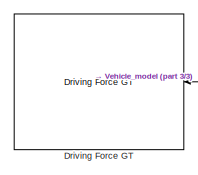
[diagram: root canvas - part 1/3, top center region]
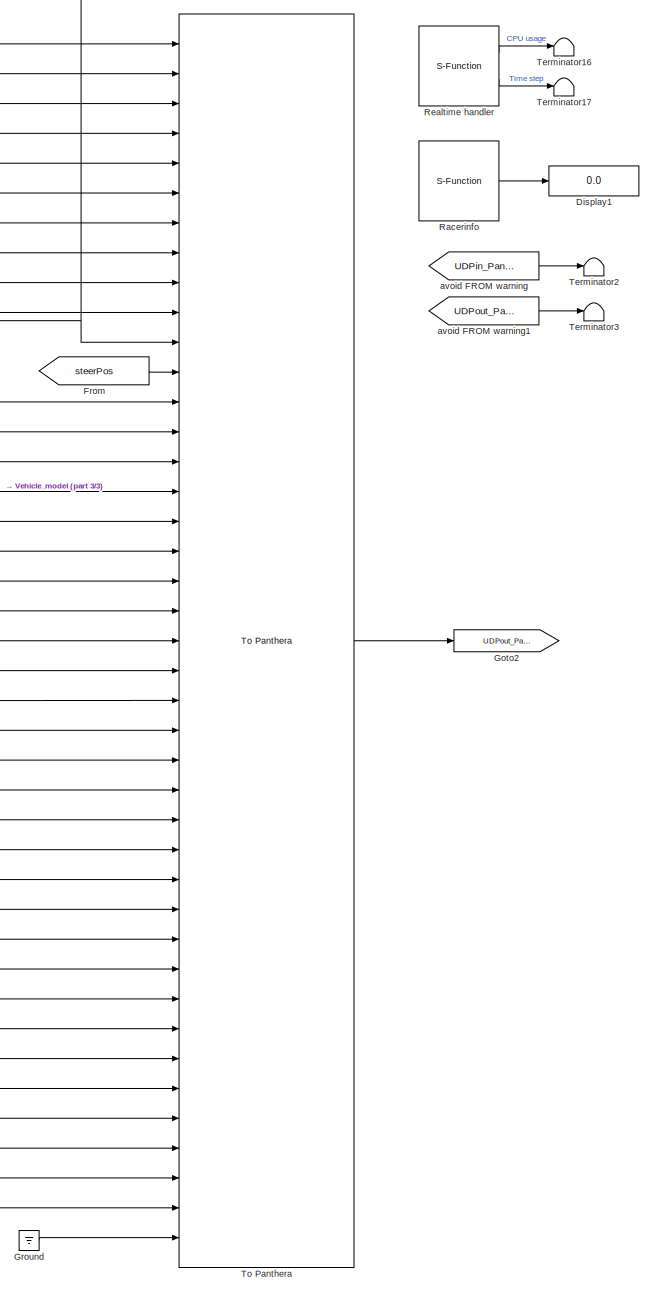
[diagram: root canvas - part 2/3, right side, full height]
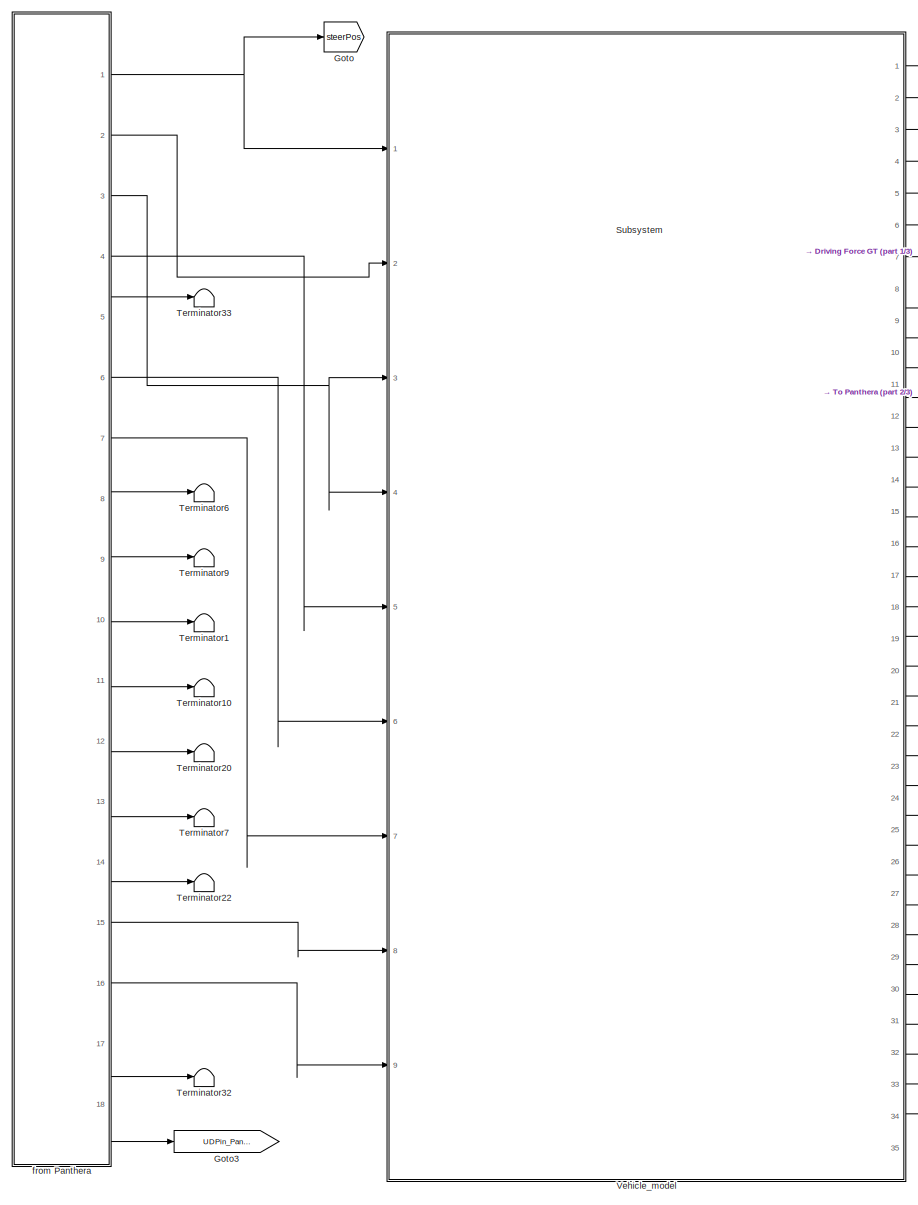
[diagram: root canvas - part 3/3, left side, full height]
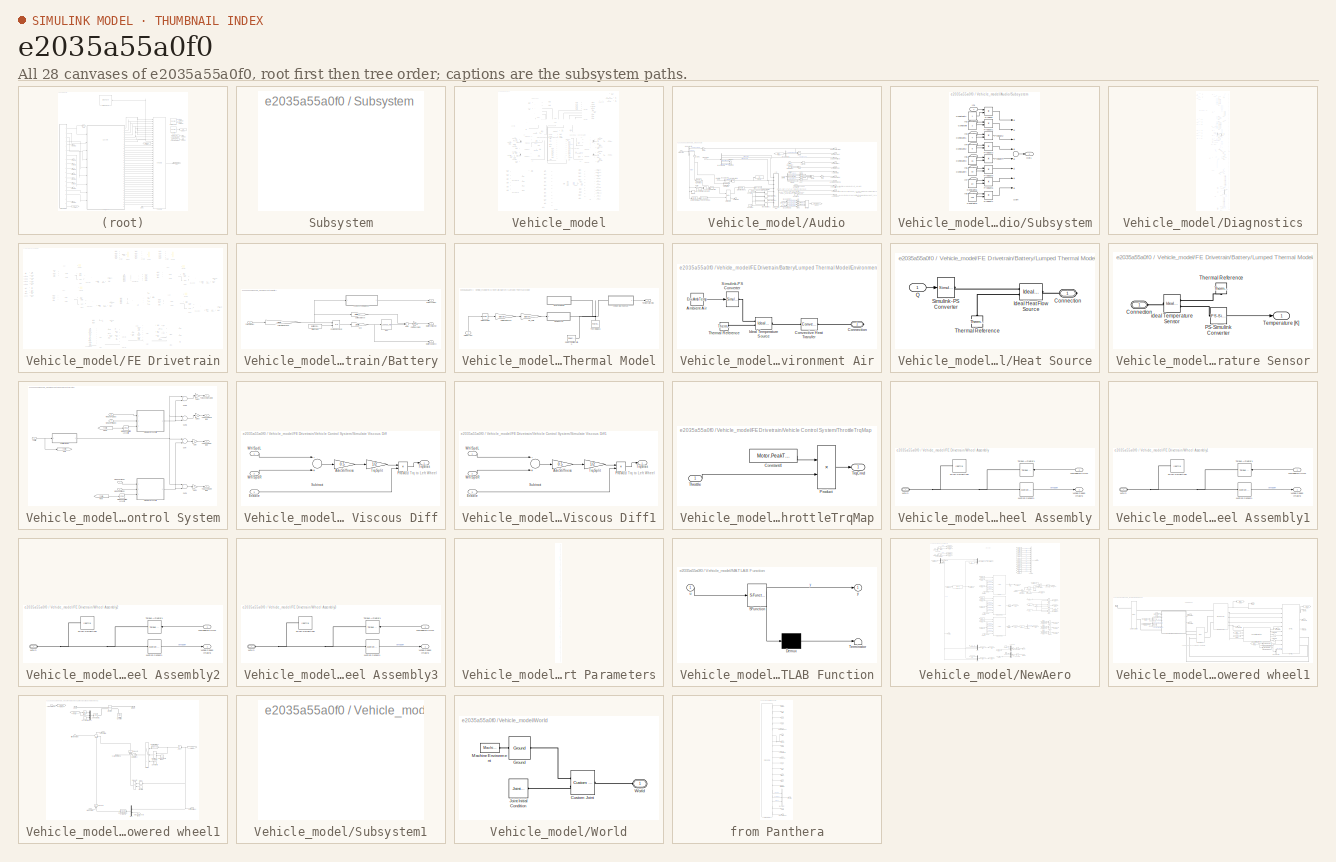
[diagram: thumbnail index - all 28 canvases of the model, root first then tree order]
MODEL slx_e2035a55a0f0
KIND model
CONFIG AbsTol = auto
CONFIG FixedStep = 0.001
CONFIG InitFcn = %init_dyn_platform\nFEParameters
CONFIG MaxStep = auto
CONFIG MinStep = auto
CONFIG RelTol = 1e-3
CONFIG SampleTimeConstraint = Unconstrained
CONFIG Solver = ode1
CONFIG SolverMode = Auto
CONFIG SolverName = ode1
CONFIG StartFcn = tic
CONFIG StartTime = 0.0
CONFIG StopFcn = toc
CONFIG StopTime = inf
BLOCK [Display] Display1
  Decimation = 1
  Ports = [1]
BLOCK [Reference] Driving Force GT  REF=ControllerLib/Driving Force GT
  Commented = on
  Ports = [1, 3]
  SourceBlock = ControllerLib/Driving Force GT
  SourceType = SubSystem
BLOCK [From] From
  GotoTag = steerPos
BLOCK [Goto] Goto
  GotoTag = steerPos
BLOCK [Goto] Goto2
  GotoTag = UDPout_Panthera
BLOCK [Goto] Goto3
  GotoTag = UDPin_Panthera
BLOCK [Ground] Ground
BLOCK [S-Function] Racerinfo
  FunctionName = racerinfo
  Parameters = 3
  Ports = [0, 1]
  Priority = 5
BLOCK [S-Function] Realtime handler
  FunctionName = throttler
  Parameters = 1
  Ports = [0, 2]
BLOCK [SubSystem] Subsystem
  Ports = []
  RequestExecContextInheritance = off
BLOCK [Terminator] Terminator1
BLOCK [Terminator] Terminator10
BLOCK [Terminator] Terminator16
BLOCK [Terminator] Terminator17
BLOCK [Terminator] Terminator2
BLOCK [Terminator] Terminator20
BLOCK [Terminator] Terminator22
BLOCK [Terminator] Terminator3
BLOCK [Terminator] Terminator32
BLOCK [Terminator] Terminator33
BLOCK [Terminator] Terminator6
BLOCK [Terminator] Terminator7
BLOCK [Terminator] Terminator9
BLOCK [Reference] To Panthera  REF=ephysenetlib/Output blocks/To Panthera
  Ports = [41, 1]
  SourceBlock = ephysenetlib/Output blocks/To Panthera
  SourceType = To Racer Pro
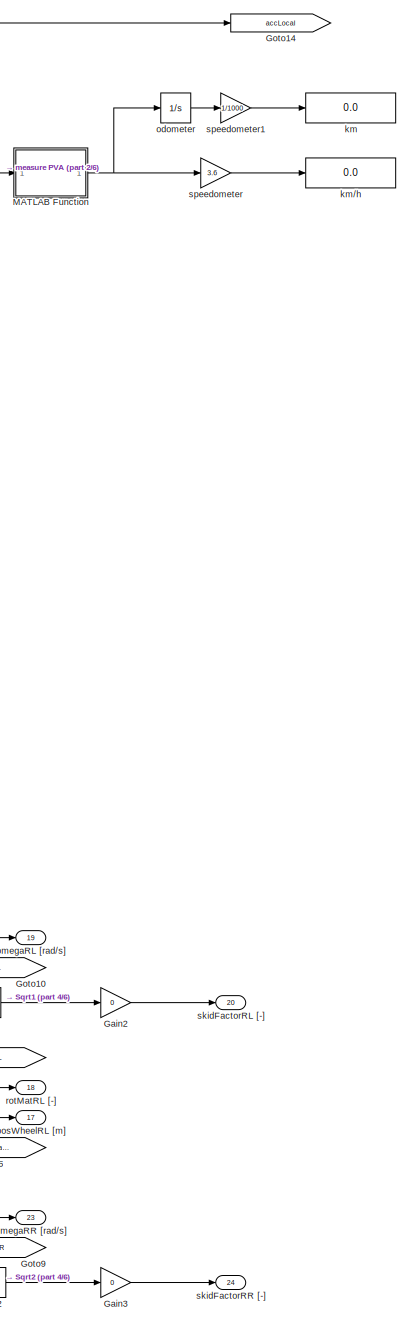
[diagram: Vehicle_model - part 1/6, top right region]
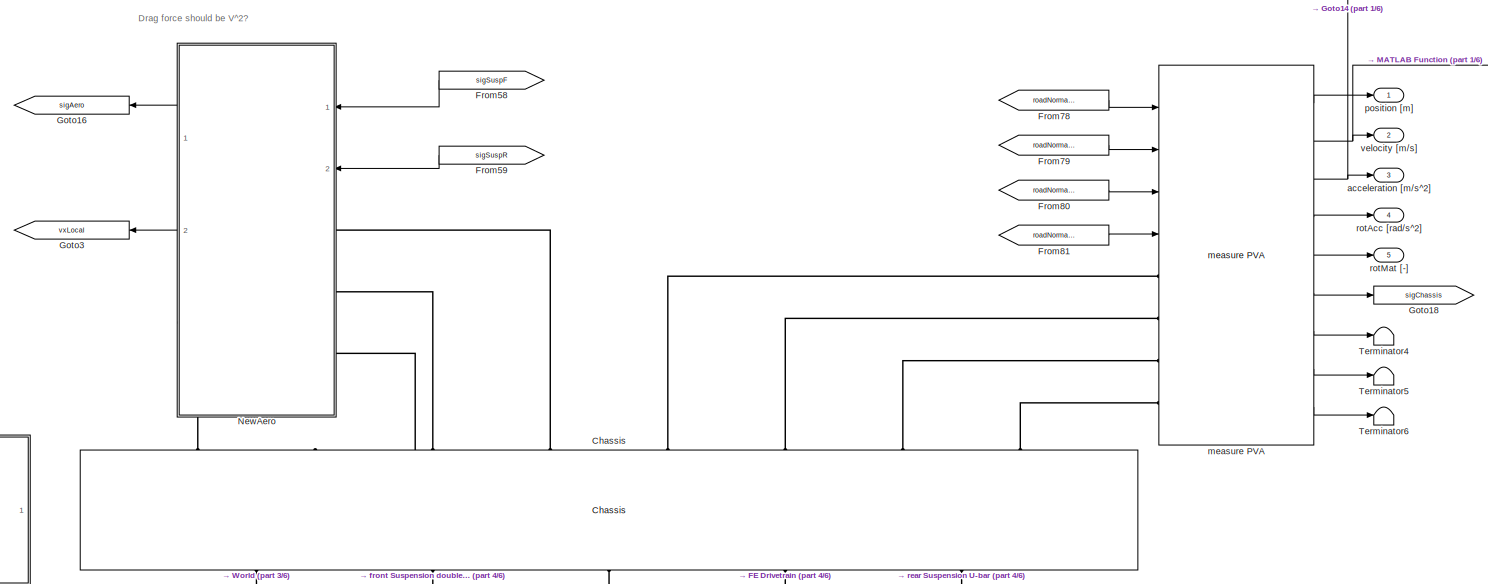
[diagram: Vehicle_model - part 2/6, top center region]
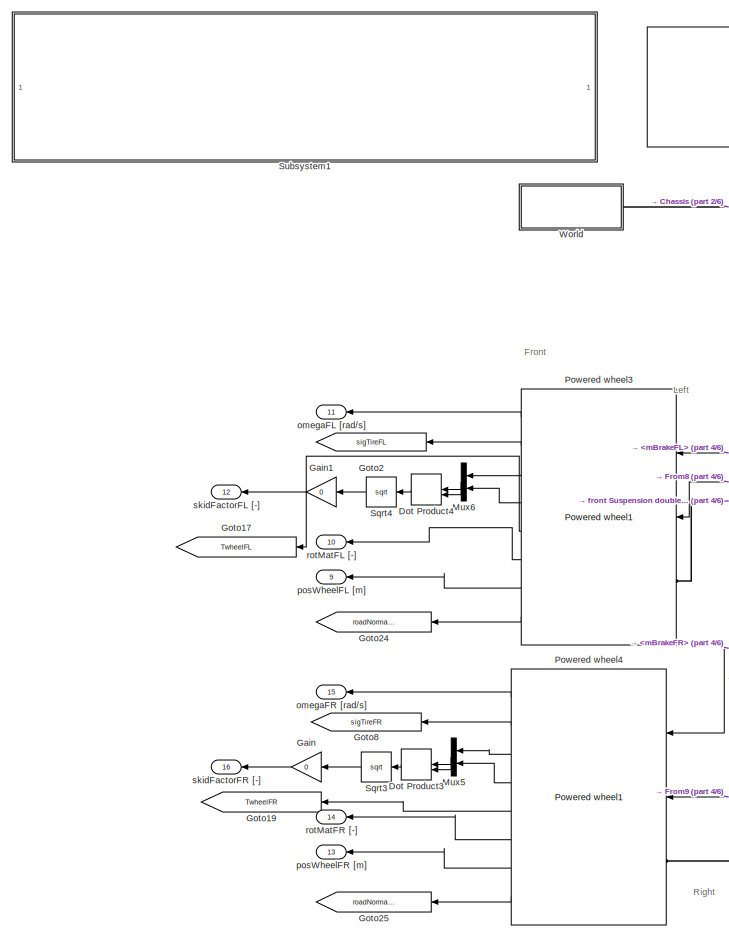
[diagram: Vehicle_model - part 3/6, middle left region]
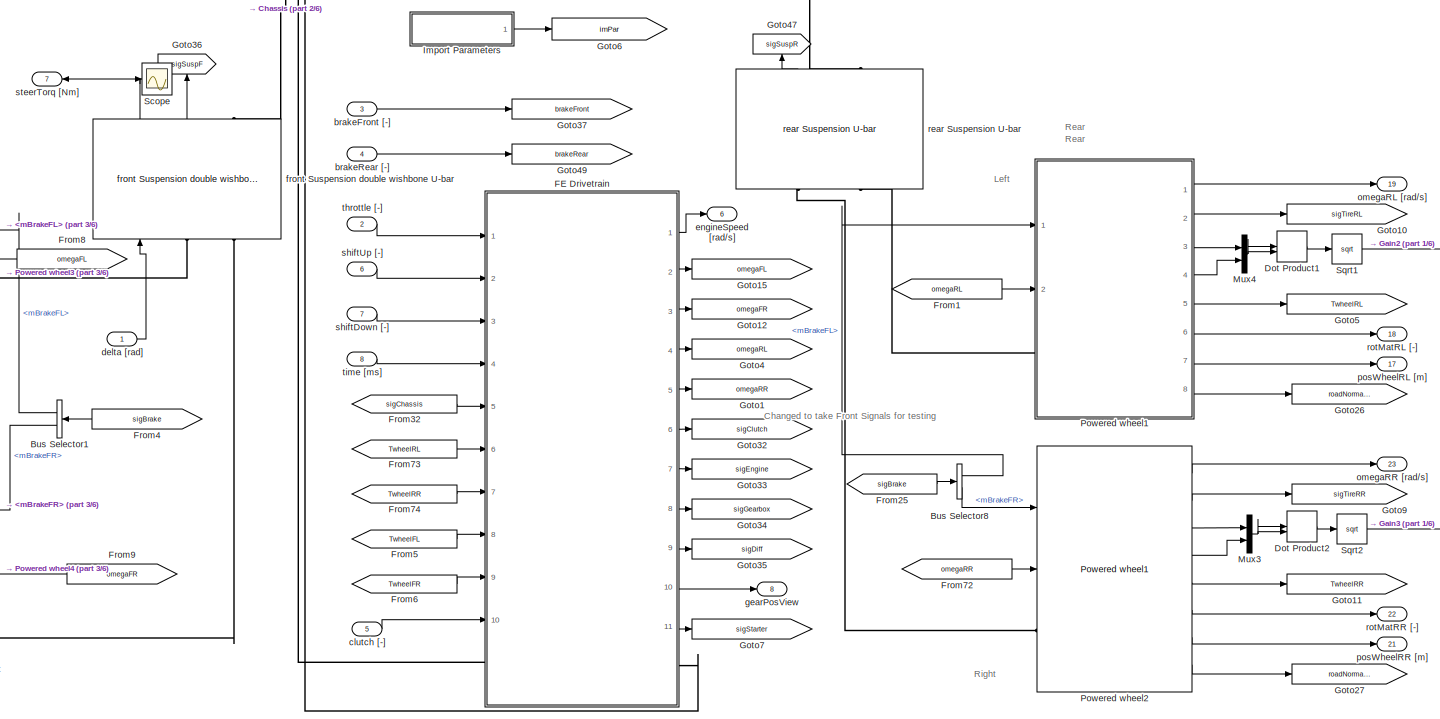
[diagram: Vehicle_model - part 4/6, central region]
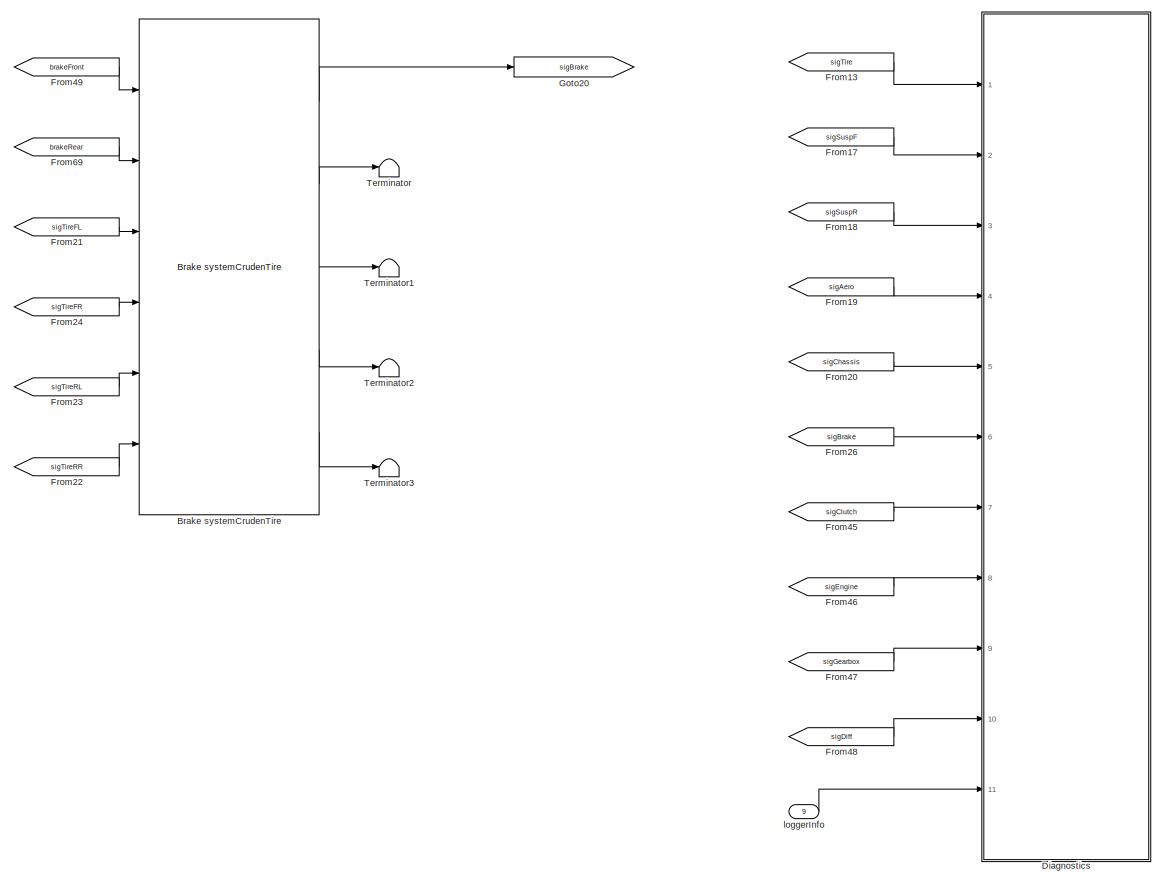
[diagram: Vehicle_model - part 5/6, bottom left region]
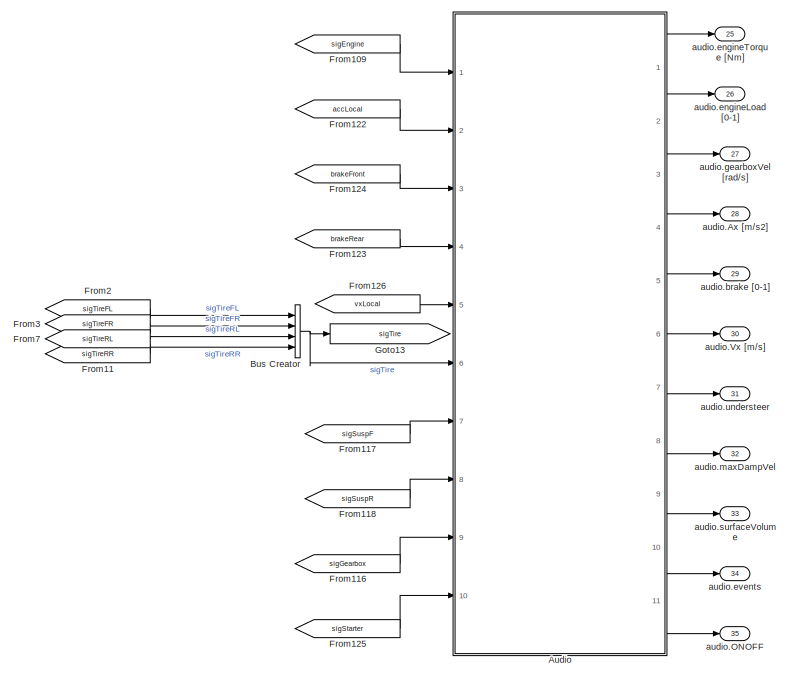
[diagram: Vehicle_model - part 6/6, bottom right region]
BLOCK [SubSystem] Vehicle_model
  Ports = [9, 35]
  RequestExecContextInheritance = off
BLOCK [SubSystem] Vehicle_model/Audio
  Ports = [10, 11]
  RequestExecContextInheritance = off
BLOCK [Abs] Vehicle_model/Audio/Abs
  SaturateOnIntegerOverflow = off
BLOCK [Abs] Vehicle_model/Audio/Abs1
  SaturateOnIntegerOverflow = off
BLOCK [Abs] Vehicle_model/Audio/Abs2
  SaturateOnIntegerOverflow = off
BLOCK [Abs] Vehicle_model/Audio/Abs3
  SaturateOnIntegerOverflow = off
BLOCK [Abs] Vehicle_model/Audio/Abs4
  SaturateOnIntegerOverflow = off
BLOCK [Abs] Vehicle_model/Audio/Abs5
  SaturateOnIntegerOverflow = off
BLOCK [Abs] Vehicle_model/Audio/Abs6
  SaturateOnIntegerOverflow = off
BLOCK [Abs] Vehicle_model/Audio/Abs7
  SaturateOnIntegerOverflow = off
BLOCK [Outport] Vehicle_model/Audio/Audio.Ax [m//s2]
  IconDisplay = Port number
  Port = 4
BLOCK [Outport] Vehicle_model/Audio/Audio.Brake [0-1]
  IconDisplay = Port number
  Port = 5
BLOCK [Outport] Vehicle_model/Audio/Audio.Events
  IconDisplay = Port number
  Port = 10
BLOCK [Outport] Vehicle_model/Audio/Audio.MaxDampVel
  IconDisplay = Port number
  Port = 8
BLOCK [Outport] Vehicle_model/Audio/Audio.ONOFF
  IconDisplay = Port number
  Port = 11
BLOCK [Outport] Vehicle_model/Audio/Audio.SurfaceVolume
  IconDisplay = Port number
  Port = 9
BLOCK [Outport] Vehicle_model/Audio/Audio.Understeer
  IconDisplay = Port number
  Port = 7
BLOCK [Outport] Vehicle_model/Audio/Audio.Vx [m//s]
  IconDisplay = Port number
  Port = 6
BLOCK [Inport] Vehicle_model/Audio/Ax [m//s]
  IconDisplay = Port number
  Port = 2
BLOCK [BusSelector] Vehicle_model/Audio/Bus Selector
  OutputSignals = engineTorqOut,engineN,throttle
  Ports = [1, 3]
BLOCK [BusSelector] Vehicle_model/Audio/Bus Selector1
  OutputSignals = engineMaxTorq
  Ports = [1, 1]
BLOCK [BusSelector] Vehicle_model/Audio/Bus Selector17
  OutputSignals = sigSprDamperL.dampVelFL,sigSprDamperR.dampVelFR
  Ports = [1, 2]
BLOCK [BusSelector] Vehicle_model/Audio/Bus Selector18
  OutputSignals = sigSprDamperL.dampVelRL,sigSprDamperR.dampVelRR
  Ports = [1, 2]
BLOCK [BusSelector] Vehicle_model/Audio/Bus Selector2
  OutputSignals = startButton
  Ports = [1, 1]
BLOCK [BusSelector] Vehicle_model/Audio/Bus Selector3
  OutputSignals = gearboxVel,trigUpShift,trigDownShift,trigUpShiftNoDelay,trigDownShiftNoDelay
  Ports = [1, 5]
BLOCK [BusSelector] Vehicle_model/Audio/Bus Selector4
  OutputSignals = sigTireFL.alpha,sigTireFR.alpha,sigTireRL.alpha,sigTireRR.alpha
  Ports = [1, 4]
BLOCK [Reference] Vehicle_model/Audio/Compare To Constant  REF=simulink/Logic and Bit
Operations/Compare
To Constant
  OutDataTypeStr = uint8
  Ports = [1, 1]
  SourceBlock = simulink/Logic and Bit\nOperations/Compare\nTo Constant
  SourceType = Compare To Constant
  ZeroCross = on
  const = 1500.0
  relop = <=
BLOCK [Reference] Vehicle_model/Audio/Compare To Constant1  REF=simulink/Logic and Bit
Operations/Compare
To Constant
  OutDataTypeStr = uint8
  Ports = [1, 1]
  SourceBlock = simulink/Logic and Bit\nOperations/Compare\nTo Constant
  SourceType = Compare To Constant
  ZeroCross = on
  const = 5000.0
  relop = >=
BLOCK [Constant] Vehicle_model/Audio/Constant
  Value = 0
BLOCK [Constant] Vehicle_model/Audio/Constant1
BLOCK [Constant] Vehicle_model/Audio/Constant2
  Value = 0
BLOCK [Constant] Vehicle_model/Audio/Constant3
  Value = -0.1
BLOCK [Constant] Vehicle_model/Audio/Constant5
  Value = zeros(10,1)
BLOCK [DataTypeConversion] Vehicle_model/Audio/Data Type Conversion1
  OutDataTypeStr = double
  RndMeth = Floor
  SaturateOnIntegerOverflow = off
BLOCK [DataTypeConversion] Vehicle_model/Audio/Data Type Conversion5
  OutDataTypeStr = boolean
  RndMeth = Floor
  SaturateOnIntegerOverflow = off
BLOCK [Reference] Vehicle_model/Audio/Detect Increase  REF=simulink/Logic and Bit
Operations/Detect
Increase
  InputProcessing = Inherited
  OutDataTypeStr = uint8
  Ports = [1, 1]
  SourceBlock = simulink/Logic and Bit\nOperations/Detect\nIncrease
  SourceType = Detect Increase
  vinit = 0.0
BLOCK [Reference] Vehicle_model/Audio/Detect Increase1  REF=simulink/Logic and Bit
Operations/Detect
Increase
  InputProcessing = Inherited
  OutDataTypeStr = uint8
  Ports = [1, 1]
  SourceBlock = simulink/Logic and Bit\nOperations/Detect\nIncrease
  SourceType = Detect Increase
  vinit = 0.0
BLOCK [Display] Vehicle_model/Audio/Display
  Decimation = 1
  Ports = [1]
BLOCK [Product] Vehicle_model/Audio/Divide
  InputSameDT = off
  Inputs = */
  OutDataTypeStr = Inherit: Inherit via internal rule
  Ports = [2, 1]
  RndMeth = Floor
  SaturateOnIntegerOverflow = off
BLOCK [Outport] Vehicle_model/Audio/EngineLoad [-]
  IconDisplay = Port number
  Port = 2
BLOCK [From] Vehicle_model/Audio/From1
  CloseFcn = tagdialog Close
  GotoTag = imPar
  TagVisibility = global
BLOCK [From] Vehicle_model/Audio/From99
  CloseFcn = tagdialog Close
  GotoTag = maxDampVel
BLOCK [Gain] Vehicle_model/Audio/Gain
  Gain = 0.5
  OutDataTypeStr = Inherit: Inherit via internal rule
  ParamDataTypeStr = Inherit: Inherit via internal rule
  SaturateOnIntegerOverflow = off
BLOCK [Gain] Vehicle_model/Audio/Gain1
  Gain = 0
  OutDataTypeStr = Inherit: Inherit via internal rule
  ParamDataTypeStr = Inherit: Inherit via internal rule
  SaturateOnIntegerOverflow = off
BLOCK [Gain] Vehicle_model/Audio/Gain2
  Gain = 0
  OutDataTypeStr = Inherit: Inherit via internal rule
  ParamDataTypeStr = Inherit: Inherit via internal rule
  SaturateOnIntegerOverflow = off
BLOCK [Outport] Vehicle_model/Audio/GearboxVel [rad//s]
  IconDisplay = Port number
  Port = 3
BLOCK [Goto] Vehicle_model/Audio/Goto30
  GotoTag = maxDampVel
BLOCK [Logic] Vehicle_model/Audio/Logical Operator
  AllPortsSameDT = off
  OutDataTypeStr = boolean
  Ports = [2, 1]
BLOCK [Logic] Vehicle_model/Audio/Logical Operator1
  AllPortsSameDT = off
  OutDataTypeStr = boolean
  Ports = [2, 1]
BLOCK [ManualSwitch] Vehicle_model/Audio/Manual Switch
BLOCK [ManualSwitch] Vehicle_model/Audio/Manual Switch1
BLOCK [ManualSwitch] Vehicle_model/Audio/Manual Switch2
BLOCK [ManualSwitch] Vehicle_model/Audio/Manual Switch3
BLOCK [Memory] Vehicle_model/Audio/Memory
  InheritSampleTime = on
  LinearizeAsDelay = on
BLOCK [MinMax] Vehicle_model/Audio/MinMax
  Function = max
  InputSameDT = off
  Inputs = 4
  Ports = [4, 1]
  SaturateOnIntegerOverflow = off
BLOCK [RelationalOperator] Vehicle_model/Audio/Relational Operator
  InputSameDT = off
  Operator = <
  OutDataTypeStr = boolean
  Ports = [2, 1]
BLOCK [Reference] Vehicle_model/Audio/S-R Flip-Flop  REF=simulink_extras/Flip Flops/S-R
Flip-Flop
  Ports = [2, 2]
  SourceBlock = simulink_extras/Flip Flops/S-R\nFlip-Flop
  SourceType = SRFlipFlop
  initial_condition = 0
BLOCK [Selector] Vehicle_model/Audio/Selector
  Indices = [1]
  InputPortWidth = 3
  Ports = [1, 1]
BLOCK [Inport] Vehicle_model/Audio/SigEngine
  IconDisplay = Port number
BLOCK [Inport] Vehicle_model/Audio/SigStarter
  IconDisplay = Port number
  Port = 10
BLOCK [Inport] Vehicle_model/Audio/SigSuspF
  IconDisplay = Port number
  Port = 7
BLOCK [Inport] Vehicle_model/Audio/SigSuspR
  IconDisplay = Port number
  Port = 8
BLOCK [SubSystem] Vehicle_model/Audio/Subsystem
  Ports = [8, 1]
  RequestExecContextInheritance = off
BLOCK [Constant] Vehicle_model/Audio/Subsystem/Constant
  Value = 2
BLOCK [Constant] Vehicle_model/Audio/Subsystem/Constant1
  Value = 4
BLOCK [Constant] Vehicle_model/Audio/Subsystem/Constant2
  Value = 8
BLOCK [Constant] Vehicle_model/Audio/Subsystem/Constant3
  Value = 16
BLOCK [Constant] Vehicle_model/Audio/Subsystem/Constant4
  Value = 32
BLOCK [Constant] Vehicle_model/Audio/Subsystem/Constant5
  Value = 64
BLOCK [Constant] Vehicle_model/Audio/Subsystem/Constant6
  Value = 128
BLOCK [Constant] Vehicle_model/Audio/Subsystem/Constant7
BLOCK [Inport] Vehicle_model/Audio/Subsystem/In1
  IconDisplay = Port number
BLOCK [Inport] Vehicle_model/Audio/Subsystem/In2
  IconDisplay = Port number
  Port = 2
BLOCK [Inport] Vehicle_model/Audio/Subsystem/In3
  IconDisplay = Port number
  Port = 3
BLOCK [Inport] Vehicle_model/Audio/Subsystem/In4
  IconDisplay = Port number
  Port = 4
BLOCK [Inport] Vehicle_model/Audio/Subsystem/In5
  IconDisplay = Port number
  Port = 5
BLOCK [Inport] Vehicle_model/Audio/Subsystem/In6
  IconDisplay = Port number
  Port = 6
BLOCK [Inport] Vehicle_model/Audio/Subsystem/In7
  IconDisplay = Port number
  Port = 7
BLOCK [Inport] Vehicle_model/Audio/Subsystem/In8
  IconDisplay = Port number
  Port = 8
BLOCK [Outport] Vehicle_model/Audio/Subsystem/Out1
  IconDisplay = Port number
BLOCK [Product] Vehicle_model/Audio/Subsystem/Product
  InputSameDT = off
  OutDataTypeStr = Inherit: Inherit via internal rule
  Ports = [2, 1]
  SaturateOnIntegerOverflow = off
BLOCK [Product] Vehicle_model/Audio/Subsystem/Product1
  InputSameDT = off
  OutDataTypeStr = Inherit: Inherit via internal rule
  Ports = [2, 1]
  SaturateOnIntegerOverflow = off
BLOCK [Product] Vehicle_model/Audio/Subsystem/Product2
  InputSameDT = off
  OutDataTypeStr = Inherit: Inherit via internal rule
  Ports = [2, 1]
  SaturateOnIntegerOverflow = off
BLOCK [Product] Vehicle_model/Audio/Subsystem/Product3
  InputSameDT = off
  OutDataTypeStr = Inherit: Inherit via internal rule
  Ports = [2, 1]
  SaturateOnIntegerOverflow = off
BLOCK [Product] Vehicle_model/Audio/Subsystem/Product4
  InputSameDT = off
  OutDataTypeStr = Inherit: Inherit via internal rule
  Ports = [2, 1]
  SaturateOnIntegerOverflow = off
BLOCK [Product] Vehicle_model/Audio/Subsystem/Product5
  InputSameDT = off
  OutDataTypeStr = Inherit: Inherit via internal rule
  Ports = [2, 1]
  SaturateOnIntegerOverflow = off
BLOCK [Product] Vehicle_model/Audio/Subsystem/Product6
  InputSameDT = off
  OutDataTypeStr = Inherit: Inherit via internal rule
  Ports = [2, 1]
  SaturateOnIntegerOverflow = off
BLOCK [Product] Vehicle_model/Audio/Subsystem/Product7
  InputSameDT = off
  OutDataTypeStr = Inherit: Inherit via internal rule
  Ports = [2, 1]
  SaturateOnIntegerOverflow = off
BLOCK [Sum] Vehicle_model/Audio/Subsystem/Sum
  InputSameDT = off
  Inputs = ++++++++
  OutDataTypeStr = Inherit: Inherit via internal rule
  Ports = [8, 1]
  SaturateOnIntegerOverflow = off
BLOCK [Sum] Vehicle_model/Audio/Sum
  InputSameDT = off
  OutDataTypeStr = Inherit: Inherit via internal rule
  Ports = [2, 1]
  SaturateOnIntegerOverflow = off
BLOCK [Sum] Vehicle_model/Audio/Sum1
  IconShape = round
  InputSameDT = off
  Inputs = |+-
  OutDataTypeStr = Inherit: Inherit via internal rule
  Ports = [2, 1]
  SaturateOnIntegerOverflow = off
BLOCK [Sum] Vehicle_model/Audio/Sum3
  InputSameDT = off
  Inputs = ++--
  OutDataTypeStr = Inherit: Inherit via internal rule
  Ports = [4, 1]
  SaturateOnIntegerOverflow = off
BLOCK [Terminator] Vehicle_model/Audio/Terminator
BLOCK [Terminator] Vehicle_model/Audio/Terminator1
BLOCK [Terminator] Vehicle_model/Audio/Terminator2
BLOCK [Inport] Vehicle_model/Audio/Vx [m//s]
  IconDisplay = Port number
  Port = 5
BLOCK [Inport] Vehicle_model/Audio/brakeFront
  IconDisplay = Port number
  Port = 3
BLOCK [Inport] Vehicle_model/Audio/brakeRear
  IconDisplay = Port number
  Port = 4
BLOCK [Outport] Vehicle_model/Audio/engineTorque [Nm]
  IconDisplay = Port number
BLOCK [Inport] Vehicle_model/Audio/sigGearbox
  IconDisplay = Port number
  Port = 9
BLOCK [Inport] Vehicle_model/Audio/sigTire
  IconDisplay = Port number
  Port = 6
BLOCK [Reference] Vehicle_model/Brake systemCrudenTire  REF=vehicleLib/Brake system/Total brake system/Brake systemCrudenTire
  Ports = [6, 5]
  SourceBlock = vehicleLib/Brake system/Total brake system/Brake systemCrudenTire
  SourceType = Brake system
BLOCK [BusCreator] Vehicle_model/Bus Creator
  DisplayOption = bar
  Ports = [4, 1]
BLOCK [BusSelector] Vehicle_model/Bus Selector1
  OutputSignals = mBrakeFL,mBrakeFR
  Ports = [1, 2]
BLOCK [BusSelector] Vehicle_model/Bus Selector8
  OutputSignals = mBrakeFL,mBrakeFR
  Ports = [1, 2]
BLOCK [Reference] Vehicle_model/Chassis  REF=vehicleLib/Chassis/Chassis
  Ports = [0, 0, 0, 0, 0, 8, 5]
  SourceBlock = vehicleLib/Chassis/Chassis
  SourceType = Chassis
  axleFz = 0.338
  axleRz = 0.3535
  ballastPos = [0.0 0.0 0.3085]
  cg = [0.06 0.0 0.3085]
  cop = [0.0 0.0 0.0]
  driverPos = [0.0 0.0 0.3085]
  inertiaChassis = [150 0 0; 0 250 0; 0 0 300]
  massChassis = Veh.Mass
  plate0 = [0 0 0]
  plate1 = [0 0 0]
  plate2 = [0 0 0]
  plate3 = [0 0 0]
  plate4 = [0 0 0]
  plate5 = [0 0 0]
  plate6 = [0 0 0]
  plate7 = [0 0 0]
  posDiff = [-1.16 0.0 0.3085]
  posEngine = [0.0 0.0 0.3085]
  posFuelTank = [0.0 0.0 0.3085]
  sen = [0.0 0.0 0.3085]
  suspFx = 0.86
  suspRx = -0.765
BLOCK [SubSystem] Vehicle_model/Diagnostics
  Commented = on
  Ports = [11]
  RequestExecContextInheritance = off
BLOCK [BusCreator] Vehicle_model/Diagnostics/Bus Creator2
  DisplayOption = bar
  Inputs = 2
  Ports = [2, 1]
BLOCK [BusSelector] Vehicle_model/Diagnostics/Bus Selector
  OutputSignals = distance,lapCount,sectorCount
  Ports = [1, 3]
BLOCK [BusSelector] Vehicle_model/Diagnostics/Bus Selector1
  OutputSignals = sigTireFL.camberroad,sigTireFR.camberroad,sigTireRL.camberroad,sigTireRR.camberroad
  Ports = [1, 4]
BLOCK [BusSelector] Vehicle_model/Diagnostics/Bus Selector13
  OutputSignals = sigSuspF.sigSteer
  Ports = [1, 1]
BLOCK [BusSelector] Vehicle_model/Diagnostics/Bus Selector2
  OutputSignals = engineN
  Ports = [1, 1]
BLOCK [BusSelector] Vehicle_model/Diagnostics/Bus Selector23
  OutputSignals = Cx,Czf,Czr,balF,RHF,RHR
  Ports = [1, 6]
BLOCK [BusSelector] Vehicle_model/Diagnostics/Bus Selector24
  OutputSignals = sigSuspF.sigSprDamperL.dispBump,sigSuspF.sigSprDamperR.dispBump,sigSuspR.sigSprDamperL.dispBump,sigSuspR.sigSprDamperR.dispBump,sigSuspF.sigSprDamperL.dampVelFL,sigSuspF.sigSprDamperR.dampVelFR,sigSuspR.sigSprDamperL.dampVelRL,sigSuspR.sigSprDamperR.dampVelRR,sigSuspF.sigSprDamperL.dampForceFL,sigSuspF.sigSprDamperR.dampForceFR,sigSuspR.sigSprDamperL.dampForceRL,sigSuspR.sigSprDamperR.dampForceRR,...<+339ch>
  Ports = [1, 24]
BLOCK [BusSelector] Vehicle_model/Diagnostics/Bus Selector25
  OutputSignals = brakePressFR,brakePressRR,mBrakeFL,mBrakeFR,mBrakeRL,mBrakeRR
  Ports = [1, 6]
BLOCK [BusSelector] Vehicle_model/Diagnostics/Bus Selector26
  OutputSignals = engineN,throttle,throttleMap
  Ports = [1, 3]
BLOCK [BusSelector] Vehicle_model/Diagnostics/Bus Selector27
  OutputSignals = localVelNoRollPitch,localAccNoRollPitch,CGz,rollAngle,yawRate
  Ports = [1, 5]
BLOCK [BusSelector] Vehicle_model/Diagnostics/Bus Selector28
  OutputSignals = steerAngle,steerTorque
  Ports = [1, 2]
BLOCK [BusSelector] Vehicle_model/Diagnostics/Bus Selector29
  OutputSignals = TdriveL,TdriveR
  Ports = [1, 2]
BLOCK [BusSelector] Vehicle_model/Diagnostics/Bus Selector3
  OutputSignals = gearPosView
  Ports = [1, 1]
BLOCK [BusSelector] Vehicle_model/Diagnostics/Bus Selector30
  OutputSignals = clutchPedalDispl,clutchDispl
  Ports = [1, 2]
BLOCK [BusSelector] Vehicle_model/Diagnostics/Bus Selector31
  OutputSignals = sigTireFL.rho,sigTireFR.rho,sigTireRL.rho,sigTireRR.rho,sigTireFL.vxtire,sigTireFR.vxtire,sigTireRL.vxtire,sigTireRR.vxtire,sigTireFL.kappa,sigTireFR.kappa,sigTireRL.kappa,sigTireRR.kappa,sigTireFL.alpha,sigTireFR.alpha,sigTireRL.alpha,sigTireRR.alpha,sigTireFL.FxC,sigTireFR.FxC,sigTireRL.FxC,sigTireRR.FxC,sigTireFL.FyC,sigTireFR.FyC,sigTireRL.FyC,sigTireRR.FyC,sigTireFL.FzC,sigTireFR.FzC,sigTireR...<+19ch>
  Ports = [1, 28]
BLOCK [BusSelector] Vehicle_model/Diagnostics/Bus Selector4
  OutputSignals = localVel,localAccNoRollPitch,posCG,odo
  Ports = [1, 4]
BLOCK [BusSelector] Vehicle_model/Diagnostics/Bus Selector5
  OutputSignals = throttle
  Ports = [1, 1]
BLOCK [BusSelector] Vehicle_model/Diagnostics/Bus Selector6
  OutputSignals = brakeFront
  Ports = [1, 1]
BLOCK [BusSelector] Vehicle_model/Diagnostics/Bus Selector7
  OutputSignals = clutch
  Ports = [1, 1]
BLOCK [Constant] Vehicle_model/Diagnostics/Constant
  Value = 0
BLOCK [Constant] Vehicle_model/Diagnostics/Constant1
  Value = 0
BLOCK [Constant] Vehicle_model/Diagnostics/Constant10
  Value = 5
BLOCK [Constant] Vehicle_model/Diagnostics/Constant11
  Value = 5
BLOCK [Constant] Vehicle_model/Diagnostics/Constant12
  Value = 6
BLOCK [Constant] Vehicle_model/Diagnostics/Constant13
  Value = 6
BLOCK [Constant] Vehicle_model/Diagnostics/Constant14
  Value = 7
BLOCK [Constant] Vehicle_model/Diagnostics/Constant15
  Value = 7
BLOCK [Constant] Vehicle_model/Diagnostics/Constant16
  Value = 0
BLOCK [Constant] Vehicle_model/Diagnostics/Constant17
  Value = 0
BLOCK [Constant] Vehicle_model/Diagnostics/Constant18
  Value = 5
BLOCK [Constant] Vehicle_model/Diagnostics/Constant19
  Value = 5
BLOCK [Constant] Vehicle_model/Diagnostics/Constant2
BLOCK [Constant] Vehicle_model/Diagnostics/Constant20
  Value = 6
BLOCK [Constant] Vehicle_model/Diagnostics/Constant21
BLOCK [Constant] Vehicle_model/Diagnostics/Constant22
BLOCK [Constant] Vehicle_model/Diagnostics/Constant23
  Value = 2
BLOCK [Constant] Vehicle_model/Diagnostics/Constant24
BLOCK [Constant] Vehicle_model/Diagnostics/Constant25
BLOCK [Constant] Vehicle_model/Diagnostics/Constant26
  Value = 2
BLOCK [Constant] Vehicle_model/Diagnostics/Constant27
  Value = 2
BLOCK [Constant] Vehicle_model/Diagnostics/Constant28
  Value = 3
BLOCK [Constant] Vehicle_model/Diagnostics/Constant29
  Value = 3
BLOCK [Constant] Vehicle_model/Diagnostics/Constant3
BLOCK [Constant] Vehicle_model/Diagnostics/Constant30
  Value = 4
BLOCK [Constant] Vehicle_model/Diagnostics/Constant31
  Value = 4
BLOCK [Constant] Vehicle_model/Diagnostics/Constant32
  Value = 0
BLOCK [Constant] Vehicle_model/Diagnostics/Constant33
  Value = 0
BLOCK [Constant] Vehicle_model/Diagnostics/Constant34
BLOCK [Constant] Vehicle_model/Diagnostics/Constant35
  Value = 2
BLOCK [Constant] Vehicle_model/Diagnostics/Constant36
  Value = 3
BLOCK [Constant] Vehicle_model/Diagnostics/Constant37
  Value = 4
BLOCK [Constant] Vehicle_model/Diagnostics/Constant38
  Value = 5
BLOCK [Constant] Vehicle_model/Diagnostics/Constant39
  Value = 0
BLOCK [Constant] Vehicle_model/Diagnostics/Constant4
  Value = 2
BLOCK [Constant] Vehicle_model/Diagnostics/Constant40
BLOCK [Constant] Vehicle_model/Diagnostics/Constant5
  Value = 2
BLOCK [Constant] Vehicle_model/Diagnostics/Constant6
  Value = 3
BLOCK [Constant] Vehicle_model/Diagnostics/Constant7
  Value = 3
BLOCK [Constant] Vehicle_model/Diagnostics/Constant8
  Value = 4
BLOCK [Constant] Vehicle_model/Diagnostics/Constant9
  Value = 4
BLOCK [Demux] Vehicle_model/Diagnostics/Demux
  DisplayOption = bar
  Outputs = 3
  Ports = [1, 3]
BLOCK [Demux] Vehicle_model/Diagnostics/Demux1
  DisplayOption = bar
  Outputs = 3
  Ports = [1, 3]
BLOCK [Demux] Vehicle_model/Diagnostics/Demux2
  DisplayOption = bar
  Outputs = 3
  Ports = [1, 3]
BLOCK [Demux] Vehicle_model/Diagnostics/Demux3
  DisplayOption = bar
  Outputs = 3
  Ports = [1, 3]
BLOCK [From] Vehicle_model/Diagnostics/From1
  CloseFcn = tagdialog Close
  GotoTag = sigTire
BLOCK [From] Vehicle_model/Diagnostics/From14
  CloseFcn = tagdialog Close
  GotoTag = sigSusp
BLOCK [From] Vehicle_model/Diagnostics/From2
  CloseFcn = tagdialog Close
  GotoTag = sigEngine
BLOCK [From] Vehicle_model/Diagnostics/From21
  CloseFcn = tagdialog Close
  GotoTag = sigAero
BLOCK [From] Vehicle_model/Diagnostics/From23
  CloseFcn = tagdialog Close
  GotoTag = sigSusp
BLOCK [From] Vehicle_model/Diagnostics/From24
  CloseFcn = tagdialog Close
  GotoTag = sigBrake
BLOCK [From] Vehicle_model/Diagnostics/From25
  CloseFcn = tagdialog Close
  GotoTag = sigEngine
BLOCK [From] Vehicle_model/Diagnostics/From26
  CloseFcn = tagdialog Close
  GotoTag = sigChassis
BLOCK [From] Vehicle_model/Diagnostics/From27
  CloseFcn = tagdialog Close
  GotoTag = sigSteer
BLOCK [From] Vehicle_model/Diagnostics/From28
  CloseFcn = tagdialog Close
  GotoTag = sigDiff
BLOCK [From] Vehicle_model/Diagnostics/From29
  CloseFcn = tagdialog Close
  GotoTag = sigClutch
BLOCK [From] Vehicle_model/Diagnostics/From3
  CloseFcn = tagdialog Close
  GotoTag = sigGearbox
BLOCK [From] Vehicle_model/Diagnostics/From30
  CloseFcn = tagdialog Close
  GotoTag = sigTire
BLOCK [From] Vehicle_model/Diagnostics/From4
  CloseFcn = tagdialog Close
  GotoTag = sigChassis
BLOCK [From] Vehicle_model/Diagnostics/From5
  CloseFcn = tagdialog Close
  GotoTag = sigEngine
BLOCK [From] Vehicle_model/Diagnostics/From6
  CloseFcn = tagdialog Close
  GotoTag = sigBrake
BLOCK [From] Vehicle_model/Diagnostics/From7
  CloseFcn = tagdialog Close
  GotoTag = sigClutch
BLOCK [Gain] Vehicle_model/Diagnostics/Gain4
  Gain = 1/9.80665
  OutDataTypeStr = Inherit: Inherit via internal rule
  ParamDataTypeStr = Inherit: Inherit via internal rule
  SaturateOnIntegerOverflow = off
BLOCK [Gain] Vehicle_model/Diagnostics/Gain5
  Gain = 1/9.80665
  OutDataTypeStr = Inherit: Inherit via internal rule
  ParamDataTypeStr = Inherit: Inherit via internal rule
  SaturateOnIntegerOverflow = off
BLOCK [Gain] Vehicle_model/Diagnostics/Gain6
  Gain = 1/9.80665
  OutDataTypeStr = Inherit: Inherit via internal rule
  ParamDataTypeStr = Inherit: Inherit via internal rule
  SaturateOnIntegerOverflow = off
BLOCK [Gain] Vehicle_model/Diagnostics/Gain7
  Gain = 1/9.80665
  OutDataTypeStr = Inherit: Inherit via internal rule
  ParamDataTypeStr = Inherit: Inherit via internal rule
  SaturateOnIntegerOverflow = off
BLOCK [Goto] Vehicle_model/Diagnostics/Goto1
  GotoTag = sigSusp
BLOCK [Goto] Vehicle_model/Diagnostics/Goto11
  GotoTag = sigGearbox
BLOCK [Goto] Vehicle_model/Diagnostics/Goto15
  GotoTag = sigBrake
BLOCK [Goto] Vehicle_model/Diagnostics/Goto2
  GotoTag = sigTire
BLOCK [Goto] Vehicle_model/Diagnostics/Goto3
  GotoTag = sigAero
BLOCK [Goto] Vehicle_model/Diagnostics/Goto4
  GotoTag = sigDiff
BLOCK [Goto] Vehicle_model/Diagnostics/Goto5
  GotoTag = sigClutch
BLOCK [Goto] Vehicle_model/Diagnostics/Goto6
  GotoTag = sigChassis
BLOCK [Goto] Vehicle_model/Diagnostics/Goto7
  GotoTag = sigSteer
BLOCK [Goto] Vehicle_model/Diagnostics/Goto9
  GotoTag = sigEngine
BLOCK [S-Function] Vehicle_model/Diagnostics/Logger
  FunctionName = logger
  Parameters = 1
  Ports = [144]
BLOCK [Gain] Vehicle_model/Diagnostics/Pa to bar2
  Gain = 1e-5
  OutDataTypeStr = Inherit: Inherit via internal rule
  ParamDataTypeStr = Inherit: Inherit via internal rule
  SaturateOnIntegerOverflow = off
BLOCK [Gain] Vehicle_model/Diagnostics/Pa to bar3
  Gain = 1e-5
  OutDataTypeStr = Inherit: Inherit via internal rule
  ParamDataTypeStr = Inherit: Inherit via internal rule
  SaturateOnIntegerOverflow = off
BLOCK [Terminator] Vehicle_model/Diagnostics/Terminator23
BLOCK [Terminator] Vehicle_model/Diagnostics/Terminator24
BLOCK [Terminator] Vehicle_model/Diagnostics/Terminator25
BLOCK [Inport] Vehicle_model/Diagnostics/loggerInfo
  IconDisplay = Port number
  Port = 11
BLOCK [Gain] Vehicle_model/Diagnostics/m to mm10
  Gain = 1000
  OutDataTypeStr = Inherit: Inherit via internal rule
  ParamDataTypeStr = Inherit: Inherit via internal rule
  SaturateOnIntegerOverflow = off
BLOCK [Gain] Vehicle_model/Diagnostics/m to mm11
  Gain = 1000
  OutDataTypeStr = Inherit: Inherit via internal rule
  ParamDataTypeStr = Inherit: Inherit via internal rule
  SaturateOnIntegerOverflow = off
BLOCK [Gain] Vehicle_model/Diagnostics/m to mm12
  Gain = 1000
  OutDataTypeStr = Inherit: Inherit via internal rule
  ParamDataTypeStr = Inherit: Inherit via internal rule
  SaturateOnIntegerOverflow = off
BLOCK [Gain] Vehicle_model/Diagnostics/m to mm13
  Gain = 1000
  OutDataTypeStr = Inherit: Inherit via internal rule
  ParamDataTypeStr = Inherit: Inherit via internal rule
  SaturateOnIntegerOverflow = off
BLOCK [Gain] Vehicle_model/Diagnostics/m to mm14
  Gain = 1000
  OutDataTypeStr = Inherit: Inherit via internal rule
  ParamDataTypeStr = Inherit: Inherit via internal rule
  SaturateOnIntegerOverflow = off
BLOCK [Gain] Vehicle_model/Diagnostics/m to mm15
  Gain = 1000
  OutDataTypeStr = Inherit: Inherit via internal rule
  ParamDataTypeStr = Inherit: Inherit via internal rule
  SaturateOnIntegerOverflow = off
BLOCK [Gain] Vehicle_model/Diagnostics/m to mm16
  Gain = 1000
  OutDataTypeStr = Inherit: Inherit via internal rule
  ParamDataTypeStr = Inherit: Inherit via internal rule
  SaturateOnIntegerOverflow = off
BLOCK [Gain] Vehicle_model/Diagnostics/m to mm17
  Gain = 1000
  OutDataTypeStr = Inherit: Inherit via internal rule
  ParamDataTypeStr = Inherit: Inherit via internal rule
  SaturateOnIntegerOverflow = off
BLOCK [Gain] Vehicle_model/Diagnostics/m to mm18
  Gain = 1000
  OutDataTypeStr = Inherit: Inherit via internal rule
  ParamDataTypeStr = Inherit: Inherit via internal rule
  SaturateOnIntegerOverflow = off
BLOCK [Gain] Vehicle_model/Diagnostics/m to mm19
  Gain = 1000
  OutDataTypeStr = Inherit: Inherit via internal rule
  ParamDataTypeStr = Inherit: Inherit via internal rule
  SaturateOnIntegerOverflow = off
BLOCK [Gain] Vehicle_model/Diagnostics/m to mm9
  Gain = 1000
  OutDataTypeStr = Inherit: Inherit via internal rule
  ParamDataTypeStr = Inherit: Inherit via internal rule
  SaturateOnIntegerOverflow = off
BLOCK [Gain] Vehicle_model/Diagnostics/m//s to km//h5
  Gain = 3.6
  OutDataTypeStr = Inherit: Inherit via internal rule
  ParamDataTypeStr = Inherit: Inherit via internal rule
  SaturateOnIntegerOverflow = off
BLOCK [Gain] Vehicle_model/Diagnostics/m//s to km//h6
  Gain = 3.6
  OutDataTypeStr = Inherit: Inherit via internal rule
  ParamDataTypeStr = Inherit: Inherit via internal rule
  SaturateOnIntegerOverflow = off
BLOCK [Gain] Vehicle_model/Diagnostics/m//s to km//h7
  Gain = 3.6
  OutDataTypeStr = Inherit: Inherit via internal rule
  ParamDataTypeStr = Inherit: Inherit via internal rule
  SaturateOnIntegerOverflow = off
BLOCK [Gain] Vehicle_model/Diagnostics/m//s to km//h8
  Gain = 3.6
  OutDataTypeStr = Inherit: Inherit via internal rule
  ParamDataTypeStr = Inherit: Inherit via internal rule
  SaturateOnIntegerOverflow = off
BLOCK [Gain] Vehicle_model/Diagnostics/m//s to km//h9
  Gain = 3.6
  OutDataTypeStr = Inherit: Inherit via internal rule
  ParamDataTypeStr = Inherit: Inherit via internal rule
  SaturateOnIntegerOverflow = off
BLOCK [Gain] Vehicle_model/Diagnostics/m//s² to g2
  Gain = 1/9.807
  OutDataTypeStr = Inherit: Inherit via internal rule
  ParamDataTypeStr = Inherit: Inherit via internal rule
  SaturateOnIntegerOverflow = off
BLOCK [Gain] Vehicle_model/Diagnostics/m//s² to g3
  Gain = 1/9.807
  OutDataTypeStr = Inherit: Inherit via internal rule
  ParamDataTypeStr = Inherit: Inherit via internal rule
  SaturateOnIntegerOverflow = off
BLOCK [Gain] Vehicle_model/Diagnostics/rad to deg1
  Gain = 180/pi
  OutDataTypeStr = Inherit: Inherit via internal rule
  ParamDataTypeStr = Inherit: Inherit via internal rule
  SaturateOnIntegerOverflow = off
BLOCK [Gain] Vehicle_model/Diagnostics/rad to deg16
  Gain = 180/pi
  OutDataTypeStr = Inherit: Inherit via internal rule
  ParamDataTypeStr = Inherit: Inherit via internal rule
  SaturateOnIntegerOverflow = off
BLOCK [Gain] Vehicle_model/Diagnostics/rad to deg17
  Gain = 180/pi
  OutDataTypeStr = Inherit: Inherit via internal rule
  ParamDataTypeStr = Inherit: Inherit via internal rule
  SaturateOnIntegerOverflow = off
BLOCK [Gain] Vehicle_model/Diagnostics/rad to deg18
  Gain = 180/pi
  OutDataTypeStr = Inherit: Inherit via internal rule
  ParamDataTypeStr = Inherit: Inherit via internal rule
  SaturateOnIntegerOverflow = off
BLOCK [Gain] Vehicle_model/Diagnostics/rad to deg19
  Gain = 180/pi
  OutDataTypeStr = Inherit: Inherit via internal rule
  ParamDataTypeStr = Inherit: Inherit via internal rule
  SaturateOnIntegerOverflow = off
BLOCK [Gain] Vehicle_model/Diagnostics/rad to deg20
  Gain = 180/pi
  OutDataTypeStr = Inherit: Inherit via internal rule
  ParamDataTypeStr = Inherit: Inherit via internal rule
  SaturateOnIntegerOverflow = off
BLOCK [Gain] Vehicle_model/Diagnostics/rad to deg21
  Gain = 180/pi
  OutDataTypeStr = Inherit: Inherit via internal rule
  ParamDataTypeStr = Inherit: Inherit via internal rule
  SaturateOnIntegerOverflow = off
BLOCK [Gain] Vehicle_model/Diagnostics/rad to deg22
  Gain = 180/pi
  OutDataTypeStr = Inherit: Inherit via internal rule
  ParamDataTypeStr = Inherit: Inherit via internal rule
  SaturateOnIntegerOverflow = off
BLOCK [Gain] Vehicle_model/Diagnostics/rad to deg23
  Gain = 180/pi
  OutDataTypeStr = Inherit: Inherit via internal rule
  ParamDataTypeStr = Inherit: Inherit via internal rule
  SaturateOnIntegerOverflow = off
BLOCK [Gain] Vehicle_model/Diagnostics/rad to deg24
  Gain = 180/pi
  OutDataTypeStr = Inherit: Inherit via internal rule
  ParamDataTypeStr = Inherit: Inherit via internal rule
  SaturateOnIntegerOverflow = off
BLOCK [Gain] Vehicle_model/Diagnostics/rad to deg25
  Gain = 180/pi
  OutDataTypeStr = Inherit: Inherit via internal rule
  ParamDataTypeStr = Inherit: Inherit via internal rule
  SaturateOnIntegerOverflow = off
BLOCK [Gain] Vehicle_model/Diagnostics/rad to deg26
  Gain = 180/pi
  OutDataTypeStr = Inherit: Inherit via internal rule
  ParamDataTypeStr = Inherit: Inherit via internal rule
  SaturateOnIntegerOverflow = off
BLOCK [Gain] Vehicle_model/Diagnostics/rad to deg30
  Gain = 180/pi
  OutDataTypeStr = Inherit: Inherit via internal rule
  ParamDataTypeStr = Inherit: Inherit via internal rule
  SaturateOnIntegerOverflow = off
BLOCK [Gain] Vehicle_model/Diagnostics/rad to deg31
  Gain = 180/pi
  OutDataTypeStr = Inherit: Inherit via internal rule
  ParamDataTypeStr = Inherit: Inherit via internal rule
  SaturateOnIntegerOverflow = off
BLOCK [Gain] Vehicle_model/Diagnostics/rad to deg32
  Gain = 180/pi
  OutDataTypeStr = Inherit: Inherit via internal rule
  ParamDataTypeStr = Inherit: Inherit via internal rule
  SaturateOnIntegerOverflow = off
BLOCK [Gain] Vehicle_model/Diagnostics/rad to deg33
  Gain = 180/pi
  OutDataTypeStr = Inherit: Inherit via internal rule
  ParamDataTypeStr = Inherit: Inherit via internal rule
  SaturateOnIntegerOverflow = off
BLOCK [Gain] Vehicle_model/Diagnostics/rad to deg34
  Gain = 180/pi
  OutDataTypeStr = Inherit: Inherit via internal rule
  ParamDataTypeStr = Inherit: Inherit via internal rule
  SaturateOnIntegerOverflow = off
BLOCK [Gain] Vehicle_model/Diagnostics/rad to deg35
  Gain = 180/pi
  OutDataTypeStr = Inherit: Inherit via internal rule
  ParamDataTypeStr = Inherit: Inherit via internal rule
  SaturateOnIntegerOverflow = off
BLOCK [Gain] Vehicle_model/Diagnostics/rad to deg36
  Gain = 180/pi
  OutDataTypeStr = Inherit: Inherit via internal rule
  ParamDataTypeStr = Inherit: Inherit via internal rule
  SaturateOnIntegerOverflow = off
BLOCK [Inport] Vehicle_model/Diagnostics/sigAero
  IconDisplay = Port number
  Port = 4
BLOCK [Inport] Vehicle_model/Diagnostics/sigBrake
  IconDisplay = Port number
  Port = 6
BLOCK [Inport] Vehicle_model/Diagnostics/sigChassis
  IconDisplay = Port number
  Port = 5
BLOCK [Inport] Vehicle_model/Diagnostics/sigClutch
  IconDisplay = Port number
  Port = 7
BLOCK [Inport] Vehicle_model/Diagnostics/sigDiff
  IconDisplay = Port number
  Port = 10
BLOCK [Inport] Vehicle_model/Diagnostics/sigEngine
  IconDisplay = Port number
  Port = 8
BLOCK [Inport] Vehicle_model/Diagnostics/sigGearbox
  IconDisplay = Port number
  Port = 9
BLOCK [Inport] Vehicle_model/Diagnostics/sigSuspF
  IconDisplay = Port number
  Port = 2
BLOCK [Inport] Vehicle_model/Diagnostics/sigSuspR
  IconDisplay = Port number
  Port = 3
BLOCK [Inport] Vehicle_model/Diagnostics/sigTire
  IconDisplay = Port number
BLOCK [Gain] Vehicle_model/Diagnostics/unit to %2
  Gain = 100
  OutDataTypeStr = Inherit: Inherit via internal rule
  ParamDataTypeStr = Inherit: Inherit via internal rule
  SaturateOnIntegerOverflow = off
BLOCK [Gain] Vehicle_model/Diagnostics/unit to %3
  Gain = 100
  OutDataTypeStr = Inherit: Inherit via internal rule
  ParamDataTypeStr = Inherit: Inherit via internal rule
  SaturateOnIntegerOverflow = off
BLOCK [Reference] Vehicle_model/Diagnostics/vectorLength  REF=vehicleLib/Utilities/vectorLength
  Ports = [1, 1]
  SourceBlock = vehicleLib/Utilities/vectorLength
  SourceType = SubSystem
BLOCK [DotProduct] Vehicle_model/Dot Product1
  OutDataTypeStr = Inherit: Inherit via internal rule
BLOCK [DotProduct] Vehicle_model/Dot Product2
  OutDataTypeStr = Inherit: Inherit via internal rule
BLOCK [DotProduct] Vehicle_model/Dot Product3
  OutDataTypeStr = Inherit: Inherit via internal rule
BLOCK [DotProduct] Vehicle_model/Dot Product4
  OutDataTypeStr = Inherit: Inherit via internal rule
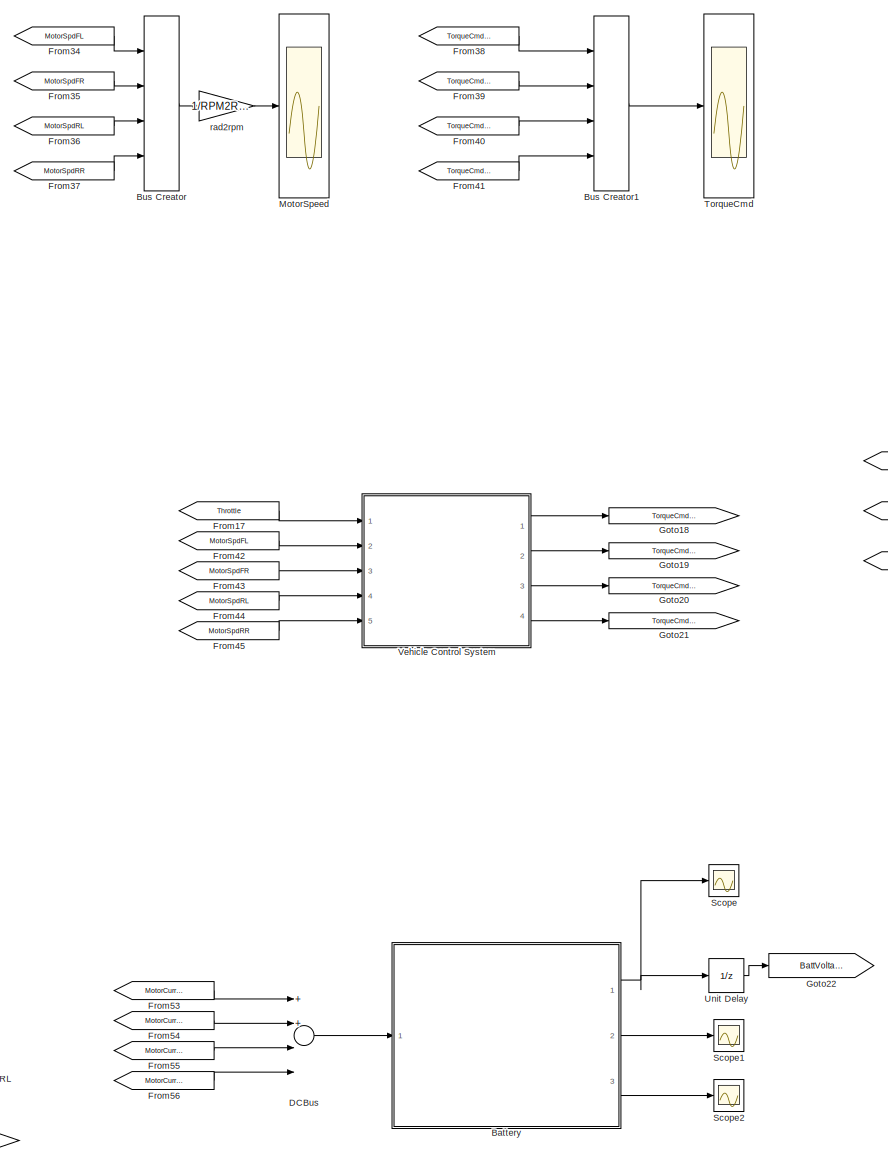
[diagram: Vehicle_model/FE Drivetrain - part 1/8, top center region]
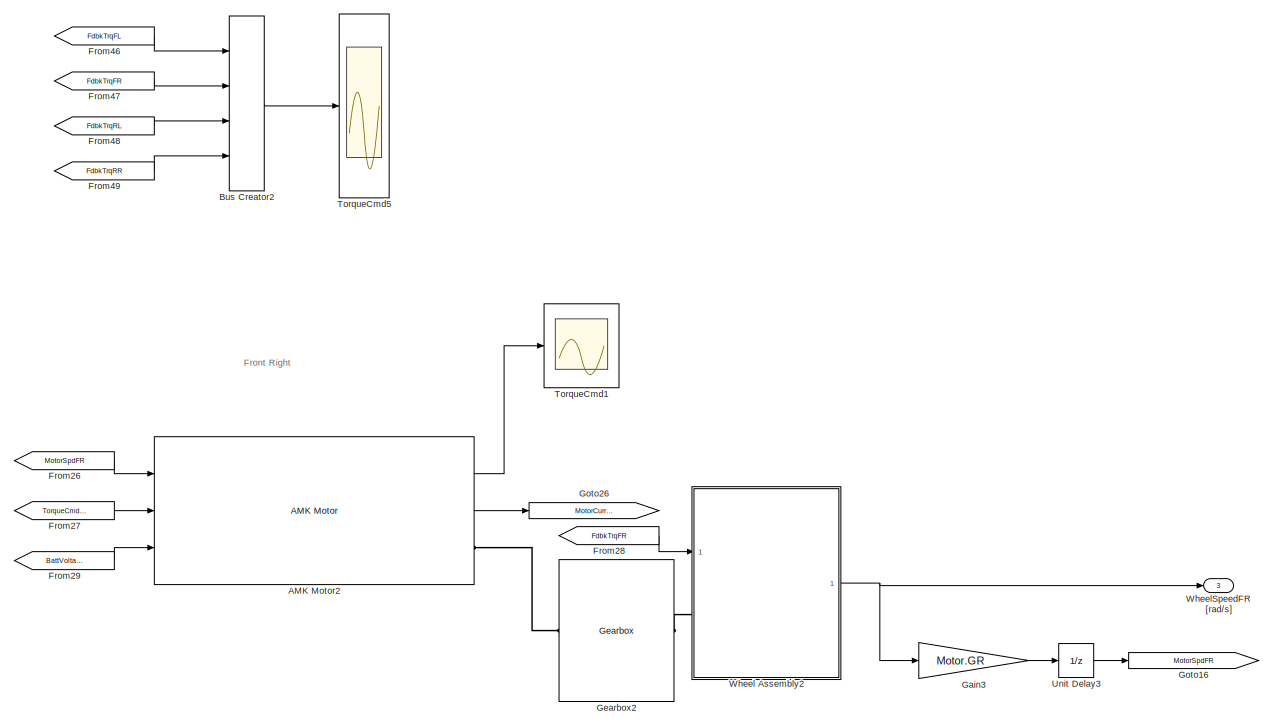
[diagram: Vehicle_model/FE Drivetrain - part 2/8, top right region]
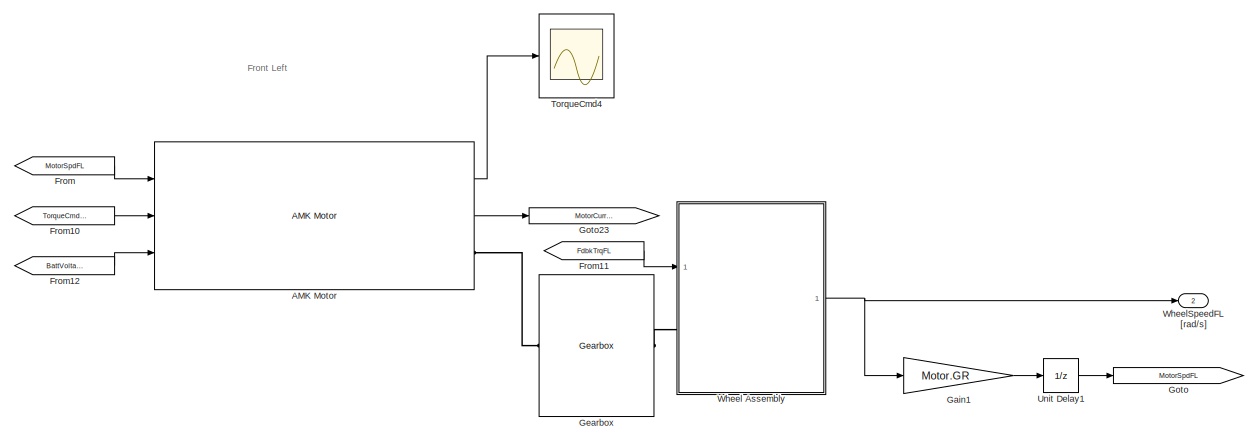
[diagram: Vehicle_model/FE Drivetrain - part 3/8, top left region]
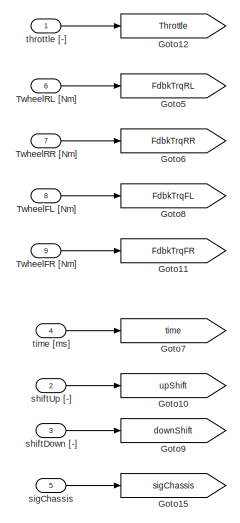
[diagram: Vehicle_model/FE Drivetrain - part 4/8, middle left region]
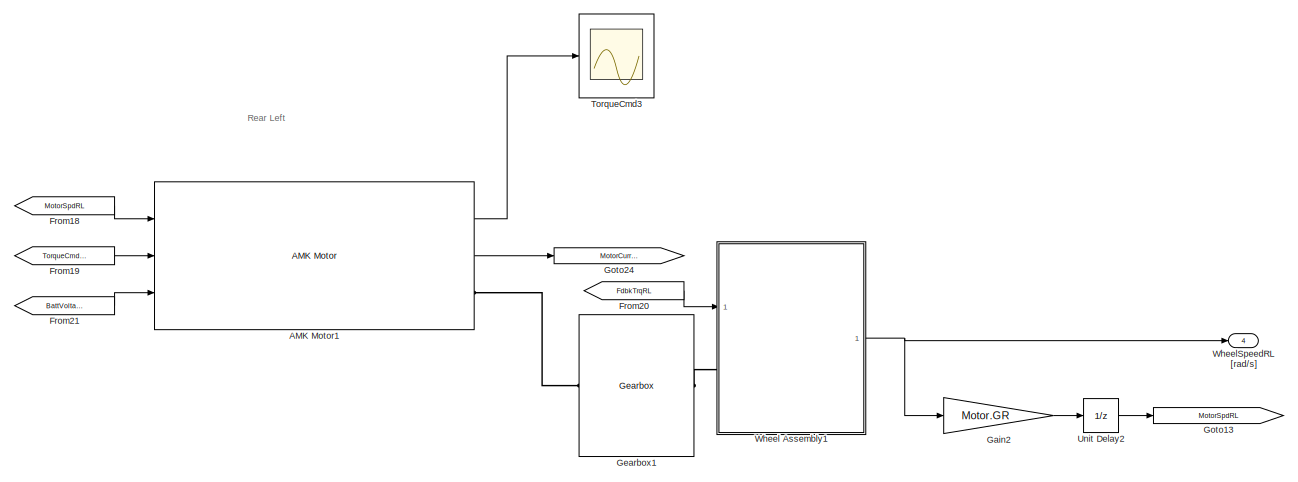
[diagram: Vehicle_model/FE Drivetrain - part 5/8, middle left region]
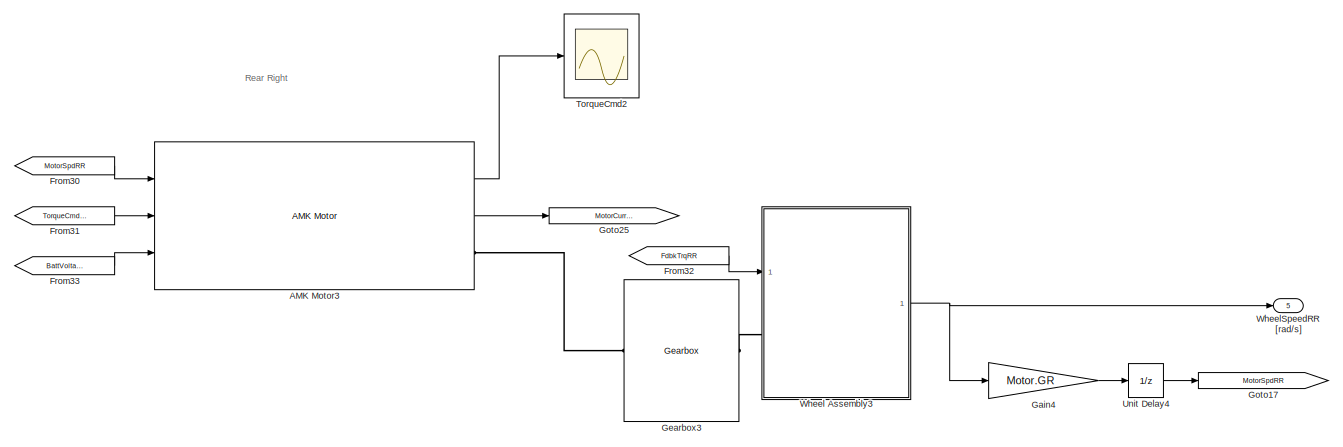
[diagram: Vehicle_model/FE Drivetrain - part 6/8, middle right region]
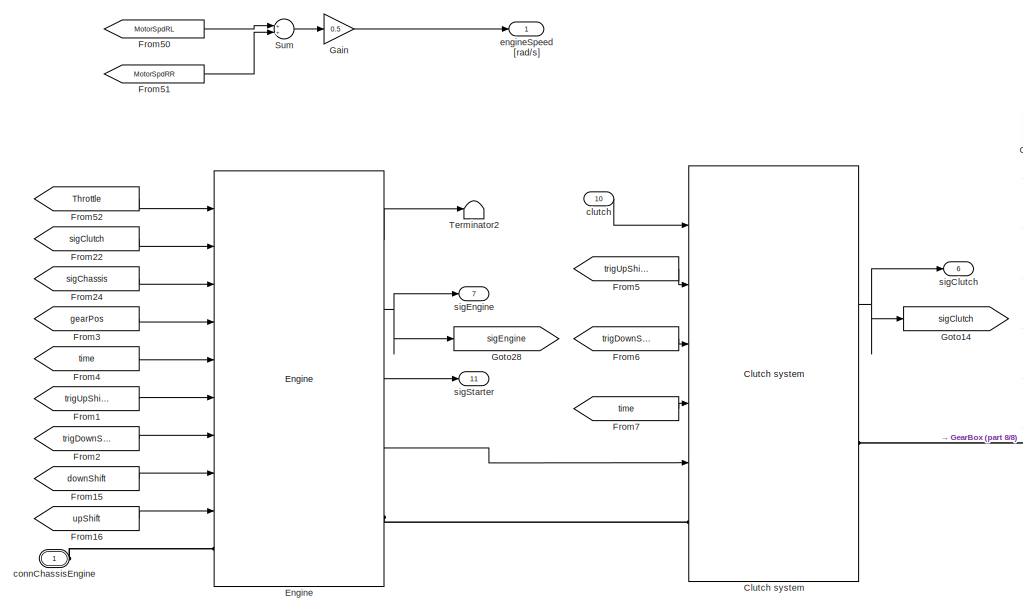
[diagram: Vehicle_model/FE Drivetrain - part 7/8, bottom center region]
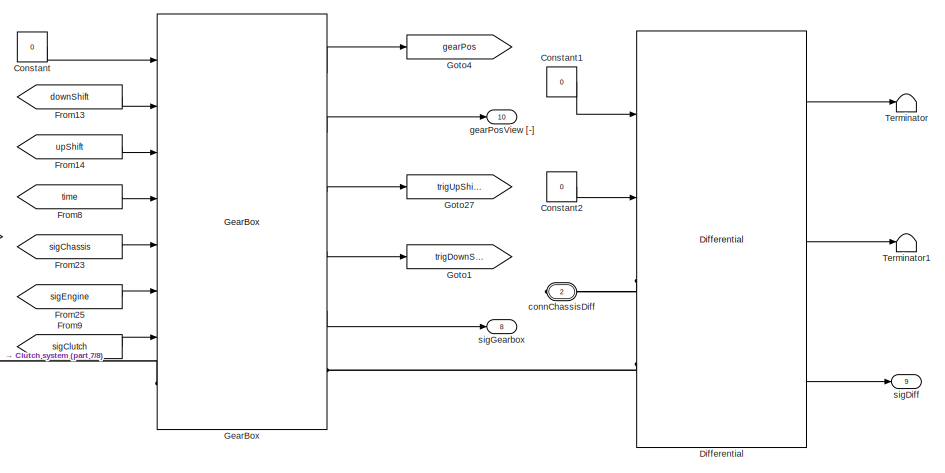
[diagram: Vehicle_model/FE Drivetrain - part 8/8, bottom right region]
BLOCK [SubSystem] Vehicle_model/FE Drivetrain
  AncestorBlock = vehicleLib/Power and drivetrain/Complete system/Power and Drivetrain
  Ports = [10, 11, 0, 0, 0, 1, 1]
  RequestExecContextInheritance = off
  Tag = Power and drivetrain: total power and drivetrain system (do not change this tag)
BLOCK [Reference] Vehicle_model/FE Drivetrain/AMK Motor  REF=AMKMotor/WheelAssembly/AMK Motor
  Ports = [3, 2, 0, 0, 0, 0, 1]
  SourceBlock = AMKMotor/WheelAssembly/AMK Motor
  SourceType = SubSystem
BLOCK [Reference] Vehicle_model/FE Drivetrain/AMK Motor1  REF=AMKMotor/WheelAssembly/AMK Motor
  Ports = [3, 2, 0, 0, 0, 0, 1]
  SourceBlock = AMKMotor/WheelAssembly/AMK Motor
  SourceType = SubSystem
BLOCK [Reference] Vehicle_model/FE Drivetrain/AMK Motor2  REF=AMKMotor/WheelAssembly/AMK Motor
  Ports = [3, 2, 0, 0, 0, 0, 1]
  SourceBlock = AMKMotor/WheelAssembly/AMK Motor
  SourceType = SubSystem
BLOCK [Reference] Vehicle_model/FE Drivetrain/AMK Motor3  REF=AMKMotor/WheelAssembly/AMK Motor
  Ports = [3, 2, 0, 0, 0, 0, 1]
  SourceBlock = AMKMotor/WheelAssembly/AMK Motor
  SourceType = SubSystem
BLOCK [SubSystem] Vehicle_model/FE Drivetrain/Battery
  AncestorBlock = Battery/Battery
  Ports = [1, 3]
  RequestExecContextInheritance = off
BLOCK [Outport] Vehicle_model/FE Drivetrain/Battery/BatterySOC [dec]
  IconDisplay = Port number
  Port = 2
BLOCK [Outport] Vehicle_model/FE Drivetrain/Battery/BatteryTemp [K]
  IconDisplay = Port number
  Port = 3
BLOCK [Outport] Vehicle_model/FE Drivetrain/Battery/BatteryVoltage [V]
  IconDisplay = Port number
BLOCK [Gain] Vehicle_model/FE Drivetrain/Battery/CellResistance
  Gain = Battery.Cell.R
  OutDataTypeStr = Inherit: Inherit via internal rule
  ParamDataTypeStr = Inherit: Inherit via internal rule
  SaturateOnIntegerOverflow = off
BLOCK [Gain] Vehicle_model/FE Drivetrain/Battery/CellTimesSeries
  Gain = Battery.Cell.NumSeries
  OutDataTypeStr = Inherit: Inherit via internal rule
  ParamDataTypeStr = Inherit: Inherit via internal rule
  SaturateOnIntegerOverflow = off
BLOCK [Integrator] Vehicle_model/FE Drivetrain/Battery/ChargeReservoir
  InitialConditionSource = external
  Ports = [2, 1]
BLOCK [Inport] Vehicle_model/FE Drivetrain/Battery/CurrentDraw [A]
  IconDisplay = Port number
BLOCK [Gain] Vehicle_model/FE Drivetrain/Battery/CurrentDrawPerCell
  Gain = -1/Battery.Cell.NumParallel
  OutDataTypeStr = Inherit: Inherit via internal rule
  ParamDataTypeStr = Inherit: Inherit via internal rule
  SaturateOnIntegerOverflow = off
BLOCK [Constant] Vehicle_model/FE Drivetrain/Battery/InitialCharge
  Value = Battery.Cell.Qi
BLOCK [SubSystem] Vehicle_model/FE Drivetrain/Battery/Lumped Thermal Model
  Ports = [1, 1]
  RequestExecContextInheritance = off
BLOCK [Inport] Vehicle_model/FE Drivetrain/Battery/Lumped Thermal Model/Cell Current
  IconDisplay = Port number
BLOCK [Gain] Vehicle_model/FE Drivetrain/Battery/Lumped Thermal Model/CellResistance1
  Gain = Battery.Cell.R
  OutDataTypeStr = Inherit: Inherit via internal rule
  ParamDataTypeStr = Inherit: Inherit via internal rule
  SaturateOnIntegerOverflow = off
BLOCK [SubSystem] Vehicle_model/FE Drivetrain/Battery/Lumped Thermal Model/Environment Air
  Ports = [0, 0, 0, 0, 0, 0, 1]
  RequestExecContextInheritance = off
BLOCK [Constant] Vehicle_model/FE Drivetrain/Battery/Lumped Thermal Model/Environment Air/Ambient Air
  Value = Env.AmbTemp
BLOCK [PMIOPort] Vehicle_model/FE Drivetrain/Battery/Lumped Thermal Model/Environment Air/Connection
  Port = 1
  Side = Right
BLOCK [Reference] Vehicle_model/FE Drivetrain/Battery/Lumped Thermal Model/Environment Air/Convective Heat Transfer  REF=fl_lib/Thermal/Thermal Elements/Convective Heat
Transfer
  ClassName = convection
  ComponentPath = foundation.thermal.elements.convection
  ComponentVariantNames = convection
  ComponentVariants = foundation.thermal.elements.convection
  LogSimulationData = off
  Ports = [0, 0, 0, 0, 0, 1, 1]
  Q = 0
  Q_priority = High
  Q_specify = off
  Q_unit = J/s
  SchemaVersion = 1
  SourceBlock = fl_lib/Thermal/Thermal Elements/Convective Heat\nTransfer
  SourceFile = foundation.thermal.elements.convection
  SourceType = Convective Heat\nTransfer
  T = 0
  T_priority = High
  T_specify = off
  T_unit = K
  area = Battery.SA
  area_unit = m^2
  heat_tr_coeff = Env.NaturalConvection.K
  heat_tr_coeff_unit = W/(m^2 * K)
BLOCK [Reference] Vehicle_model/FE Drivetrain/Battery/Lumped Thermal Model/Environment Air/Ideal Temperature Source  REF=fl_lib/Thermal/Thermal Sources/Ideal Temperature
Source
  ClassName = temperature
  ComponentPath = foundation.thermal.sources.temperature
  ComponentVariantNames = temperature
  ComponentVariants = foundation.thermal.sources.temperature
  LogSimulationData = off
  Ports = [0, 0, 0, 0, 0, 1, 2]
  SchemaVersion = 1
  SourceBlock = fl_lib/Thermal/Thermal Sources/Ideal Temperature\nSource
  SourceFile = foundation.thermal.sources.temperature
  SourceType = Ideal Temperature\nSource
BLOCK [Reference] Vehicle_model/FE Drivetrain/Battery/Lumped Thermal Model/Environment Air/Simulink-PS Converter  REF=nesl_utility/Simulink-PS
Converter
  AffineConversion = off
  Frequencies = []
  InputFilterTimeConstant = 0.001
  InputFiltering = off
  LeftPortType = input
  NoiseDistribution = none
  NoiseParameters = []
  PhysicalDomain = network_engine_domain
  Ports = [1, 0, 0, 0, 0, 0, 1]
  PseudoPeriodic = off
  RightPortType = output
  SimscapeFilterOrder = 1
  SourceBlock = nesl_utility/Simulink-PS\nConverter
  SourceType = Simulink-PS\nConverter
  SubClassName = ps_input
  UdotUserProvided = 1
  Unit = 1
BLOCK [Reference] Vehicle_model/FE Drivetrain/Battery/Lumped Thermal Model/Environment Air/Thermal Reference  REF=fl_lib/Thermal/Thermal Elements/Thermal Reference
  ClassName = reference
  ComponentPath = foundation.thermal.elements.reference
  ComponentVariantNames = reference
  ComponentVariants = foundation.thermal.elements.reference
  LogSimulationData = off
  Ports = [0, 0, 0, 0, 0, 1]
  SchemaVersion = 1
  SourceBlock = fl_lib/Thermal/Thermal Elements/Thermal Reference
  SourceFile = foundation.thermal.elements.reference
  SourceType = Thermal Reference
BLOCK [SubSystem] Vehicle_model/FE Drivetrain/Battery/Lumped Thermal Model/Heat Source
  Ports = [1, 0, 0, 0, 0, 0, 1]
  RequestExecContextInheritance = off
BLOCK [PMIOPort] Vehicle_model/FE Drivetrain/Battery/Lumped Thermal Model/Heat Source/Connection
  Port = 1
  Side = Right
BLOCK [Reference] Vehicle_model/FE Drivetrain/Battery/Lumped Thermal Model/Heat Source/Ideal Heat Flow Source  REF=fl_lib/Thermal/Thermal Sources/Ideal Heat Flow
Source
  ClassName = heat_flow
  ComponentPath = foundation.thermal.sources.heat_flow
  ComponentVariantNames = heat_flow
  ComponentVariants = foundation.thermal.sources.heat_flow
  LogSimulationData = off
  Ports = [0, 0, 0, 0, 0, 1, 2]
  SchemaVersion = 1
  SourceBlock = fl_lib/Thermal/Thermal Sources/Ideal Heat Flow\nSource
  SourceFile = foundation.thermal.sources.heat_flow
  SourceType = Ideal Heat Flow\nSource
BLOCK [Inport] Vehicle_model/FE Drivetrain/Battery/Lumped Thermal Model/Heat Source/Q
  IconDisplay = Port number
BLOCK [Reference] Vehicle_model/FE Drivetrain/Battery/Lumped Thermal Model/Heat Source/Simulink-PS Converter  REF=nesl_utility/Simulink-PS
Converter
  AffineConversion = off
  Frequencies = []
  InputFilterTimeConstant = 0.001
  InputFiltering = off
  LeftPortType = input
  NoiseDistribution = none
  NoiseParameters = []
  PhysicalDomain = network_engine_domain
  Ports = [1, 0, 0, 0, 0, 0, 1]
  PseudoPeriodic = off
  RightPortType = output
  SimscapeFilterOrder = 1
  SourceBlock = nesl_utility/Simulink-PS\nConverter
  SourceType = Simulink-PS\nConverter
  SubClassName = ps_input
  UdotUserProvided = 1
  Unit = 1
BLOCK [Reference] Vehicle_model/FE Drivetrain/Battery/Lumped Thermal Model/Heat Source/Thermal Reference  REF=fl_lib/Thermal/Thermal Elements/Thermal Reference
  ClassName = reference
  ComponentPath = foundation.thermal.elements.reference
  ComponentVariantNames = reference
  ComponentVariants = foundation.thermal.elements.reference
  LogSimulationData = off
  Ports = [0, 0, 0, 0, 0, 1]
  SchemaVersion = 1
  SourceBlock = fl_lib/Thermal/Thermal Elements/Thermal Reference
  SourceFile = foundation.thermal.elements.reference
  SourceType = Thermal Reference
BLOCK [Math] Vehicle_model/FE Drivetrain/Battery/Lumped Thermal Model/Math Function
  Operator = magnitude^2
  Ports = [1, 1]
BLOCK [Gain] Vehicle_model/FE Drivetrain/Battery/Lumped Thermal Model/No_Cells
  Gain = Battery.Cell.NumParallel * Battery.Cell.NumSeries
  OutDataTypeStr = Inherit: Inherit via internal rule
  ParamDataTypeStr = Inherit: Inherit via internal rule
  SaturateOnIntegerOverflow = off
BLOCK [Reference] Vehicle_model/FE Drivetrain/Battery/Lumped Thermal Model/Solver Configuration  REF=nesl_utility/Solver
Configuration
  AbsTol = 1e-06
  Accelerate = off
  AutomaticFiltering = on
  DelaysMemoryBudget = 1024
  DoDC = off
  DoFixedCost = off
  EnableSwitchedLinearOptims = on
  FilteringTimeConstant = 0.001
  FrequencyDomain = off
  Harmonics = []
  LeftPortType = input
  LinearAlgebra = Sparse
  LocalSolverChoice = NE_BACKWARD_EULER_ADVANCER
  LocalSolverSampleTime = 0.001
  MaxModeIter = 2
  MaxNonlinIter = 3
  MinStep = 1e-09
  NumHomotopyIterations = 100
  PhysicalDomain = network_engine_domain
  Ports = [0, 0, 0, 0, 0, 0, 1]
  Profile = off
  RelTol = 0.001
  ResidualTolerance = 1e-09
  RevertToSquareIcSolve = off
  RightPortType = generic
  SimulateNoise = off
  SourceBlock = nesl_utility/Solver\nConfiguration
  SourceType = Solver\nConfiguration
  SubClassName = solver
  ToWorkspace = off
  Tones = []
  UseCCode = off
  UseLocalSampling = off
  UseLocalSolver = off
BLOCK [SubSystem] Vehicle_model/FE Drivetrain/Battery/Lumped Thermal Model/Temperature Sensor
  Ports = [0, 1, 0, 0, 0, 1]
  RequestExecContextInheritance = off
BLOCK [PMIOPort] Vehicle_model/FE Drivetrain/Battery/Lumped Thermal Model/Temperature Sensor/Connection
  Port = 1
  Side = Left
BLOCK [Reference] Vehicle_model/FE Drivetrain/Battery/Lumped Thermal Model/Temperature Sensor/Ideal Temperature Sensor  REF=fl_lib/Thermal/Thermal Sensors/Ideal Temperature
Sensor
  ClassName = temperature
  ComponentPath = foundation.thermal.sensors.temperature
  ComponentVariantNames = temperature
  ComponentVariants = foundation.thermal.sensors.temperature
  LogSimulationData = off
  Ports = [0, 0, 0, 0, 0, 1, 2]
  SchemaVersion = 1
  SourceBlock = fl_lib/Thermal/Thermal Sensors/Ideal Temperature\nSensor
  SourceFile = foundation.thermal.sensors.temperature
  SourceType = Ideal Temperature\nSensor
BLOCK [Reference] Vehicle_model/FE Drivetrain/Battery/Lumped Thermal Model/Temperature Sensor/PS-Simulink Converter  REF=nesl_utility/PS-Simulink
Converter
  AffineConversion = off
  Frequencies = []
  LeftPortType = input
  PhysicalDomain = network_engine_domain
  Ports = [0, 1, 0, 0, 0, 1]
  PseudoPeriodic = off
  RightPortType = output
  SourceBlock = nesl_utility/PS-Simulink\nConverter
  SourceType = PS-Simulink\nConverter
  SubClassName = ps_output
  Unit = 1
BLOCK [Outport] Vehicle_model/FE Drivetrain/Battery/Lumped Thermal Model/Temperature Sensor/Temperature [K]
  IconDisplay = Port number
BLOCK [Reference] Vehicle_model/FE Drivetrain/Battery/Lumped Thermal Model/Temperature Sensor/Thermal Reference  REF=fl_lib/Thermal/Thermal Elements/Thermal Reference
  ClassName = reference
  ComponentPath = foundation.thermal.elements.reference
  ComponentVariantNames = reference
  ComponentVariants = foundation.thermal.elements.reference
  LogSimulationData = off
  Ports = [0, 0, 0, 0, 0, 1]
  SchemaVersion = 1
  SourceBlock = fl_lib/Thermal/Thermal Elements/Thermal Reference
  SourceFile = foundation.thermal.elements.reference
  SourceType = Thermal Reference
BLOCK [Outport] Vehicle_model/FE Drivetrain/Battery/Lumped Thermal Model/Temperature [K]
  IconDisplay = Port number
BLOCK [Reference] Vehicle_model/FE Drivetrain/Battery/Lumped Thermal Model/Thermal Mass  REF=fl_lib/Thermal/Thermal Elements/Thermal Mass
  ClassName = mass
  ComponentPath = foundation.thermal.elements.mass
  ComponentVariantNames = mass
  ComponentVariants = foundation.thermal.elements.mass
  LogSimulationData = off
  Ports = [0, 0, 0, 0, 0, 1]
  Q = 0
  Q_priority = High
  Q_specify = off
  Q_unit = J/s
  SchemaVersion = 1
  SourceBlock = fl_lib/Thermal/Thermal Elements/Thermal Mass
  SourceFile = foundation.thermal.elements.mass
  SourceType = Thermal Mass
  T = 300
  T_priority = High
  T_specify = off
  T_unit = K
  mass = Battery.m
  mass_unit = kg
  sp_heat = Battery.c
  sp_heat_unit = J/kg/K
BLOCK [Lookup_n-D] Vehicle_model/FE Drivetrain/Battery/OCV
  BreakpointsForDimension1 = Battery.Cell.VoltOC.SoC
  InternalRulePriority = Speed
  NumberOfTableDimensions = 1
  Ports = [1, 1]
  RndMeth = Simplest
  Table = Battery.Cell.VoltOC.Voltage
BLOCK [Gain] Vehicle_model/FE Drivetrain/Battery/SoC
  Gain = 1/Battery.Cell.Qi
  OutDataTypeStr = Inherit: Inherit via internal rule
  ParamDataTypeStr = Inherit: Inherit via internal rule
  SaturateOnIntegerOverflow = off
BLOCK [Sum] Vehicle_model/FE Drivetrain/Battery/Sum
  InputSameDT = off
  OutDataTypeStr = Inherit: Inherit via internal rule
  Ports = [2, 1]
  SaturateOnIntegerOverflow = off
BLOCK [BusCreator] Vehicle_model/FE Drivetrain/Bus Creator
  DisplayOption = bar
  Ports = [4, 1]
BLOCK [BusCreator] Vehicle_model/FE Drivetrain/Bus Creator1
  DisplayOption = bar
  Ports = [4, 1]
BLOCK [BusCreator] Vehicle_model/FE Drivetrain/Bus Creator2
  DisplayOption = bar
  Ports = [4, 1]
BLOCK [Reference] Vehicle_model/FE Drivetrain/Clutch system  REF=vehicleLib/Power and drivetrain/Power and drivetrain components/Clutch/Clutch system
  Ports = [5, 1, 0, 0, 0, 1, 1]
  SourceBlock = vehicleLib/Power and drivetrain/Power and drivetrain components/Clutch/Clutch system
  SourceType = Clutch
BLOCK [Constant] Vehicle_model/FE Drivetrain/Constant
  Value = 0
BLOCK [Constant] Vehicle_model/FE Drivetrain/Constant1
  Value = 0
BLOCK [Constant] Vehicle_model/FE Drivetrain/Constant2
  Value = 0
BLOCK [Sum] Vehicle_model/FE Drivetrain/DCBus
  InputSameDT = off
  Inputs = 4
  OutDataTypeStr = Inherit: Inherit via internal rule
  Ports = [4, 1]
  SaturateOnIntegerOverflow = off
BLOCK [Reference] Vehicle_model/FE Drivetrain/Differential  REF=vehicleLib/Power and drivetrain/Power and drivetrain components/Differential/Differential
  Ports = [2, 3, 0, 0, 0, 2]
  SourceBlock = vehicleLib/Power and drivetrain/Power and drivetrain components/Differential/Differential
  SourceType = Differential
  Tag = Power and drivetrain: differential (do not change this tag)
BLOCK [Reference] Vehicle_model/FE Drivetrain/Engine  REF=vehicleLib/Power and drivetrain/Complete system/Power and Drivetrain/Engine
  Ports = [9, 4, 0, 0, 0, 1, 1]
  SourceBlock = vehicleLib/Power and drivetrain/Complete system/Power and Drivetrain/Engine
  SourceType = Engine
  engineInertia = [0.1 0 0;0 0.1 0;0 0 0.1]
  engineInitVel = 3000
  engineMass = 20
  revLim = 8000
BLOCK [From] Vehicle_model/FE Drivetrain/From
  GotoTag = MotorSpdFL
BLOCK [From] Vehicle_model/FE Drivetrain/From1
  GotoTag = trigUpShift
BLOCK [From] Vehicle_model/FE Drivetrain/From10
  GotoTag = TorqueCmdFL
BLOCK [From] Vehicle_model/FE Drivetrain/From11
  GotoTag = FdbkTrqFL
BLOCK [From] Vehicle_model/FE Drivetrain/From12
  GotoTag = BattVoltage
BLOCK [From] Vehicle_model/FE Drivetrain/From13
  GotoTag = downShift
BLOCK [From] Vehicle_model/FE Drivetrain/From14
  GotoTag = upShift
BLOCK [From] Vehicle_model/FE Drivetrain/From15
  GotoTag = downShift
BLOCK [From] Vehicle_model/FE Drivetrain/From16
  GotoTag = upShift
BLOCK [From] Vehicle_model/FE Drivetrain/From17
  GotoTag = Throttle
BLOCK [From] Vehicle_model/FE Drivetrain/From18
  GotoTag = MotorSpdRL
BLOCK [From] Vehicle_model/FE Drivetrain/From19
  GotoTag = TorqueCmdRL
BLOCK [From] Vehicle_model/FE Drivetrain/From2
  GotoTag = trigDownShift
BLOCK [From] Vehicle_model/FE Drivetrain/From20
  GotoTag = FdbkTrqRL
BLOCK [From] Vehicle_model/FE Drivetrain/From21
  GotoTag = BattVoltage
BLOCK [From] Vehicle_model/FE Drivetrain/From22
  GotoTag = sigClutch
BLOCK [From] Vehicle_model/FE Drivetrain/From23
  GotoTag = sigChassis
BLOCK [From] Vehicle_model/FE Drivetrain/From24
  GotoTag = sigChassis
BLOCK [From] Vehicle_model/FE Drivetrain/From25
  GotoTag = sigEngine
BLOCK [From] Vehicle_model/FE Drivetrain/From26
  GotoTag = MotorSpdFR
BLOCK [From] Vehicle_model/FE Drivetrain/From27
  GotoTag = TorqueCmdFR
BLOCK [From] Vehicle_model/FE Drivetrain/From28
  GotoTag = FdbkTrqFR
BLOCK [From] Vehicle_model/FE Drivetrain/From29
  GotoTag = BattVoltage
BLOCK [From] Vehicle_model/FE Drivetrain/From3
  GotoTag = gearPos
BLOCK [From] Vehicle_model/FE Drivetrain/From30
  GotoTag = MotorSpdRR
BLOCK [From] Vehicle_model/FE Drivetrain/From31
  GotoTag = TorqueCmdRR
BLOCK [From] Vehicle_model/FE Drivetrain/From32
  GotoTag = FdbkTrqRR
BLOCK [From] Vehicle_model/FE Drivetrain/From33
  GotoTag = BattVoltage
BLOCK [From] Vehicle_model/FE Drivetrain/From34
  GotoTag = MotorSpdFL
BLOCK [From] Vehicle_model/FE Drivetrain/From35
  GotoTag = MotorSpdFR
BLOCK [From] Vehicle_model/FE Drivetrain/From36
  GotoTag = MotorSpdRL
BLOCK [From] Vehicle_model/FE Drivetrain/From37
  GotoTag = MotorSpdRR
BLOCK [From] Vehicle_model/FE Drivetrain/From38
  GotoTag = TorqueCmdFL
BLOCK [From] Vehicle_model/FE Drivetrain/From39
  GotoTag = TorqueCmdFR
BLOCK [From] Vehicle_model/FE Drivetrain/From4
  GotoTag = time
BLOCK [From] Vehicle_model/FE Drivetrain/From40
  GotoTag = TorqueCmdRL
BLOCK [From] Vehicle_model/FE Drivetrain/From41
  GotoTag = TorqueCmdRR
BLOCK [From] Vehicle_model/FE Drivetrain/From42
  GotoTag = MotorSpdFL
BLOCK [From] Vehicle_model/FE Drivetrain/From43
  GotoTag = MotorSpdFR
BLOCK [From] Vehicle_model/FE Drivetrain/From44
  GotoTag = MotorSpdRL
BLOCK [From] Vehicle_model/FE Drivetrain/From45
  GotoTag = MotorSpdRR
BLOCK [From] Vehicle_model/FE Drivetrain/From46
  GotoTag = FdbkTrqFL
BLOCK [From] Vehicle_model/FE Drivetrain/From47
  GotoTag = FdbkTrqFR
BLOCK [From] Vehicle_model/FE Drivetrain/From48
  GotoTag = FdbkTrqRL
BLOCK [From] Vehicle_model/FE Drivetrain/From49
  GotoTag = FdbkTrqRR
BLOCK [From] Vehicle_model/FE Drivetrain/From5
  GotoTag = trigUpShift
BLOCK [From] Vehicle_model/FE Drivetrain/From50
  GotoTag = MotorSpdRL
BLOCK [From] Vehicle_model/FE Drivetrain/From51
  GotoTag = MotorSpdRR
BLOCK [From] Vehicle_model/FE Drivetrain/From52
  GotoTag = Throttle
BLOCK [From] Vehicle_model/FE Drivetrain/From53
  GotoTag = MotorCurrentFL
BLOCK [From] Vehicle_model/FE Drivetrain/From54
  GotoTag = MotorCurrentFR
BLOCK [From] Vehicle_model/FE Drivetrain/From55
  GotoTag = MotorCurrentRL
BLOCK [From] Vehicle_model/FE Drivetrain/From56
  GotoTag = MotorCurrentRR
BLOCK [From] Vehicle_model/FE Drivetrain/From6
  GotoTag = trigDownShift
BLOCK [From] Vehicle_model/FE Drivetrain/From7
  GotoTag = time
BLOCK [From] Vehicle_model/FE Drivetrain/From8
  GotoTag = time
BLOCK [From] Vehicle_model/FE Drivetrain/From9
  GotoTag = sigClutch
BLOCK [Gain] Vehicle_model/FE Drivetrain/Gain
  Gain = 0.5
  OutDataTypeStr = Inherit: Inherit via internal rule
  ParamDataTypeStr = Inherit: Inherit via internal rule
  SaturateOnIntegerOverflow = off
BLOCK [Gain] Vehicle_model/FE Drivetrain/Gain1
  Gain = Motor.GR
  OutDataTypeStr = Inherit: Inherit via internal rule
  ParamDataTypeStr = Inherit: Inherit via internal rule
  SaturateOnIntegerOverflow = off
BLOCK [Gain] Vehicle_model/FE Drivetrain/Gain2
  Gain = Motor.GR
  OutDataTypeStr = Inherit: Inherit via internal rule
  ParamDataTypeStr = Inherit: Inherit via internal rule
  SaturateOnIntegerOverflow = off
BLOCK [Gain] Vehicle_model/FE Drivetrain/Gain3
  Gain = Motor.GR
  OutDataTypeStr = Inherit: Inherit via internal rule
  ParamDataTypeStr = Inherit: Inherit via internal rule
  SaturateOnIntegerOverflow = off
BLOCK [Gain] Vehicle_model/FE Drivetrain/Gain4
  Gain = Motor.GR
  OutDataTypeStr = Inherit: Inherit via internal rule
  ParamDataTypeStr = Inherit: Inherit via internal rule
  SaturateOnIntegerOverflow = off
BLOCK [Reference] Vehicle_model/FE Drivetrain/GearBox  REF=vehicleLib/Power and drivetrain/Power and drivetrain components/Gearbox/GearBox
  Ports = [7, 5, 0, 0, 0, 1, 1]
  SourceBlock = vehicleLib/Power and drivetrain/Power and drivetrain components/Gearbox/GearBox
  SourceType = Gearbox
BLOCK [Reference] Vehicle_model/FE Drivetrain/Gearbox  REF=WheelAssembly/WheelAssembly/Gearbox
  Ports = [0, 0, 0, 0, 0, 1, 1]
  SourceBlock = WheelAssembly/WheelAssembly/Gearbox
  SourceType = SubSystem
BLOCK [Reference] Vehicle_model/FE Drivetrain/Gearbox1  REF=WheelAssembly/WheelAssembly/Gearbox
  Ports = [0, 0, 0, 0, 0, 1, 1]
  SourceBlock = WheelAssembly/WheelAssembly/Gearbox
  SourceType = SubSystem
BLOCK [Reference] Vehicle_model/FE Drivetrain/Gearbox2  REF=WheelAssembly/WheelAssembly/Gearbox
  Ports = [0, 0, 0, 0, 0, 1, 1]
  SourceBlock = WheelAssembly/WheelAssembly/Gearbox
  SourceType = SubSystem
BLOCK [Reference] Vehicle_model/FE Drivetrain/Gearbox3  REF=WheelAssembly/WheelAssembly/Gearbox
  Ports = [0, 0, 0, 0, 0, 1, 1]
  SourceBlock = WheelAssembly/WheelAssembly/Gearbox
  SourceType = SubSystem
BLOCK [Goto] Vehicle_model/FE Drivetrain/Goto
  GotoTag = MotorSpdFL
BLOCK [Goto] Vehicle_model/FE Drivetrain/Goto1
  GotoTag = trigDownShift
BLOCK [Goto] Vehicle_model/FE Drivetrain/Goto10
  GotoTag = upShift
BLOCK [Goto] Vehicle_model/FE Drivetrain/Goto11
  GotoTag = FdbkTrqFR
BLOCK [Goto] Vehicle_model/FE Drivetrain/Goto12
  GotoTag = Throttle
BLOCK [Goto] Vehicle_model/FE Drivetrain/Goto13
  GotoTag = MotorSpdRL
BLOCK [Goto] Vehicle_model/FE Drivetrain/Goto14
  GotoTag = sigClutch
BLOCK [Goto] Vehicle_model/FE Drivetrain/Goto15
  GotoTag = sigChassis
BLOCK [Goto] Vehicle_model/FE Drivetrain/Goto16
  GotoTag = MotorSpdFR
BLOCK [Goto] Vehicle_model/FE Drivetrain/Goto17
  GotoTag = MotorSpdRR
BLOCK [Goto] Vehicle_model/FE Drivetrain/Goto18
  GotoTag = TorqueCmdFL
BLOCK [Goto] Vehicle_model/FE Drivetrain/Goto19
  GotoTag = TorqueCmdFR
BLOCK [Goto] Vehicle_model/FE Drivetrain/Goto20
  GotoTag = TorqueCmdRL
BLOCK [Goto] Vehicle_model/FE Drivetrain/Goto21
  GotoTag = TorqueCmdRR
BLOCK [Goto] Vehicle_model/FE Drivetrain/Goto22
  GotoTag = BattVoltage
BLOCK [Goto] Vehicle_model/FE Drivetrain/Goto23
  GotoTag = MotorCurrentFL
BLOCK [Goto] Vehicle_model/FE Drivetrain/Goto24
  GotoTag = MotorCurrentRL
BLOCK [Goto] Vehicle_model/FE Drivetrain/Goto25
  GotoTag = MotorCurrentRR
BLOCK [Goto] Vehicle_model/FE Drivetrain/Goto26
  GotoTag = MotorCurrentFR
BLOCK [Goto] Vehicle_model/FE Drivetrain/Goto27
  GotoTag = trigUpShift
BLOCK [Goto] Vehicle_model/FE Drivetrain/Goto28
  GotoTag = sigEngine
BLOCK [Goto] Vehicle_model/FE Drivetrain/Goto4
  GotoTag = gearPos
BLOCK [Goto] Vehicle_model/FE Drivetrain/Goto5
  GotoTag = FdbkTrqRL
BLOCK [Goto] Vehicle_model/FE Drivetrain/Goto6
  GotoTag = FdbkTrqRR
BLOCK [Goto] Vehicle_model/FE Drivetrain/Goto7
  GotoTag = time
BLOCK [Goto] Vehicle_model/FE Drivetrain/Goto8
  GotoTag = FdbkTrqFL
BLOCK [Goto] Vehicle_model/FE Drivetrain/Goto9
  GotoTag = downShift
BLOCK [Scope] Vehicle_model/FE Drivetrain/MotorSpeed
  Floating = off
  LimitDataPoints = off
  NumInputPorts = 1
  Ports = [1]
  YMax = 21000
  YMin = 0
BLOCK [Scope] Vehicle_model/FE Drivetrain/Scope
  Floating = off
  NumInputPorts = 1
  Ports = [1]
  SaveName = ScopeData7
BLOCK [Scope] Vehicle_model/FE Drivetrain/Scope1
  Floating = off
  NumInputPorts = 1
  Ports = [1]
  SaveName = ScopeData8
  YMax = 0.00986598
  YMin = 0.00986598
BLOCK [Scope] Vehicle_model/FE Drivetrain/Scope2
  Floating = off
  NumInputPorts = 1
  Ports = [1]
  SaveName = ScopeData9
  YMax = 1
  YMin = 0
BLOCK [Sum] Vehicle_model/FE Drivetrain/Sum
  InputSameDT = off
  OutDataTypeStr = Inherit: Inherit via internal rule
  Ports = [2, 1]
  SaturateOnIntegerOverflow = off
BLOCK [Terminator] Vehicle_model/FE Drivetrain/Terminator
BLOCK [Terminator] Vehicle_model/FE Drivetrain/Terminator1
BLOCK [Terminator] Vehicle_model/FE Drivetrain/Terminator2
BLOCK [Scope] Vehicle_model/FE Drivetrain/TorqueCmd
  Floating = off
  LimitDataPoints = off
  NumInputPorts = 1
  Ports = [1]
  SaveName = ScopeData1
  YMax = 21
  YMin = 0
BLOCK [Scope] Vehicle_model/FE Drivetrain/TorqueCmd1
  Floating = off
  LimitDataPoints = off
  NumInputPorts = 1
  Ports = [1]
  SaveName = ScopeData2
  YMax = 22.5
  YMin = -2.5
BLOCK [Scope] Vehicle_model/FE Drivetrain/TorqueCmd2
  Floating = off
  NumInputPorts = 1
  Ports = [1]
  SaveName = ScopeData3
  YMax = 100
  YMin = -0
BLOCK [Scope] Vehicle_model/FE Drivetrain/TorqueCmd3
  Floating = off
  NumInputPorts = 1
  Ports = [1]
  SaveName = ScopeData4
  YMax = 50
  YMin = -30
BLOCK [Scope] Vehicle_model/FE Drivetrain/TorqueCmd4
  Floating = off
  NumInputPorts = 1
  Ports = [1]
  SaveName = ScopeData5
  YMax = 50
  YMin = -30
BLOCK [Scope] Vehicle_model/FE Drivetrain/TorqueCmd5
  Floating = off
  LimitDataPoints = off
  NumInputPorts = 1
  Ports = [1]
  SaveName = ScopeData6
  YMax = 300
  YMin = -300
BLOCK [Inport] Vehicle_model/FE Drivetrain/TwheelFL [Nm]
  IconDisplay = Port number
  Port = 8
BLOCK [Inport] Vehicle_model/FE Drivetrain/TwheelFR [Nm]
  IconDisplay = Port number
  Port = 9
BLOCK [Inport] Vehicle_model/FE Drivetrain/TwheelRL [Nm]
  IconDisplay = Port number
  Port = 6
BLOCK [Inport] Vehicle_model/FE Drivetrain/TwheelRR [Nm]
  IconDisplay = Port number
  Port = 7
BLOCK [UnitDelay] Vehicle_model/FE Drivetrain/Unit Delay
  InitialCondition = 600
  InputProcessing = Elements as channels (sample based)
  SampleTime = -1
BLOCK [UnitDelay] Vehicle_model/FE Drivetrain/Unit Delay1
  InputProcessing = Elements as channels (sample based)
  SampleTime = -1
BLOCK [UnitDelay] Vehicle_model/FE Drivetrain/Unit Delay2
  InputProcessing = Elements as channels (sample based)
  SampleTime = -1
BLOCK [UnitDelay] Vehicle_model/FE Drivetrain/Unit Delay3
  InputProcessing = Elements as channels (sample based)
  SampleTime = -1
BLOCK [UnitDelay] Vehicle_model/FE Drivetrain/Unit Delay4
  InputProcessing = Elements as channels (sample based)
  SampleTime = -1
BLOCK [SubSystem] Vehicle_model/FE Drivetrain/Vehicle Control System
  Ports = [5, 4]
  RequestExecContextInheritance = off
BLOCK [From] Vehicle_model/FE Drivetrain/Vehicle Control System/From
  GotoTag = Throttle
BLOCK [From] Vehicle_model/FE Drivetrain/Vehicle Control System/From1
  GotoTag = Throttle
BLOCK [Gain] Vehicle_model/FE Drivetrain/Vehicle Control System/Gain
  OutDataTypeStr = Inherit: Inherit via internal rule
  ParamDataTypeStr = Inherit: Inherit via internal rule
  SaturateOnIntegerOverflow = off
BLOCK [Gain] Vehicle_model/FE Drivetrain/Vehicle Control System/Gain1
  OutDataTypeStr = Inherit: Inherit via internal rule
  ParamDataTypeStr = Inherit: Inherit via internal rule
  SaturateOnIntegerOverflow = off
BLOCK [Gain] Vehicle_model/FE Drivetrain/Vehicle Control System/Gain2
  OutDataTypeStr = Inherit: Inherit via internal rule
  ParamDataTypeStr = Inherit: Inherit via internal rule
  SaturateOnIntegerOverflow = off
BLOCK [Gain] Vehicle_model/FE Drivetrain/Vehicle Control System/Gain3
  OutDataTypeStr = Inherit: Inherit via internal rule
  ParamDataTypeStr = Inherit: Inherit via internal rule
  SaturateOnIntegerOverflow = off
BLOCK [Goto] Vehicle_model/FE Drivetrain/Vehicle Control System/Goto
  GotoTag = Throttle
BLOCK [Reference] Vehicle_model/FE Drivetrain/Vehicle Control System/Minimum Throttle to Lock Diff  REF=simulink/Logic and Bit
Operations/Compare
To Constant
  OutDataTypeStr = boolean
  Ports = [1, 1]
  SourceBlock = simulink/Logic and Bit\nOperations/Compare\nTo Constant
  SourceType = Compare To Constant
  ZeroCross = on
  const = 100
  relop = >=
BLOCK [Reference] Vehicle_model/FE Drivetrain/Vehicle Control System/Minimum Throttle to Lock Diff1  REF=simulink/Logic and Bit
Operations/Compare
To Constant
  OutDataTypeStr = boolean
  Ports = [1, 1]
  SourceBlock = simulink/Logic and Bit\nOperations/Compare\nTo Constant
  SourceType = Compare To Constant
  ZeroCross = on
  const = 0
  relop = >=
BLOCK [SubSystem] Vehicle_model/FE Drivetrain/Vehicle Control System/Simulate Viscous Diff
  Ports = [3, 1]
  RequestExecContextInheritance = off
BLOCK [Gain] Vehicle_model/FE Drivetrain/Vehicle Control System/Simulate Viscous Diff/AxleStiffness
  Gain = 0.5
  OutDataTypeStr = Inherit: Inherit via internal rule
  ParamDataTypeStr = Inherit: Inherit via internal rule
  SaturateOnIntegerOverflow = off
BLOCK [Inport] Vehicle_model/FE Drivetrain/Vehicle Control System/Simulate Viscous Diff/Enable
  IconDisplay = Port number
  Port = 3
BLOCK [Product] Vehicle_model/FE Drivetrain/Vehicle Control System/Simulate Viscous Diff/Product
  InputSameDT = off
  OutDataTypeStr = Inherit: Inherit via internal rule
  Ports = [2, 1]
  RndMeth = Floor
  SaturateOnIntegerOverflow = off
BLOCK [Sum] Vehicle_model/FE Drivetrain/Vehicle Control System/Simulate Viscous Diff/Subtract
  InputSameDT = off
  Inputs = -+
  OutDataTypeStr = Inherit: Inherit via internal rule
  Ports = [2, 1]
  SaturateOnIntegerOverflow = off
BLOCK [Outport] Vehicle_model/FE Drivetrain/Vehicle Control System/Simulate Viscous Diff/TrqBias
  IconDisplay = Port number
BLOCK [Gain] Vehicle_model/FE Drivetrain/Vehicle Control System/Simulate Viscous Diff/TrqSplit
  Gain = 1/2
  OutDataTypeStr = Inherit: Inherit via internal rule
  ParamDataTypeStr = Inherit: Inherit via internal rule
  SaturateOnIntegerOverflow = off
BLOCK [Inport] Vehicle_model/FE Drivetrain/Vehicle Control System/Simulate Viscous Diff/WhlSpdL
  IconDisplay = Port number
BLOCK [Inport] Vehicle_model/FE Drivetrain/Vehicle Control System/Simulate Viscous Diff/WhlSpdR
  IconDisplay = Port number
  Port = 2
BLOCK [SubSystem] Vehicle_model/FE Drivetrain/Vehicle Control System/Simulate Viscous Diff1
  Ports = [3, 1]
  RequestExecContextInheritance = off
BLOCK [Gain] Vehicle_model/FE Drivetrain/Vehicle Control System/Simulate Viscous Diff1/AxleStiffness
  Gain = 0.5
  OutDataTypeStr = Inherit: Inherit via internal rule
  ParamDataTypeStr = Inherit: Inherit via internal rule
  SaturateOnIntegerOverflow = off
BLOCK [Inport] Vehicle_model/FE Drivetrain/Vehicle Control System/Simulate Viscous Diff1/Enable
  IconDisplay = Port number
  Port = 3
BLOCK [Product] Vehicle_model/FE Drivetrain/Vehicle Control System/Simulate Viscous Diff1/Product
  InputSameDT = off
  OutDataTypeStr = Inherit: Inherit via internal rule
  Ports = [2, 1]
  RndMeth = Floor
  SaturateOnIntegerOverflow = off
BLOCK [Sum] Vehicle_model/FE Drivetrain/Vehicle Control System/Simulate Viscous Diff1/Subtract
  InputSameDT = off
  Inputs = -+
  OutDataTypeStr = Inherit: Inherit via internal rule
  Ports = [2, 1]
  SaturateOnIntegerOverflow = off
BLOCK [Outport] Vehicle_model/FE Drivetrain/Vehicle Control System/Simulate Viscous Diff1/TrqBias
  IconDisplay = Port number
BLOCK [Gain] Vehicle_model/FE Drivetrain/Vehicle Control System/Simulate Viscous Diff1/TrqSplit
  Gain = 1/2
  OutDataTypeStr = Inherit: Inherit via internal rule
  ParamDataTypeStr = Inherit: Inherit via internal rule
  SaturateOnIntegerOverflow = off
BLOCK [Inport] Vehicle_model/FE Drivetrain/Vehicle Control System/Simulate Viscous Diff1/WhlSpdL
  IconDisplay = Port number
BLOCK [Inport] Vehicle_model/FE Drivetrain/Vehicle Control System/Simulate Viscous Diff1/WhlSpdR
  IconDisplay = Port number
  Port = 2
BLOCK [Sum] Vehicle_model/FE Drivetrain/Vehicle Control System/Sum
  InputSameDT = off
  OutDataTypeStr = Inherit: Inherit via internal rule
  Ports = [2, 1]
  SaturateOnIntegerOverflow = off
BLOCK [Sum] Vehicle_model/FE Drivetrain/Vehicle Control System/Sum1
  InputSameDT = off
  Inputs = +-
  OutDataTypeStr = Inherit: Inherit via internal rule
  Ports = [2, 1]
  SaturateOnIntegerOverflow = off
BLOCK [Sum] Vehicle_model/FE Drivetrain/Vehicle Control System/Sum2
  InputSameDT = off
  OutDataTypeStr = Inherit: Inherit via internal rule
  Ports = [2, 1]
  SaturateOnIntegerOverflow = off
BLOCK [Sum] Vehicle_model/FE Drivetrain/Vehicle Control System/Sum3
  InputSameDT = off
  Inputs = +-
  OutDataTypeStr = Inherit: Inherit via internal rule
  Ports = [2, 1]
  SaturateOnIntegerOverflow = off
BLOCK [Inport] Vehicle_model/FE Drivetrain/Vehicle Control System/Throttle
  IconDisplay = Port number
BLOCK [SubSystem] Vehicle_model/FE Drivetrain/Vehicle Control System/ThrottleTrqMap
  Ports = [1, 1]
  RequestExecContextInheritance = off
BLOCK [Constant] Vehicle_model/FE Drivetrain/Vehicle Control System/ThrottleTrqMap/Constant4
  Value = Motor.PeakTrq
BLOCK [Product] Vehicle_model/FE Drivetrain/Vehicle Control System/ThrottleTrqMap/Product
  InputSameDT = off
  OutDataTypeStr = Inherit: Inherit via internal rule
  Ports = [2, 1]
  RndMeth = Floor
  SaturateOnIntegerOverflow = off
BLOCK [Inport] Vehicle_model/FE Drivetrain/Vehicle Control System/ThrottleTrqMap/Throttle
  IconDisplay = Port number
BLOCK [Outport] Vehicle_model/FE Drivetrain/Vehicle Control System/ThrottleTrqMap/TrqCmd
  IconDisplay = Port number
BLOCK [Outport] Vehicle_model/FE Drivetrain/Vehicle Control System/TorqueCmdFL [Nm]
  IconDisplay = Port number
BLOCK [Outport] Vehicle_model/FE Drivetrain/Vehicle Control System/TorqueCmdFR [Nm]
  IconDisplay = Port number
  Port = 2
BLOCK [Outport] Vehicle_model/FE Drivetrain/Vehicle Control System/TorqueCmdRL [Nm]
  IconDisplay = Port number
  Port = 3
BLOCK [Outport] Vehicle_model/FE Drivetrain/Vehicle Control System/TorqueCmdRR [Nm]
  IconDisplay = Port number
  Port = 4
BLOCK [Inport] Vehicle_model/FE Drivetrain/Vehicle Control System/WhlSpdFL [rad//s]
  IconDisplay = Port number
  Port = 2
BLOCK [Inport] Vehicle_model/FE Drivetrain/Vehicle Control System/WhlSpdFR [rad//s]
  IconDisplay = Port number
  Port = 3
BLOCK [Inport] Vehicle_model/FE Drivetrain/Vehicle Control System/WhlSpdRL [rad//s]
  IconDisplay = Port number
  Port = 4
BLOCK [Inport] Vehicle_model/FE Drivetrain/Vehicle Control System/WhlSpdRR [rad//s]
  IconDisplay = Port number
  Port = 5
BLOCK [SubSystem] Vehicle_model/FE Drivetrain/Wheel Assembly
  Ports = [1, 1, 0, 0, 0, 1]
  RequestExecContextInheritance = off
BLOCK [Reference] Vehicle_model/FE Drivetrain/Wheel Assembly/Motion Sensor1  REF=driveline/Sensors &  (lib defined in slx_0115b7ecc7e4, slx_0630d05a24ab, +7 more)
Actuators/Motion Sensor
  Acceleration = off
  Angle = off
  Ports = [0, 1, 0, 0, 0, 1]
  SourceBlock = driveline/Sensors &\nActuators/Motion Sensor
  SourceType = Motion Sensor
  Velocity = on
  x0 = 0
BLOCK [Reference] Vehicle_model/FE Drivetrain/Wheel Assembly/Torque Actuator1  REF=driveline/Sensors &  (lib defined in slx_0115b7ecc7e4, slx_0630d05a24ab, +7 more)
Actuators/Torque Actuator
  Ports = [1, 0, 0, 0, 0, 0, 1]
  SourceBlock = driveline/Sensors &\nActuators/Torque Actuator
  SourceType = Torque Actuator
BLOCK [Outport] Vehicle_model/FE Drivetrain/Wheel Assembly/WheelSpeed [Rad//s]
  IconDisplay = Port number
BLOCK [Inport] Vehicle_model/FE Drivetrain/Wheel Assembly/WhlFdbkTrq [Nm]
  IconDisplay = Port number
BLOCK [PMIOPort] Vehicle_model/FE Drivetrain/Wheel Assembly/WhlIn
  Port = 1
  Side = Left
BLOCK [Reference] Vehicle_model/FE Drivetrain/Wheel Assembly/driveAxleInertiaR  REF=driveline/Solver &  (lib defined in slx_0115b7ecc7e4, slx_0630d05a24ab, +7 more)
Inertias/Inertia
  BlockClass = Inertia
  I = 0.5
  Ip = []
  Iv = []
  PhysicalDomain = driveline_domain
  PortType = p1
  Ports = [0, 0, 0, 0, 0, 1]
  ShowLeft = on
  ShowRight = off
  SourceBlock = driveline/Solver &\nInertias/Inertia
  SourceType = Inertia
BLOCK [SubSystem] Vehicle_model/FE Drivetrain/Wheel Assembly1
  Ports = [1, 1, 0, 0, 0, 1]
  RequestExecContextInheritance = off
BLOCK [Reference] Vehicle_model/FE Drivetrain/Wheel Assembly1/Motion Sensor1  REF=driveline/Sensors &  (lib defined in slx_0115b7ecc7e4, slx_0630d05a24ab, +7 more)
Actuators/Motion Sensor
  Acceleration = off
  Angle = off
  Ports = [0, 1, 0, 0, 0, 1]
  SourceBlock = driveline/Sensors &\nActuators/Motion Sensor
  SourceType = Motion Sensor
  Velocity = on
  x0 = 0
BLOCK [Reference] Vehicle_model/FE Drivetrain/Wheel Assembly1/Torque Actuator1  REF=driveline/Sensors &  (lib defined in slx_0115b7ecc7e4, slx_0630d05a24ab, +7 more)
Actuators/Torque Actuator
  Ports = [1, 0, 0, 0, 0, 0, 1]
  SourceBlock = driveline/Sensors &\nActuators/Torque Actuator
  SourceType = Torque Actuator
BLOCK [Outport] Vehicle_model/FE Drivetrain/Wheel Assembly1/WheelSpeed [Rad//s]
  IconDisplay = Port number
BLOCK [Inport] Vehicle_model/FE Drivetrain/Wheel Assembly1/WhlFdbkTrq [Nm]
  IconDisplay = Port number
BLOCK [PMIOPort] Vehicle_model/FE Drivetrain/Wheel Assembly1/WhlIn
  Port = 1
  Side = Left
BLOCK [Reference] Vehicle_model/FE Drivetrain/Wheel Assembly1/driveAxleInertiaR  REF=driveline/Solver &  (lib defined in slx_0115b7ecc7e4, slx_0630d05a24ab, +7 more)
Inertias/Inertia
  BlockClass = Inertia
  I = 0.5
  Ip = []
  Iv = []
  PhysicalDomain = driveline_domain
  PortType = p1
  Ports = [0, 0, 0, 0, 0, 1]
  ShowLeft = on
  ShowRight = off
  SourceBlock = driveline/Solver &\nInertias/Inertia
  SourceType = Inertia
BLOCK [SubSystem] Vehicle_model/FE Drivetrain/Wheel Assembly2
  Ports = [1, 1, 0, 0, 0, 1]
  RequestExecContextInheritance = off
BLOCK [Reference] Vehicle_model/FE Drivetrain/Wheel Assembly2/Motion Sensor1  REF=driveline/Sensors &  (lib defined in slx_0115b7ecc7e4, slx_0630d05a24ab, +7 more)
Actuators/Motion Sensor
  Acceleration = off
  Angle = off
  Ports = [0, 1, 0, 0, 0, 1]
  SourceBlock = driveline/Sensors &\nActuators/Motion Sensor
  SourceType = Motion Sensor
  Velocity = on
  x0 = 0
BLOCK [Reference] Vehicle_model/FE Drivetrain/Wheel Assembly2/Torque Actuator1  REF=driveline/Sensors &  (lib defined in slx_0115b7ecc7e4, slx_0630d05a24ab, +7 more)
Actuators/Torque Actuator
  Ports = [1, 0, 0, 0, 0, 0, 1]
  SourceBlock = driveline/Sensors &\nActuators/Torque Actuator
  SourceType = Torque Actuator
BLOCK [Outport] Vehicle_model/FE Drivetrain/Wheel Assembly2/WheelSpeed [Rad//s]
  IconDisplay = Port number
BLOCK [Inport] Vehicle_model/FE Drivetrain/Wheel Assembly2/WhlFdbkTrq [Nm]
  IconDisplay = Port number
BLOCK [PMIOPort] Vehicle_model/FE Drivetrain/Wheel Assembly2/WhlIn
  Port = 1
  Side = Left
BLOCK [Reference] Vehicle_model/FE Drivetrain/Wheel Assembly2/driveAxleInertiaR  REF=driveline/Solver &  (lib defined in slx_0115b7ecc7e4, slx_0630d05a24ab, +7 more)
Inertias/Inertia
  BlockClass = Inertia
  I = 0.5
  Ip = []
  Iv = []
  PhysicalDomain = driveline_domain
  PortType = p1
  Ports = [0, 0, 0, 0, 0, 1]
  ShowLeft = on
  ShowRight = off
  SourceBlock = driveline/Solver &\nInertias/Inertia
  SourceType = Inertia
BLOCK [SubSystem] Vehicle_model/FE Drivetrain/Wheel Assembly3
  Ports = [1, 1, 0, 0, 0, 1]
  RequestExecContextInheritance = off
BLOCK [Reference] Vehicle_model/FE Drivetrain/Wheel Assembly3/Motion Sensor1  REF=driveline/Sensors &  (lib defined in slx_0115b7ecc7e4, slx_0630d05a24ab, +7 more)
Actuators/Motion Sensor
  Acceleration = off
  Angle = off
  Ports = [0, 1, 0, 0, 0, 1]
  SourceBlock = driveline/Sensors &\nActuators/Motion Sensor
  SourceType = Motion Sensor
  Velocity = on
  x0 = 0
BLOCK [Reference] Vehicle_model/FE Drivetrain/Wheel Assembly3/Torque Actuator1  REF=driveline/Sensors &  (lib defined in slx_0115b7ecc7e4, slx_0630d05a24ab, +7 more)
Actuators/Torque Actuator
  Ports = [1, 0, 0, 0, 0, 0, 1]
  SourceBlock = driveline/Sensors &\nActuators/Torque Actuator
  SourceType = Torque Actuator
BLOCK [Outport] Vehicle_model/FE Drivetrain/Wheel Assembly3/WheelSpeed [Rad//s]
  IconDisplay = Port number
BLOCK [Inport] Vehicle_model/FE Drivetrain/Wheel Assembly3/WhlFdbkTrq [Nm]
  IconDisplay = Port number
BLOCK [PMIOPort] Vehicle_model/FE Drivetrain/Wheel Assembly3/WhlIn
  Port = 1
  Side = Left
BLOCK [Reference] Vehicle_model/FE Drivetrain/Wheel Assembly3/driveAxleInertiaR  REF=driveline/Solver &  (lib defined in slx_0115b7ecc7e4, slx_0630d05a24ab, +7 more)
Inertias/Inertia
  BlockClass = Inertia
  I = 0.5
  Ip = []
  Iv = []
  PhysicalDomain = driveline_domain
  PortType = p1
  Ports = [0, 0, 0, 0, 0, 1]
  ShowLeft = on
  ShowRight = off
  SourceBlock = driveline/Solver &\nInertias/Inertia
  SourceType = Inertia
BLOCK [Outport] Vehicle_model/FE Drivetrain/WheelSpeedFL [rad//s]
  IconDisplay = Port number
  Port = 2
BLOCK [Outport] Vehicle_model/FE Drivetrain/WheelSpeedFR [rad//s]
  IconDisplay = Port number
  Port = 3
BLOCK [Outport] Vehicle_model/FE Drivetrain/WheelSpeedRL [rad//s]
  IconDisplay = Port number
  Port = 4
BLOCK [Outport] Vehicle_model/FE Drivetrain/WheelSpeedRR [rad//s]
  IconDisplay = Port number
  Port = 5
BLOCK [Inport] Vehicle_model/FE Drivetrain/clutch
  IconDisplay = Port number
  Port = 10
BLOCK [PMIOPort] Vehicle_model/FE Drivetrain/connChassisDiff
  Port = 2
  Side = Right
BLOCK [PMIOPort] Vehicle_model/FE Drivetrain/connChassisEngine
  Port = 1
  Side = Left
BLOCK [Outport] Vehicle_model/FE Drivetrain/engineSpeed [rad//s]
  IconDisplay = Port number
BLOCK [Outport] Vehicle_model/FE Drivetrain/gearPosView [-]
  IconDisplay = Port number
  Port = 10
BLOCK [Gain] Vehicle_model/FE Drivetrain/rad2rpm
  Gain = 1/RPM2Rad
  OutDataTypeStr = Inherit: Inherit via internal rule
  ParamDataTypeStr = Inherit: Inherit via internal rule
  SaturateOnIntegerOverflow = off
BLOCK [Inport] Vehicle_model/FE Drivetrain/shiftDown [-]
  IconDisplay = Port number
  Port = 3
BLOCK [Inport] Vehicle_model/FE Drivetrain/shiftUp [-]
  IconDisplay = Port number
  Port = 2
BLOCK [Inport] Vehicle_model/FE Drivetrain/sigChassis
  IconDisplay = Port number
  Port = 5
BLOCK [Outport] Vehicle_model/FE Drivetrain/sigClutch
  IconDisplay = Port number
  Port = 6
BLOCK [Outport] Vehicle_model/FE Drivetrain/sigDiff
  IconDisplay = Port number
  Port = 9
BLOCK [Outport] Vehicle_model/FE Drivetrain/sigEngine
  IconDisplay = Port number
  Port = 7
BLOCK [Outport] Vehicle_model/FE Drivetrain/sigGearbox
  IconDisplay = Port number
  Port = 8
BLOCK [Outport] Vehicle_model/FE Drivetrain/sigStarter
  IconDisplay = Port number
  Port = 11
BLOCK [Inport] Vehicle_model/FE Drivetrain/throttle [-]
  IconDisplay = Port number
BLOCK [Inport] Vehicle_model/FE Drivetrain/time [ms]
  IconDisplay = Port number
  Port = 4
BLOCK [From] Vehicle_model/From1
  GotoTag = omegaRL
BLOCK [From] Vehicle_model/From109
  CloseFcn = tagdialog Close
  GotoTag = sigEngine
BLOCK [From] Vehicle_model/From11
  CloseFcn = tagdialog Close
  GotoTag = sigTireRR
BLOCK [From] Vehicle_model/From116
  CloseFcn = tagdialog Close
  GotoTag = sigGearbox
BLOCK [From] Vehicle_model/From117
  CloseFcn = tagdialog Close
  GotoTag = sigSuspF
BLOCK [From] Vehicle_model/From118
  CloseFcn = tagdialog Close
  GotoTag = sigSuspR
BLOCK [From] Vehicle_model/From122
  CloseFcn = tagdialog Close
  GotoTag = accLocal
BLOCK [From] Vehicle_model/From123
  CloseFcn = tagdialog Close
  GotoTag = brakeRear
BLOCK [From] Vehicle_model/From124
  CloseFcn = tagdialog Close
  GotoTag = brakeFront
BLOCK [From] Vehicle_model/From125
  CloseFcn = tagdialog Close
  GotoTag = sigStarter
BLOCK [From] Vehicle_model/From126
  CloseFcn = tagdialog Close
  GotoTag = vxLocal
BLOCK [From] Vehicle_model/From13
  CloseFcn = tagdialog Close
  Commented = on
  GotoTag = sigTire
BLOCK [From] Vehicle_model/From17
  CloseFcn = tagdialog Close
  Commented = on
  GotoTag = sigSuspF
BLOCK [From] Vehicle_model/From18
  CloseFcn = tagdialog Close
  Commented = on
  GotoTag = sigSuspR
BLOCK [From] Vehicle_model/From19
  CloseFcn = tagdialog Close
  Commented = on
  GotoTag = sigAero
BLOCK [From] Vehicle_model/From2
  CloseFcn = tagdialog Close
  GotoTag = sigTireFL
BLOCK [From] Vehicle_model/From20
  CloseFcn = tagdialog Close
  Commented = on
  GotoTag = sigChassis
BLOCK [From] Vehicle_model/From21
  GotoTag = sigTireFL
BLOCK [From] Vehicle_model/From22
  GotoTag = sigTireRR
BLOCK [From] Vehicle_model/From23
  GotoTag = sigTireRL
BLOCK [From] Vehicle_model/From24
  GotoTag = sigTireFR
BLOCK [From] Vehicle_model/From25
  GotoTag = sigBrake
BLOCK [From] Vehicle_model/From26
  CloseFcn = tagdialog Close
  Commented = on
  GotoTag = sigBrake
BLOCK [From] Vehicle_model/From3
  CloseFcn = tagdialog Close
  GotoTag = sigTireFR
BLOCK [From] Vehicle_model/From32
  GotoTag = sigChassis
BLOCK [From] Vehicle_model/From4
  GotoTag = sigBrake
BLOCK [From] Vehicle_model/From45
  CloseFcn = tagdialog Close
  Commented = on
  GotoTag = sigClutch
BLOCK [From] Vehicle_model/From46
  CloseFcn = tagdialog Close
  Commented = on
  GotoTag = sigEngine
BLOCK [From] Vehicle_model/From47
  CloseFcn = tagdialog Close
  Commented = on
  GotoTag = sigGearbox
BLOCK [From] Vehicle_model/From48
  CloseFcn = tagdialog Close
  Commented = on
  GotoTag = sigDiff
BLOCK [From] Vehicle_model/From49
  GotoTag = brakeFront
BLOCK [From] Vehicle_model/From5
  GotoTag = TwheelFL
BLOCK [From] Vehicle_model/From58
  GotoTag = sigSuspF
BLOCK [From] Vehicle_model/From59
  GotoTag = sigSuspR
BLOCK [From] Vehicle_model/From6
  GotoTag = TwheelFR
BLOCK [From] Vehicle_model/From69
  GotoTag = brakeRear
BLOCK [From] Vehicle_model/From7
  CloseFcn = tagdialog Close
  GotoTag = sigTireRL
BLOCK [From] Vehicle_model/From72
  GotoTag = omegaRR
BLOCK [From] Vehicle_model/From73
  GotoTag = TwheelRL
BLOCK [From] Vehicle_model/From74
  GotoTag = TwheelRR
BLOCK [From] Vehicle_model/From78
  GotoTag = roadNormalFL
BLOCK [From] Vehicle_model/From79
  GotoTag = roadNormalFR
BLOCK [From] Vehicle_model/From8
  GotoTag = omegaFL
BLOCK [From] Vehicle_model/From80
  GotoTag = roadNormalRL
BLOCK [From] Vehicle_model/From81
  GotoTag = roadNormalRR
BLOCK [From] Vehicle_model/From9
  GotoTag = omegaFR
BLOCK [Gain] Vehicle_model/Gain
  Gain = 0
  OutDataTypeStr = Inherit: Inherit via internal rule
  ParamDataTypeStr = Inherit: Inherit via internal rule
  SaturateOnIntegerOverflow = off
BLOCK [Gain] Vehicle_model/Gain1
  Gain = 0
  OutDataTypeStr = Inherit: Inherit via internal rule
  ParamDataTypeStr = Inherit: Inherit via internal rule
  SaturateOnIntegerOverflow = off
BLOCK [Gain] Vehicle_model/Gain2
  Gain = 0
  OutDataTypeStr = Inherit: Inherit via internal rule
  ParamDataTypeStr = Inherit: Inherit via internal rule
  SaturateOnIntegerOverflow = off
BLOCK [Gain] Vehicle_model/Gain3
  Gain = 0
  OutDataTypeStr = Inherit: Inherit via internal rule
  ParamDataTypeStr = Inherit: Inherit via internal rule
  SaturateOnIntegerOverflow = off
BLOCK [Goto] Vehicle_model/Goto1
  GotoTag = omegaRR
BLOCK [Goto] Vehicle_model/Goto10
  GotoTag = sigTireRL
BLOCK [Goto] Vehicle_model/Goto11
  GotoTag = TwheelRR
BLOCK [Goto] Vehicle_model/Goto12
  GotoTag = omegaFR
BLOCK [Goto] Vehicle_model/Goto13
  GotoTag = sigTire
BLOCK [Goto] Vehicle_model/Goto14
  GotoTag = accLocal
BLOCK [Goto] Vehicle_model/Goto15
  GotoTag = omegaFL
BLOCK [Goto] Vehicle_model/Goto16
  GotoTag = sigAero
BLOCK [Goto] Vehicle_model/Goto17
  GotoTag = TwheelFL
BLOCK [Goto] Vehicle_model/Goto18
  GotoTag = sigChassis
BLOCK [Goto] Vehicle_model/Goto19
  GotoTag = TwheelFR
BLOCK [Goto] Vehicle_model/Goto2
  GotoTag = sigTireFL
BLOCK [Goto] Vehicle_model/Goto20
  GotoTag = sigBrake
BLOCK [Goto] Vehicle_model/Goto24
  GotoTag = roadNormalFL
BLOCK [Goto] Vehicle_model/Goto25
  GotoTag = roadNormalFR
BLOCK [Goto] Vehicle_model/Goto26
  GotoTag = roadNormalRL
BLOCK [Goto] Vehicle_model/Goto27
  GotoTag = roadNormalRR
BLOCK [Goto] Vehicle_model/Goto3
  GotoTag = vxLocal
BLOCK [Goto] Vehicle_model/Goto32
  GotoTag = sigClutch
BLOCK [Goto] Vehicle_model/Goto33
  GotoTag = sigEngine
BLOCK [Goto] Vehicle_model/Goto34
  GotoTag = sigGearbox
BLOCK [Goto] Vehicle_model/Goto35
  GotoTag = sigDiff
BLOCK [Goto] Vehicle_model/Goto36
  GotoTag = sigSuspF
BLOCK [Goto] Vehicle_model/Goto37
  GotoTag = brakeFront
BLOCK [Goto] Vehicle_model/Goto4
  GotoTag = omegaRL
BLOCK [Goto] Vehicle_model/Goto47
  GotoTag = sigSuspR
BLOCK [Goto] Vehicle_model/Goto49
  GotoTag = brakeRear
BLOCK [Goto] Vehicle_model/Goto5
  GotoTag = TwheelRL
BLOCK [Goto] Vehicle_model/Goto6
  GotoTag = imPar
  TagVisibility = global
BLOCK [Goto] Vehicle_model/Goto7
  GotoTag = sigStarter
BLOCK [Goto] Vehicle_model/Goto8
  GotoTag = sigTireFR
BLOCK [Goto] Vehicle_model/Goto9
  GotoTag = sigTireRR
BLOCK [SubSystem] Vehicle_model/Import Parameters
  Ports = [0, 1]
  RequestExecContextInheritance = off
BLOCK [BusCreator] Vehicle_model/Import Parameters/Bus Creator1
  DisplayOption = bar
  Inputs = 934
  Ports = [934, 1]
BLOCK [S-Function] Vehicle_model/Import Parameters/S-Function
  FunctionName = carparameters
  Ports = [0, 934]
BLOCK [Outport] Vehicle_model/Import Parameters/imPar
  IconDisplay = Port number
BLOCK [SubSystem] Vehicle_model/MATLAB Function
  ErrorFcn = Stateflow.Translate.translate
  PermitHierarchicalResolution = ExplicitOnly
  Ports = [1, 1]
  RequestExecContextInheritance = off
  SFBlockType = MATLAB Function
  TreatAsAtomicUnit = on
BLOCK [Demux] Vehicle_model/MATLAB Function/ Demux 
  Outputs = 1
  Ports = [1, 1]
BLOCK [S-Function] Vehicle_model/MATLAB Function/ SFunction 
  EnableBusSupport = on
  FunctionName = sf_sfun
  PortCounts = [1 2]
  Ports = [1, 2]
  Tag = Stateflow S-Function FormulaElectric 2
BLOCK [Terminator] Vehicle_model/MATLAB Function/ Terminator 
BLOCK [Inport] Vehicle_model/MATLAB Function/u
  IconDisplay = Port number
BLOCK [Outport] Vehicle_model/MATLAB Function/y
  IconDisplay = Port number
BLOCK [Mux] Vehicle_model/Mux3
  DisplayOption = bar
  Inputs = 2
  Ports = [2, 1]
BLOCK [Mux] Vehicle_model/Mux4
  DisplayOption = bar
  Inputs = 2
  Ports = [2, 1]
BLOCK [Mux] Vehicle_model/Mux5
  DisplayOption = bar
  Inputs = 2
  Ports = [2, 1]
BLOCK [Mux] Vehicle_model/Mux6
  DisplayOption = bar
  Inputs = 2
  Ports = [2, 1]
BLOCK [SubSystem] Vehicle_model/NewAero
  AncestorBlock = vehicleLib/Aerodynamics/Total Aero system/NewAero
  Ports = [2, 2, 0, 0, 0, 3, 1]
  RequestExecContextInheritance = off
  Tag = Aerodynamics total system (do not change this tag)
BLOCK [Reference] Vehicle_model/NewAero/Airdensity  REF=vehicleLib/Aerodynamics/Aero lib/Airdensity
  Ports = [1, 1]
  SourceBlock = vehicleLib/Aerodynamics/Aero lib/Airdensity
  SourceType = SubSystem
BLOCK [Reference] Vehicle_model/NewAero/Body Actuator  REF=mblibv1/Sensors & 
Actuators/Body Actuator
  AccelerationUnits = m/s^2
  ActiveIO = on
  ActuationStyle = Force
  Angle = off
  AngleUnits = deg
  ArcAccelerationUnits = deg/s^2
  ArcVelocityUnits = deg/s
  ClassName = BodyActuatorForceTorque
  CoordPosition = on
  CoordPositionUnits = m
  DialogClass = MechanicalActuatorBlock
  Force = on
  ForceUnits = N
  PhysicalDomain = Mechanical
  PortType = blob
  Ports = [1, 0, 0, 0, 0, 0, 1]
  ReferenceFrame = Absolute (World)
  SourceBlock = mblibv1/Sensors & \nActuators/Body Actuator
  SourceType = Body Actuator
  Torque = off
  TorqueUnits = N*m
  UpdateFromCAD = off
  VelocityUnits = m/s
  Width = 3
BLOCK [Reference] Vehicle_model/NewAero/Body Actuator1  REF=mblibv1/Sensors & 
Actuators/Body Actuator
  AccelerationUnits = m/s^2
  ActiveIO = on
  ActuationStyle = Force
  Angle = off
  AngleUnits = deg
  ArcAccelerationUnits = deg/s^2
  ArcVelocityUnits = deg/s
  ClassName = BodyActuatorForceTorque
  CoordPosition = on
  CoordPositionUnits = m
  DialogClass = MechanicalActuatorBlock
  Force = on
  ForceUnits = N
  PhysicalDomain = Mechanical
  PortType = blob
  Ports = [1, 0, 0, 0, 0, 0, 1]
  ReferenceFrame = Local (Body CS)
  SourceBlock = mblibv1/Sensors & \nActuators/Body Actuator
  SourceType = Body Actuator
  Torque = off
  TorqueUnits = N*m
  UpdateFromCAD = off
  VelocityUnits = m/s
  Width = 3
BLOCK [Reference] Vehicle_model/NewAero/Body Actuator2  REF=mblibv1/Sensors & 
Actuators/Body Actuator
  AccelerationUnits = m/s^2
  ActiveIO = on
  ActuationStyle = Force
  Angle = off
  AngleUnits = deg
  ArcAccelerationUnits = deg/s^2
  ArcVelocityUnits = deg/s
  ClassName = BodyActuatorForceTorque
  CoordPosition = on
  CoordPositionUnits = m
  DialogClass = MechanicalActuatorBlock
  Force = on
  ForceUnits = N
  PhysicalDomain = Mechanical
  PortType = blob
  Ports = [1, 0, 0, 0, 0, 0, 1]
  ReferenceFrame = Local (Body CS)
  SourceBlock = mblibv1/Sensors & \nActuators/Body Actuator
  SourceType = Body Actuator
  Torque = off
  TorqueUnits = N*m
  UpdateFromCAD = off
  VelocityUnits = m/s
  Width = 3
BLOCK [Reference] Vehicle_model/NewAero/Body Sensor  REF=mblibv1/Sensors & 
Actuators/Body Sensor
  Acceleration = off
  AccelerationUnits = m/s^2
  ActiveIO = on
  Angle = on
  AngleUnits = deg
  ArcAcceleration = off
  ArcAccelerationUnits = deg/s^2
  ArcVelocity = off
  ArcVelocityUnits = deg/s
  ClassName = BodySensor
  CoordPosition = off
  CoordPositionUnits = m
  DialogClass = MechanicalSensorBlock
  Muxed = off
  OutputVector = [ 3 ]
  PhysicalDomain = Mechanical
  PortType = blob
  Ports = [0, 1, 0, 0, 0, 1]
  Pose = on
  Quaternion = on
  QuaternionDDT = off
  QuaternionDT = off
  QuaternionUnits = off
  ReferenceFrame = Absolute (World)
  SourceBlock = mblibv1/Sensors & \nActuators/Body Sensor
  SourceType = Body Sensor
  UpdateFromCAD = off
  Velocity = off
  VelocityUnits = m/s
  Width = 9
BLOCK [Reference] Vehicle_model/NewAero/Body Sensor1  REF=mblibv1/Sensors & 
Actuators/Body Sensor
  Acceleration = off
  AccelerationUnits = m/s^2
  ActiveIO = on
  Angle = on
  AngleUnits = deg
  ArcAcceleration = off
  ArcAccelerationUnits = deg/s^2
  ArcVelocity = off
  ArcVelocityUnits = deg/s
  ClassName = BodySensor
  CoordPosition = off
  CoordPositionUnits = m
  DialogClass = MechanicalSensorBlock
  Muxed = off
  OutputVector = [ 3 ]
  PhysicalDomain = Mechanical
  PortType = blob
  Ports = [0, 1, 0, 0, 0, 1]
  Pose = off
  Quaternion = on
  QuaternionDDT = off
  QuaternionDT = off
  QuaternionUnits = off
  ReferenceFrame = Local (Body CS)
  SourceBlock = mblibv1/Sensors & \nActuators/Body Sensor
  SourceType = Body Sensor
  UpdateFromCAD = off
  Velocity = on
  VelocityUnits = m/s
  Width = 3
BLOCK [BusCreator] Vehicle_model/NewAero/Bus Creator
  DisplayOption = bar
  Inputs = 13
  Ports = [13, 1]
BLOCK [BusSelector] Vehicle_model/NewAero/Bus Selector2
  OutputSignals = aeroRefRHF,aeroRefRHR,aeroRefCX,aeroDrsCX
  Ports = [1, 4]
BLOCK [BusSelector] Vehicle_model/NewAero/Bus Selector3
  OutputSignals = aeroRefRHF,aeroRefRHR,aeroRefCZF,aeroDrsCZF
  Ports = [1, 4]
BLOCK [BusSelector] Vehicle_model/NewAero/Bus Selector4
  OutputSignals = aeroRefRHF,aeroRefRHR,aeroRefCZR,aeroDrsCZR
  Ports = [1, 4]
BLOCK [BusSelector] Vehicle_model/NewAero/Bus Selector5
  OutputSignals = sigSuspRH.RHF
  Ports = [1, 1]
BLOCK [BusSelector] Vehicle_model/NewAero/Bus Selector6
  OutputSignals = sigSuspRH.RHR
  Ports = [1, 1]
BLOCK [BusSelector] Vehicle_model/NewAero/Bus Selector9
  OutputSignals = aeroRefArea
  Ports = [1, 1]
BLOCK [Constant] Vehicle_model/NewAero/Constant
BLOCK [Constant] Vehicle_model/NewAero/Constant1
  Value = 0
BLOCK [Constant] Vehicle_model/NewAero/Constant2
  Value = 0
BLOCK [Constant] Vehicle_model/NewAero/Constant3
  Value = 0
BLOCK [Constant] Vehicle_model/NewAero/Constant4
  Value = 0
BLOCK [Constant] Vehicle_model/NewAero/Constant5
  Value = 0
BLOCK [Demux] Vehicle_model/NewAero/Demux1
  DisplayOption = bar
  Outputs = 3
  Ports = [1, 3]
BLOCK [Product] Vehicle_model/NewAero/Divide
  InputSameDT = off
  Inputs = */
  OutDataTypeStr = Inherit: Inherit via internal rule
  Ports = [2, 1]
  RndMeth = Floor
  SaturateOnIntegerOverflow = off
BLOCK [Product] Vehicle_model/NewAero/Divide1
  InputSameDT = off
  Inputs = */
  OutDataTypeStr = Inherit: Inherit via internal rule
  Ports = [2, 1]
  RndMeth = Floor
  SaturateOnIntegerOverflow = off
BLOCK [Product] Vehicle_model/NewAero/Divide2
  InputSameDT = off
  Inputs = */
  OutDataTypeStr = Inherit: Inherit via internal rule
  Ports = [2, 1]
  RndMeth = Floor
  SaturateOnIntegerOverflow = off
BLOCK [Fcn] Vehicle_model/NewAero/Drag
  Expr = -0.5*u(2)*u(3)*u(1)*u(1)
BLOCK [PMIOPort] Vehicle_model/NewAero/Drag force in CoP [N]
  Port = 2
  Side = Left
BLOCK [Reference] Vehicle_model/NewAero/Drag map  REF=vehicleLib/Aerodynamics/Aero lib/Aero map
  Ports = [7, 1]
  SourceBlock = vehicleLib/Aerodynamics/Aero lib/Aero map
  SourceType = Aero mapping
  Tag = Aerodynamics: aero map (do not change this tag)
  nb = 0
BLOCK [From] Vehicle_model/NewAero/From
  CloseFcn = tagdialog Close
  GotoTag = Fdrag
BLOCK [From] Vehicle_model/NewAero/From1
  CloseFcn = tagdialog Close
  GotoTag = FliftF
BLOCK [From] Vehicle_model/NewAero/From10
  CloseFcn = tagdialog Close
  GotoTag = Czr
BLOCK [From] Vehicle_model/NewAero/From11
  CloseFcn = tagdialog Close
  GotoTag = aeroBalF
BLOCK [From] Vehicle_model/NewAero/From12
  CloseFcn = tagdialog Close
  GotoTag = aeroBalR
BLOCK [From] Vehicle_model/NewAero/From13
  CloseFcn = tagdialog Close
  GotoTag = rideHeightF
BLOCK [From] Vehicle_model/NewAero/From14
  CloseFcn = tagdialog Close
  GotoTag = rideHeightR
BLOCK [From] Vehicle_model/NewAero/From15
  CloseFcn = tagdialog Close
  GotoTag = rideHeightF
BLOCK [From] Vehicle_model/NewAero/From16
  CloseFcn = tagdialog Close
  GotoTag = rideHeightR
BLOCK [From] Vehicle_model/NewAero/From17
  CloseFcn = tagdialog Close
  GotoTag = rideHeightF
BLOCK [From] Vehicle_model/NewAero/From18
  CloseFcn = tagdialog Close
  GotoTag = rideHeightR
BLOCK [From] Vehicle_model/NewAero/From19
  CloseFcn = tagdialog Close
  GotoTag = Cx
BLOCK [From] Vehicle_model/NewAero/From2
  CloseFcn = tagdialog Close
  GotoTag = Cx
BLOCK [From] Vehicle_model/NewAero/From20
  CloseFcn = tagdialog Close
  GotoTag = imPar
  TagVisibility = global
BLOCK [From] Vehicle_model/NewAero/From21
  CloseFcn = tagdialog Close
  GotoTag = imPar
  TagVisibility = global
BLOCK [From] Vehicle_model/NewAero/From22
  CloseFcn = tagdialog Close
  GotoTag = imPar
  TagVisibility = global
BLOCK [From] Vehicle_model/NewAero/From23
  CloseFcn = tagdialog Close
  GotoTag = imPar
  TagVisibility = global
BLOCK [From] Vehicle_model/NewAero/From24
  CloseFcn = tagdialog Close
  GotoTag = rideHeightFDiag
BLOCK [From] Vehicle_model/NewAero/From25
  CloseFcn = tagdialog Close
  GotoTag = rideHeightRDiag
BLOCK [From] Vehicle_model/NewAero/From26
  CloseFcn = tagdialog Close
  GotoTag = airDen
BLOCK [From] Vehicle_model/NewAero/From27
  CloseFcn = tagdialog Close
  GotoTag = Fdrag
BLOCK [From] Vehicle_model/NewAero/From28
  CloseFcn = tagdialog Close
  GotoTag = velSurfaceX
BLOCK [From] Vehicle_model/NewAero/From3
  CloseFcn = tagdialog Close
  GotoTag = Czt
BLOCK [From] Vehicle_model/NewAero/From34
  CloseFcn = tagdialog Close
  GotoTag = FliftF
BLOCK [From] Vehicle_model/NewAero/From35
  CloseFcn = tagdialog Close
  GotoTag = FliftR
BLOCK [From] Vehicle_model/NewAero/From36
  CloseFcn = tagdialog Close
  GotoTag = aeroEff
BLOCK [From] Vehicle_model/NewAero/From4
  CloseFcn = tagdialog Close
  GotoTag = FliftR
BLOCK [From] Vehicle_model/NewAero/From5
  CloseFcn = tagdialog Close
  GotoTag = Scx
BLOCK [From] Vehicle_model/NewAero/From6
  CloseFcn = tagdialog Close
  GotoTag = SczF
BLOCK [From] Vehicle_model/NewAero/From7
  CloseFcn = tagdialog Close
  GotoTag = SczR
BLOCK [From] Vehicle_model/NewAero/From72
  CloseFcn = tagdialog Close
  GotoTag = aeroRefArea
BLOCK [From] Vehicle_model/NewAero/From73
  CloseFcn = tagdialog Close
  GotoTag = Czf
BLOCK [From] Vehicle_model/NewAero/From8
  CloseFcn = tagdialog Close
  GotoTag = imPar
  TagVisibility = global
BLOCK [From] Vehicle_model/NewAero/From80
  CloseFcn = tagdialog Close
  GotoTag = Cx
BLOCK [From] Vehicle_model/NewAero/From83
  CloseFcn = tagdialog Close
  GotoTag = Czf
BLOCK [From] Vehicle_model/NewAero/From85
  CloseFcn = tagdialog Close
  GotoTag = Czr
BLOCK [From] Vehicle_model/NewAero/From86
  CloseFcn = tagdialog Close
  GotoTag = aeroRefArea
BLOCK [From] Vehicle_model/NewAero/From87
  CloseFcn = tagdialog Close
  GotoTag = Czr
BLOCK [From] Vehicle_model/NewAero/From88
  CloseFcn = tagdialog Close
  GotoTag = aeroRefArea
BLOCK [From] Vehicle_model/NewAero/From9
  CloseFcn = tagdialog Close
  GotoTag = Czf
BLOCK [Reference] Vehicle_model/NewAero/Front Downforce map  REF=vehicleLib/Aerodynamics/Aero lib/Aero map
  Ports = [7, 1]
  SourceBlock = vehicleLib/Aerodynamics/Aero lib/Aero map
  SourceType = Aero mapping
  Tag = Aerodynamics: aero map (do not change this tag)
  nb = 1
BLOCK [Gain] Vehicle_model/NewAero/Gain
  OutDataTypeStr = Inherit: Inherit via internal rule
  ParamDataTypeStr = Inherit: Inherit via internal rule
  SaturateOnIntegerOverflow = off
BLOCK [Gain] Vehicle_model/NewAero/Gain1
  OutDataTypeStr = Inherit: Inherit via internal rule
  ParamDataTypeStr = Inherit: Inherit via internal rule
  SaturateOnIntegerOverflow = off
BLOCK [Gain] Vehicle_model/NewAero/Gain2
  OutDataTypeStr = Inherit: Inherit via internal rule
  ParamDataTypeStr = Inherit: Inherit via internal rule
  SaturateOnIntegerOverflow = off
BLOCK [Goto] Vehicle_model/NewAero/Goto
  GotoTag = FliftF
BLOCK [Goto] Vehicle_model/NewAero/Goto1
  GotoTag = Fdrag
BLOCK [Goto] Vehicle_model/NewAero/Goto10
  GotoTag = rideHeightR
BLOCK [Goto] Vehicle_model/NewAero/Goto11
  GotoTag = Czt
BLOCK [Goto] Vehicle_model/NewAero/Goto12
  GotoTag = rideHeightFDiag
BLOCK [Goto] Vehicle_model/NewAero/Goto13
  GotoTag = rideHeightRDiag
BLOCK [Goto] Vehicle_model/NewAero/Goto14
  GotoTag = airDen
BLOCK [Goto] Vehicle_model/NewAero/Goto16
  GotoTag = velSurfaceX
BLOCK [Goto] Vehicle_model/NewAero/Goto17
  GotoTag = aeroEff
BLOCK [Goto] Vehicle_model/NewAero/Goto2
  GotoTag = Cx
BLOCK [Goto] Vehicle_model/NewAero/Goto3
  GotoTag = aeroRefArea
BLOCK [Goto] Vehicle_model/NewAero/Goto32
  GotoTag = Czr
BLOCK [Goto] Vehicle_model/NewAero/Goto38
  GotoTag = aeroBalF
BLOCK [Goto] Vehicle_model/NewAero/Goto39
  GotoTag = aeroBalR
BLOCK [Goto] Vehicle_model/NewAero/Goto4
  GotoTag = Scx
BLOCK [Goto] Vehicle_model/NewAero/Goto5
  GotoTag = FliftR
BLOCK [Goto] Vehicle_model/NewAero/Goto6
  GotoTag = Czf
BLOCK [Goto] Vehicle_model/NewAero/Goto7
  GotoTag = SczF
BLOCK [Goto] Vehicle_model/NewAero/Goto8
  GotoTag = SczR
BLOCK [Goto] Vehicle_model/NewAero/Goto9
  GotoTag = rideHeightF
BLOCK [PMIOPort] Vehicle_model/NewAero/Lift force front
  Port = 3
  Side = Left
BLOCK [PMIOPort] Vehicle_model/NewAero/Lift force rear
  Port = 4
  Side = Left
BLOCK [Fcn] Vehicle_model/NewAero/LiftAR
  Expr = -0.5*u(1)*u(2)*u(3)*u(3)
BLOCK [Fcn] Vehicle_model/NewAero/LiftAV
  Expr = -0.5*u(1)*u(2)*u(3)*u(3)
BLOCK [PMIOPort] Vehicle_model/NewAero/Measure Vx
  Port = 1
  Side = Right
BLOCK [Reference] Vehicle_model/NewAero/Mechanical Branching Bar  REF=mblibv1/Utilities/Mechanical
Branching
Bar
  ClassName = BranchingBar
  DialogClass = MechanicalBranchingBarBlock
  LConnTagsString = _newl0
  NumSAPorts = 2
  Ports = [0, 0, 0, 0, 0, 1, 2]
  RConnTagsString = SA0|SA1
  SourceBlock = mblibv1/Utilities/Mechanical\nBranching\nBar
  SourceType = Mechanical Branching Bar
  UpdateFromCAD = off
BLOCK [Mux] Vehicle_model/NewAero/Mux
  DisplayOption = bar
  Inputs = 3
  Ports = [3, 1]
BLOCK [Mux] Vehicle_model/NewAero/Mux1
  DisplayOption = bar
  Inputs = 3
  Ports = [3, 1]
BLOCK [Mux] Vehicle_model/NewAero/Mux2
  DisplayOption = bar
  Inputs = 3
  Ports = [3, 1]
BLOCK [Mux] Vehicle_model/NewAero/Mux3
  DisplayOption = bar
  Inputs = 3
  Ports = [3, 1]
BLOCK [Mux] Vehicle_model/NewAero/Mux4
  DisplayOption = bar
  Inputs = 3
  Ports = [3, 1]
BLOCK [Product] Vehicle_model/NewAero/Product
  InputSameDT = off
  OutDataTypeStr = Inherit: Inherit via internal rule
  Ports = [2, 1]
  SaturateOnIntegerOverflow = off
BLOCK [Product] Vehicle_model/NewAero/Product1
  InputSameDT = off
  OutDataTypeStr = Inherit: Inherit via internal rule
  Ports = [2, 1]
  SaturateOnIntegerOverflow = off
BLOCK [Product] Vehicle_model/NewAero/Product2
  InputSameDT = off
  Inputs = 3
  OutDataTypeStr = Inherit: Inherit via internal rule
  Ports = [3, 1]
  SaturateOnIntegerOverflow = off
BLOCK [Product] Vehicle_model/NewAero/Product6
  InputSameDT = off
  OutDataTypeStr = Inherit: Inherit via internal rule
  Ports = [2, 1]
  SaturateOnIntegerOverflow = off
BLOCK [Reference] Vehicle_model/NewAero/Rear Downforce map  REF=vehicleLib/Aerodynamics/Aero lib/Aero map
  Ports = [7, 1]
  SourceBlock = vehicleLib/Aerodynamics/Aero lib/Aero map
  SourceType = Aero mapping
  Tag = Aerodynamics: aero map (do not change this tag)
  nb = 2
BLOCK [Saturate] Vehicle_model/NewAero/Saturation
  InputPortMap = u0
  LowerLimit = 0
  Ports = [1, 1]
  UpperLimit = 0.2
BLOCK [Saturate] Vehicle_model/NewAero/Saturation1
  InputPortMap = u0
  LowerLimit = 0
  Ports = [1, 1]
  UpperLimit = 0.25
BLOCK [Selector] Vehicle_model/NewAero/Selector1
  Indices = [1 2 3]
  InputPortWidth = 9
  Ports = [1, 1]
BLOCK [Sum] Vehicle_model/NewAero/Sum
  IconShape = round
  InputSameDT = off
  Inputs = |++
  OutDataTypeStr = Inherit: Inherit via internal rule
  Ports = [2, 1]
  SaturateOnIntegerOverflow = off
BLOCK [Terminator] Vehicle_model/NewAero/Terminator
BLOCK [Terminator] Vehicle_model/NewAero/Terminator1
BLOCK [Outport] Vehicle_model/NewAero/Vxlocal [m//s]
  IconDisplay = Port number
  Port = 2
BLOCK [Gain] Vehicle_model/NewAero/[m]2[mm]
  Gain = 1000
  OutDataTypeStr = Inherit: Inherit via internal rule
  ParamDataTypeStr = Inherit: Inherit via internal rule
  SaturateOnIntegerOverflow = off
BLOCK [Gain] Vehicle_model/NewAero/[m]2[mm]1
  Gain = 1000
  OutDataTypeStr = Inherit: Inherit via internal rule
  ParamDataTypeStr = Inherit: Inherit via internal rule
  SaturateOnIntegerOverflow = off
BLOCK [Inport] Vehicle_model/NewAero/sigSuspF
  IconDisplay = Port number
BLOCK [Inport] Vehicle_model/NewAero/sigSuspR
  IconDisplay = Port number
  Port = 2
BLOCK [Outport] Vehicle_model/NewAero/signals
  IconDisplay = Port number
BLOCK [SubSystem] Vehicle_model/Powered wheel1
  AncestorBlock = vehicleLib/Tire and rim/Complete systems/Powered wheel1
  Ports = [2, 8, 0, 0, 0, 1]
  RequestExecContextInheritance = off
  Tag = Tire and rim: powered wheel (do not change this tag)
BLOCK [BusSelector] Vehicle_model/Powered wheel1/Bus Selector1
  OutputSignals = MyC
  Ports = [1, 1]
BLOCK [BusSelector] Vehicle_model/Powered wheel1/Bus Selector13
  OutputSignals = brakeThresholdR,suspBearingFriction3
  Ports = [1, 2]
BLOCK [BusSelector] Vehicle_model/Powered wheel1/Bus Selector2
  OutputSignals = tyreTambR
  Ports = [1, 1]
BLOCK [Reference] Vehicle_model/Powered wheel1/Calculate tire deflection2  REF=vehicleLib/Tire and rim/Tire lib/Calculate tire deflection2
  Ports = [4, 5]
  SourceBlock = vehicleLib/Tire and rim/Tire lib/Calculate tire deflection2
  SourceType = SubSystem
BLOCK [Reference] Vehicle_model/Powered wheel1/Dummy_upright  REF=mblibv1/Bodies/Body
  AttachedToCS = CG
  BodyColor = [1 0 0]
  BodyColorSelMode = MACHINE_DEFAULT
  CG = Left$CG$[0 0 0]$CS1$CS1$m$[0 0 0]$Euler X-Y-Z$deg$CS1$false$none
  CGPos = [0 0 0]
  CGRot = [0 0 0]
  CS0Pos = []
  CS0Rot = []
  CS10Pos = []
  CS10Rot = []
  CS11Pos = []
  CS11Rot = []
  CS12Pos = []
  CS12Rot = []
  CS13Pos = []
  CS13Rot = []
  CS14Pos = []
  CS14Rot = []
  CS15Pos = []
  CS15Rot = []
  CS16Pos = []
  CS16Rot = []
  CS17Pos = []
  CS17Rot = []
  CS18Pos = []
  CS18Rot = []
  CS19Pos = []
  CS19Rot = []
  CS1Pos = [0 0 0]
  CS1Rot = [0 0 0]
  CS20Pos = []
  CS20Rot = []
  CS2Pos = [suspX tw ahz]
  CS2Rot = [0 0 0]
  CS3Pos = [0 0 0]
  CS3Rot = [0 0 0]
  CS4Pos = []
  CS4Rot = []
  CS5Pos = [0 0 0]
  CS5Rot = [0 0 0]
  CS6Pos = []
  CS6Rot = []
  CS7Pos = []
  CS7Rot = []
  CS8Pos = []
  CS8Rot = []
  CS9Pos = [0 0 0]
  CS9Rot = [0 0 0]
  ClassName = Body
  Density = 1
  DensityUnits = kg/m^3
  DensityUse = false
  DialogClass = MechanicalBodyBlock
  GraphicsMode = MACHINE_DEFAULT
  Inertia = eye(3)*1e-6
  InertiaUnits = kg*m^2
  LConnTagsString = CS1|CS2|CS5
  Mass = 1e-3
  MassUnits = kg
  Ports = [0, 0, 0, 0, 0, 3, 2]
  RConnTagsString = CS9|CS3
  Shape = Cylinder
  ShapeDims = [1 1]
  ShapeUnits = m
  ShapeUse = false
  SourceBlock = mblibv1/Bodies/Body
  SourceType = Body
  UpdateFromCAD = off
  WorkingFrames = Left$CS1$[0 0 0]$Adjoining$Adjoining$m$[0 0 0]$Euler X-Y-Z$deg$Adjoining$true$none#Left$CS2$[suspX tw ahz]$World$World$m$[0 0 0]$Euler X-Y-Z$deg$WORLD$true$none#Right$CS9$[0 0 0]$CS2$CS2$m$[0 0 0]$Euler X-Y-Z$deg$WORLD$true$none#Right$CS3$[0 0 0]$CS1$CS1$m$[0 0 0]$Euler X-Y-Z$deg$CS1$true$none#Left$CS5$[0 0 0]$CS2$CS2$m$[0 0 0]$Euler X-Y-Z$deg$WORLD$true$none
BLOCK [From] Vehicle_model/Powered wheel1/From1
  CloseFcn = tagdialog Close
  GotoTag = signals
BLOCK [From] Vehicle_model/Powered wheel1/From2
  CloseFcn = tagdialog Close
  GotoTag = signals
BLOCK [From] Vehicle_model/Powered wheel1/From3
  CloseFcn = tagdialog Close
  GotoTag = imPar
  TagVisibility = global
BLOCK [From] Vehicle_model/Powered wheel1/From5
  CloseFcn = tagdialog Close
  GotoTag = rotMat
BLOCK [From] Vehicle_model/Powered wheel1/From92
  CloseFcn = tagdialog Close
  GotoTag = imPar
  TagVisibility = global
BLOCK [Goto] Vehicle_model/Powered wheel1/Goto1
  GotoTag = signals
BLOCK [Goto] Vehicle_model/Powered wheel1/Goto3
  GotoTag = rotMat
BLOCK [Reference] Vehicle_model/Powered wheel1/MFTire1  REF=vehicleLib/Tire and rim/Tire lib/MFTire1
  Ports = [10, 3, 0, 0, 0, 0, 2]
  SourceBlock = vehicleLib/Tire and rim/Tire lib/MFTire1
  SourceType = MFTire
BLOCK [Inport] Vehicle_model/Powered wheel1/Mbrake [Nm]
  IconDisplay = Port number
BLOCK [Reference] Vehicle_model/Powered wheel1/Scaling MF parameters Rear  REF=vehicleLib/Tire and rim/Tire lib/Scaling MF parameters Rear
  Ports = [1, 1]
  SourceBlock = vehicleLib/Tire and rim/Tire lib/Scaling MF parameters Rear
  SourceType = Scaling MF parameters rear
BLOCK [Terminator] Vehicle_model/Powered wheel1/Terminator2
BLOCK [Terminator] Vehicle_model/Powered wheel1/Terminator3
BLOCK [Reference] Vehicle_model/Powered wheel1/Tire Parameters Rear  REF=vehicleLib/Tire and rim/Tire lib/Tire Parameters Rear
  Ports = [1, 1]
  SourceBlock = vehicleLib/Tire and rim/Tire lib/Tire Parameters Rear
  SourceType = Tire parameters rear
BLOCK [Outport] Vehicle_model/Powered wheel1/Twheel [Nm]
  IconDisplay = Port number
  Port = 5
BLOCK [SubSystem] Vehicle_model/Powered wheel1/Wheelbearing - powered wheel1
  Ports = [5, 2, 0, 0, 0, 1, 1]
  RequestExecContextInheritance = off
  Tag = Tire and rim: wheelbearing powered wheel (do not change this tag)
BLOCK [Abs] Vehicle_model/Powered wheel1/Wheelbearing - powered wheel1/Abs1
  SaturateOnIntegerOverflow = off
BLOCK [Reference] Vehicle_model/Powered wheel1/Wheelbearing - powered wheel1/Bearing  REF=mblibv1/Joints/Revolute
  ClassName = Joint
  CutJoint = off
  DialogClass = JointBlock
  LConnTagsString = __newl0|SA1
  MarkAsCut = off
  NumSAPorts = 2
  Ports = [0, 0, 0, 0, 0, 2, 2]
  PrimitiveProps = R1$Base$[0 1 0]$revolute
  Primitives = revolute
  R1Axis = [0 1 0]
  RConnTagsString = __newr0|SA1
  SourceBlock = mblibv1/Joints/Revolute
  SourceType = Revolute
  UpdateFromCAD = off
BLOCK [Fcn] Vehicle_model/Powered wheel1/Wheelbearing - powered wheel1/Bearing friction1
  Expr = 0.5*(1.0 + cos(pi*(u(1)/1)))
BLOCK [Constant] Vehicle_model/Powered wheel1/Wheelbearing - powered wheel1/Constant [-]
  Value = 0
BLOCK [Constant] Vehicle_model/Powered wheel1/Wheelbearing - powered wheel1/Constant [-]1
  Value = 0
BLOCK [From] Vehicle_model/Powered wheel1/Wheelbearing - powered wheel1/From2
  CloseFcn = tagdialog Close
  GotoTag = omega
BLOCK [From] Vehicle_model/Powered wheel1/Wheelbearing - powered wheel1/From3
  CloseFcn = tagdialog Close
  GotoTag = omega
BLOCK [Goto] Vehicle_model/Powered wheel1/Wheelbearing - powered wheel1/Goto1
  GotoTag = omega
BLOCK [Reference] Vehicle_model/Powered wheel1/Wheelbearing - powered wheel1/Joint Actuator1  REF=mblibv1/Sensors & 
Actuators/Joint Actuator
  AccelerationUnits = m/s^2
  ActiveIO = on
  ActuationStyle = Motion
  AngleUnits = rad
  ArcAccelerationUnits = rad/s^2
  ArcVelocityUnits = rad/s
  ClassName = JointActuator
  CoordPositionUnits = m
  DialogClass = MechanicalActuatorBlock
  ForceUnits = N
  PhysicalDomain = Mechanical
  PortType = blob
  Ports = [1, 0, 0, 0, 0, 0, 1]
  Primitive = R1
  ReferenceFrame = Absolute (World)
  SourceBlock = mblibv1/Sensors & \nActuators/Joint Actuator
  SourceType = Joint Actuator
  TorqueUnits = N*m
  UpdateFromCAD = off
  VelocityUnits = m/s
  Width = 3
BLOCK [Reference] Vehicle_model/Powered wheel1/Wheelbearing - powered wheel1/Joint Initial Condition  REF=mblibv1/Sensors & 
Actuators/Joint Initial Condition
  ClassName = InitialCondition
  DialogClass = InitialConditionBlock
  InitialConditions = P1$false$0$m$rad$0$m/s$rad/s#P2$false$0$m$rad$0$m/s$rad/s#P3$false$0$m$rad$0$m/s$rad/s#R1$true$0$m$rad$0$m/s$rad/s#R2$false$0$m$rad$Vx/0.284$m/s$rad/s#R3$false$0$m$rad$0$m/s$rad/s#S$false$0$m$rad$0$m/s$rad/s
  LeftPortType = blob
  P1PIC = 0
  P1VIC = 0
  P2PIC = 0
  P2VIC = 0
  P3PIC = 0
  P3VIC = 0
  PhysicalDomain = Mechanical
  Ports = [0, 0, 0, 0, 0, 0, 1]
  R1PIC = 0
  R1VIC = 0
  R2PIC = 0
  R2VIC = 0
  R3PIC = 0
  R3VIC = 0
  RightPortType = blob
  SPIC = 0
  SVIC = 0
  SourceBlock = mblibv1/Sensors & \nActuators/Joint Initial Condition
  SourceType = Joint Initial Condition
  UpdateFromCAD = off
BLOCK [Inport] Vehicle_model/Powered wheel1/Wheelbearing - powered wheel1/Mbrake [Nm]
  IconDisplay = Port number
BLOCK [Inport] Vehicle_model/Powered wheel1/Wheelbearing - powered wheel1/Mtiremodel [Nm]
  IconDisplay = Port number
  Port = 3
BLOCK [Mux] Vehicle_model/Powered wheel1/Wheelbearing - powered wheel1/Mux
  DisplayOption = bar
  Inputs = 2
  Ports = [2, 1]
BLOCK [Mux] Vehicle_model/Powered wheel1/Wheelbearing - powered wheel1/Mux1
  DisplayOption = bar
  Inputs = 3
  Ports = [3, 1]
BLOCK [Fcn] Vehicle_model/Powered wheel1/Wheelbearing - powered wheel1/Numerical brake hysteresis
  Expr = -tanh(u(2)*u(1))
BLOCK [Product] Vehicle_model/Powered wheel1/Wheelbearing - powered wheel1/Product1
  Ports = [2, 1]
  RndMeth = Floor
BLOCK [Product] Vehicle_model/Powered wheel1/Wheelbearing - powered wheel1/Product2
  Inputs = 3
  Ports = [3, 1]
  RndMeth = Floor
BLOCK [Product] Vehicle_model/Powered wheel1/Wheelbearing - powered wheel1/Product5
  Ports = [2, 1]
  RndMeth = Floor
BLOCK [RelationalOperator] Vehicle_model/Powered wheel1/Wheelbearing - powered wheel1/Relational Operator2
  InputSameDT = off
  Operator = >
  OutDataTypeStr = boolean
  Ports = [2, 1]
BLOCK [Saturate] Vehicle_model/Powered wheel1/Wheelbearing - powered wheel1/Saturation2
  InputPortMap = u0
  LowerLimit = 0
  Ports = [1, 1]
  UpperLimit = 1
BLOCK [Constant] Vehicle_model/Powered wheel1/Wheelbearing - powered wheel1/Sign flip [-]1
  Value = -1
BLOCK [Signum] Vehicle_model/Powered wheel1/Wheelbearing - powered wheel1/Sign1
BLOCK [Sum] Vehicle_model/Powered wheel1/Wheelbearing - powered wheel1/Sum
  IconShape = round
  InputSameDT = off
  Inputs = -++
  OutDataTypeStr = Inherit: Inherit via internal rule
  Ports = [3, 1]
  SaturateOnIntegerOverflow = off
BLOCK [Switch] Vehicle_model/Powered wheel1/Wheelbearing - powered wheel1/Switch
  Criteria = u2 ~= 0
  InputSameDT = off
  SaturateOnIntegerOverflow = off
BLOCK [Constant] Vehicle_model/Powered wheel1/Wheelbearing - powered wheel1/Threshold at 1 [rad//s]
BLOCK [Outport] Vehicle_model/Powered wheel1/Wheelbearing - powered wheel1/Twheel [Nm]
  IconDisplay = Port number
  Port = 2
BLOCK [Integrator] Vehicle_model/Powered wheel1/Wheelbearing - powered wheel1/[rad]
  Ports = [1, 1]
BLOCK [PMIOPort] Vehicle_model/Powered wheel1/Wheelbearing - powered wheel1/base
  Port = 1
  Side = Left
BLOCK [Inport] Vehicle_model/Powered wheel1/Wheelbearing - powered wheel1/bearingFriction [-]
  IconDisplay = Port number
  Port = 5
BLOCK [Inport] Vehicle_model/Powered wheel1/Wheelbearing - powered wheel1/brakeThreshold [rad//s]
  IconDisplay = Port number
  Port = 4
BLOCK [PMIOPort] Vehicle_model/Powered wheel1/Wheelbearing - powered wheel1/follower
  Port = 2
  Side = Right
BLOCK [Outport] Vehicle_model/Powered wheel1/Wheelbearing - powered wheel1/omega [rad//s]
  IconDisplay = Port number
BLOCK [Inport] Vehicle_model/Powered wheel1/Wheelbearing - powered wheel1/omegaIn [rad//s]
  IconDisplay = Port number
  Port = 2
BLOCK [Reference] Vehicle_model/Powered wheel1/Wheelsensors  REF=vehicleLib/Tire and rim/Tire lib/Wheelsensors
  Ports = [0, 5, 0, 0, 0, 3]
  SourceBlock = vehicleLib/Tire and rim/Tire lib/Wheelsensors
  SourceType = Wheelsensors
BLOCK [PMIOPort] Vehicle_model/Powered wheel1/axle
  Port = 1
  Side = Left
BLOCK [Outport] Vehicle_model/Powered wheel1/omega [rad]
  IconDisplay = Port number
BLOCK [Inport] Vehicle_model/Powered wheel1/omegaIn [rad//s]
  IconDisplay = Port number
  Port = 2
BLOCK [Outport] Vehicle_model/Powered wheel1/posWheel [m]
  IconDisplay = Port number
  Port = 7
BLOCK [Outport] Vehicle_model/Powered wheel1/roadNormal
  IconDisplay = Port number
  Port = 8
BLOCK [Outport] Vehicle_model/Powered wheel1/rotMat [-]
  IconDisplay = Port number
  Port = 6
BLOCK [Outport] Vehicle_model/Powered wheel1/signals
  IconDisplay = Port number
  Port = 2
BLOCK [Outport] Vehicle_model/Powered wheel1/skidLat [-]
  IconDisplay = Port number
  Port = 4
BLOCK [Outport] Vehicle_model/Powered wheel1/skidLong [-]
  IconDisplay = Port number
  Port = 3
BLOCK [Reference] Vehicle_model/Powered wheel1/wheel  body  REF=mblibv1/Bodies/Body
  AttachedToCS = CG
  BodyColor = [1 0 0]
  BodyColorSelMode = MACHINE_DEFAULT
  CG = Right$CG$[0 0 0]$ADJOINING$ADJOINING$m$[0 0 0]$Euler X-Y-Z$deg$ADJOINING$true$none
  CGPos = [0 0 0]
  CGRot = [0 0 0]
  CS0Pos = []
  CS0Rot = []
  CS10Pos = []
  CS10Rot = []
  CS11Pos = []
  CS11Rot = []
  CS12Pos = []
  CS12Rot = []
  CS13Pos = []
  CS13Rot = []
  CS14Pos = []
  CS14Rot = []
  CS15Pos = []
  CS15Rot = []
  CS16Pos = []
  CS16Rot = []
  CS17Pos = []
  CS17Rot = []
  CS18Pos = []
  CS18Rot = []
  CS19Pos = []
  CS19Rot = []
  CS1Pos = [0 0 0]
  CS1Rot = [0 0 0]
  CS20Pos = []
  CS20Rot = []
  CS2Pos = [0 0 0]
  CS2Rot = [0 0 0]
  CS3Pos = [0 0 0]
  CS3Rot = [0 0 0]
  CS4Pos = [0 0 0]
  CS4Rot = [0 0 0]
  CS5Pos = []
  CS5Rot = []
  CS6Pos = []
  CS6Rot = []
  CS7Pos = []
  CS7Rot = []
  CS8Pos = []
  CS8Rot = []
  CS9Pos = []
  CS9Rot = []
  ClassName = Body
  Density = 1
  DensityUnits = kg/m^3
  DensityUse = false
  DialogClass = MechanicalBodyBlock
  GraphicsMode = MACHINE_DEFAULT
  Inertia = inertiaWheel
  InertiaUnits = kg*m^2
  LConnTagsString = CS1|CS2
  Mass = wheelMass
  MassUnits = kg
  Ports = [0, 0, 0, 0, 0, 2, 3]
  RConnTagsString = CG|CS4|CS3
  Shape = Cylinder
  ShapeDims = [1 1]
  ShapeUnits = m
  ShapeUse = false
  SourceBlock = mblibv1/Bodies/Body
  SourceType = Body
  UpdateFromCAD = off
  WorkingFrames = Left$CS1$[0 0 0]$CG$CG$m$[0 0 0]$Euler X-Y-Z$deg$WORLD$true$none#Left$CS2$[0 0 0]$CG$CG$m$[0 0 0]$Euler X-Y-Z$deg$CG$true$none#Right$CS4$[0 0 0]$CG$CG$m$[0 0 0]$Euler X-Y-Z$deg$CG$true$none#Right$CS3$[0 0 0]$CG$CG$m$[0 0 0]$Euler X-Y-Z$deg$CG$true$none
BLOCK [Reference] Vehicle_model/Powered wheel2  REF=vehicleLib/Tire and rim/Complete systems/Powered wheel1
  Ports = [2, 8, 0, 0, 0, 1]
  SourceBlock = vehicleLib/Tire and rim/Complete systems/Powered wheel1
  SourceType = Powered wheel
  Tag = Tire and rim: powered wheel (do not change this tag)
  ahz = 0.3535
  inertiaWheel = diag([0.36 0.48 0.36])
  suspX = -0.765
  tireNb = 3
  tw = 0.7
  wheelMass = 10
BLOCK [Reference] Vehicle_model/Powered wheel3  REF=vehicleLib/Tire and rim/Complete systems/Powered wheel1
  Ports = [2, 8, 0, 0, 0, 1]
  SourceBlock = vehicleLib/Tire and rim/Complete systems/Powered wheel1
  SourceType = Powered wheel
  Tag = Tire and rim: powered wheel (do not change this tag)
  ahz = 0.338
  inertiaWheel = diag([0.36 0.48 0.36])
  suspX = 0.86
  tireNb = 0
  tw = 0.654
  wheelMass = 10
BLOCK [Reference] Vehicle_model/Powered wheel4  REF=vehicleLib/Tire and rim/Complete systems/Powered wheel1
  Ports = [2, 8, 0, 0, 0, 1]
  SourceBlock = vehicleLib/Tire and rim/Complete systems/Powered wheel1
  SourceType = Powered wheel
  Tag = Tire and rim: powered wheel (do not change this tag)
  ahz = 0.338
  inertiaWheel = diag([0.36 0.48 0.36])
  suspX = 0.86
  tireNb = 1
  tw = 0.654
  wheelMass = 10
BLOCK [Scope] Vehicle_model/Scope
  Floating = off
  NumInputPorts = 1
  Ports = [1]
  SaveName = ScopeData15
  YMax = 4
  YMin = -2.5
BLOCK [Sqrt] Vehicle_model/Sqrt1
BLOCK [Sqrt] Vehicle_model/Sqrt2
BLOCK [Sqrt] Vehicle_model/Sqrt3
BLOCK [Sqrt] Vehicle_model/Sqrt4
BLOCK [SubSystem] Vehicle_model/Subsystem1
  Ports = []
  RequestExecContextInheritance = off
BLOCK [Terminator] Vehicle_model/Terminator
BLOCK [Terminator] Vehicle_model/Terminator1
BLOCK [Terminator] Vehicle_model/Terminator2
BLOCK [Terminator] Vehicle_model/Terminator3
BLOCK [Terminator] Vehicle_model/Terminator4
BLOCK [Terminator] Vehicle_model/Terminator5
BLOCK [Terminator] Vehicle_model/Terminator6
BLOCK [SubSystem] Vehicle_model/World
  Ports = [0, 0, 0, 0, 0, 1]
  RequestExecContextInheritance = off
BLOCK [Reference] Vehicle_model/World/Custom Joint  REF=mblibv1/Joints/Custom Joint
  ClassName = Joint
  CutJoint = off
  DialogClass = JointBlock
  LConnTagsString = __newl0|SA1
  MarkAsCut = off
  NumSAPorts = 1
  P1Axis = [1 0 0]
  P2Axis = [0 1 0]
  P3Axis = [0 0 1]
  Ports = [0, 0, 0, 0, 0, 2, 1]
  PrimitiveProps = P1$World$[1 0 0]$Prismatic#P2$World$[0 1 0]$Prismatic#P3$World$[0 0 1]$Prismatic#R1$World$[1 0 0]$revolute#R2$World$[0 1 0]$Revolute#R3$World$[0 0 1]$Revolute
  Primitives = prismatic
  R1Axis = [1 0 0]
  R2Axis = [0 1 0]
  R3Axis = [0 0 1]
  RConnTagsString = __newr0
  SAxis = []
  SourceBlock = mblibv1/Joints/Custom Joint
  SourceType = Custom Joint
  UpdateFromCAD = off
BLOCK [Reference] Vehicle_model/World/Ground  REF=mblibv1/Bodies/Ground
  ClassName = Ground
  CoordPosition = [0 0 0]
  CoordPositionUnits = m
  DialogClass = GroundBlock
  LeftPortType = env
  MachineId = [2 0]
  ParameterChecksum = [1644614091, 3398567388, 4103197596, 3842600041]
  PhysicalDomain = Mechanical
  Ports = [0, 0, 0, 0, 0, 1, 1]
  RightPortType = workingframe
  ShowEnvPort = on
  SourceBlock = mblibv1/Bodies/Ground
  SourceType = Ground
  StateVectorMgrId = 1
  TopologyChecksum = [3388181360, 1225848865, 991958222, 3038121235]
  UpdateFromCAD = off
  UserDataPersistent = on
BLOCK [Reference] Vehicle_model/World/Joint Initial Condition  REF=mblibv1/Sensors & 
Actuators/Joint Initial Condition
  ClassName = InitialCondition
  DialogClass = InitialConditionBlock
  InitialConditions = P1$true$81.38$m$deg$0$m/s$deg/s#P2$true$2.75$m$deg$0$m/s$deg/s#P3$true$0$m$deg$0$m/s$deg/s#R1$false$0$m$deg$0$m/s$deg/s#R2$false$0$m$deg$0$m/s$deg/s#R3$false$0$m$deg$0$m/s$deg/s#S$false$0$m$deg$0$m/s$deg/s
  LeftPortType = blob
  P1PIC = 81.38
  P1VIC = 0
  P2PIC = 2.75
  P2VIC = 0
  P3PIC = 0
  P3VIC = 0
  PhysicalDomain = mechanical
  Ports = [0, 0, 0, 0, 0, 0, 1]
  R1PIC = 0
  R1VIC = 0
  R2PIC = 0
  R2VIC = 0
  R3PIC = 0
  R3VIC = 0
  RightPortType = blob
  SPIC = 0
  SVIC = 0
  SourceBlock = mblibv1/Sensors & \nActuators/Joint Initial Condition
  SourceType = Joint Initial Condition
  UpdateFromCAD = off
BLOCK [Reference] Vehicle_model/World/Machine Environment  REF=mblibv1/Bodies/Machine
Environment
  AnalysisType = Forward dynamics
  AngularAssemblyTolerance = 1e-3
  AngularAssemblyToleranceUnits = rad
  BodyColorSelMode = Use model default
  BodyVisualizationType = Use model default body geometries
  ClassName = Environment
  ConstraintAbsTolerance = 1e-4
  ConstraintRelTolerance = 1e-4
  ConstraintSolverType = Stabilizing
  DefaultBodyColor = [1 0 0]
  DialogTemplateClass = MECH.MachineEnvironment
  Dimensionality = 3D Only
  Gravity = gravityVector
  GravityAsSignal = off
  GravityUnits = m/s^2
  LinearAssemblyTolerance = 1e-3
  LinearAssemblyToleranceUnits = m
  PerturbationSize = 1e-5
  PhysicalDomain = Mechanical
  PortType = env
  Ports = [0, 0, 0, 0, 0, 0, 1]
  RedundancyAnalysisTolerance = 1e-14
  RedundancyAnalysisToleranceType = Automatically select tolerance
  SourceBlock = mblibv1/Bodies/Machine\nEnvironment
  SourceType = Machine Environment
  StatePerturbationType = Fixed
  SyncWhenCopied = off
  Tag = Factory ground
  UseRobustSingularityHandling = off
  VisualizeMachine = on
BLOCK [PMIOPort] Vehicle_model/World/World
  Port = 1
  Side = Left
BLOCK [Outport] Vehicle_model/acceleration [m//s^2]
  IconDisplay = Port number
  Port = 3
BLOCK [Outport] Vehicle_model/audio.Ax [m//s2]
  IconDisplay = Port number
  Port = 28
BLOCK [Outport] Vehicle_model/audio.ONOFF
  IconDisplay = Port number
  Port = 35
BLOCK [Outport] Vehicle_model/audio.Vx [m//s]
  IconDisplay = Port number
  Port = 30
BLOCK [Outport] Vehicle_model/audio.brake [0-1]
  IconDisplay = Port number
  Port = 29
BLOCK [Outport] Vehicle_model/audio.engineLoad [0-1]
  IconDisplay = Port number
  Port = 26
BLOCK [Outport] Vehicle_model/audio.engineTorque [Nm]
  IconDisplay = Port number
  Port = 25
BLOCK [Outport] Vehicle_model/audio.events
  IconDisplay = Port number
  Port = 34
BLOCK [Outport] Vehicle_model/audio.gearboxVel [rad//s]
  IconDisplay = Port number
  Port = 27
BLOCK [Outport] Vehicle_model/audio.maxDampVel
  IconDisplay = Port number
  Port = 32
BLOCK [Outport] Vehicle_model/audio.surfaceVolume
  IconDisplay = Port number
  OutDataTypeStr = double
  Port = 33
BLOCK [Outport] Vehicle_model/audio.understeer
  IconDisplay = Port number
  Port = 31
BLOCK [Inport] Vehicle_model/brakeFront [-]
  IconDisplay = Port number
  Port = 3
BLOCK [Inport] Vehicle_model/brakeRear [-]
  IconDisplay = Port number
  Port = 4
BLOCK [Inport] Vehicle_model/clutch [-]
  IconDisplay = Port number
  Port = 5
BLOCK [Inport] Vehicle_model/delta [rad]
  IconDisplay = Port number
BLOCK [Outport] Vehicle_model/engineSpeed [rad//s]
  IconDisplay = Port number
  Port = 6
BLOCK [Reference] Vehicle_model/front Suspension double wishbone U-bar  REF=vehicleLib/Suspensions/Complete systems/front Suspension
double wishbone
U-bar
  AHF = 0.338
  P1 = [122.0  116  60]
  P11 = [-20  620  150]
  P12 = [-20  296  410]
  P13 = [-20  250  380]
  P14 = [-26  250  430]
  P15 = [-26  10  430]
  P16 = [180 250  380]
  P17 = [230  0 100]
  P19 = [230  200  100]
  P2 = [-424  208  112]
  P20 = [-26  280  100]
  P21 = [-26  300  380]
  P22 = [-20  620  150]
  P3 = [110.0  289  297]
  P4 = [-434.0  283  246]
  P5 = [176  258  304]
  P6 = [-80  590  320]
  P7 = [13  640  73]
  P8 = [78 647  351]
  Ports = [1, 2, 0, 0, 0, 2, 1]
  SourceBlock = vehicleLib/Suspensions/Complete systems/front Suspension\ndouble wishbone\nU-bar
  SourceType = Suspension Front
  TWF = 2*0.654
  WFx = 0.86
  Y = [100  0  289]
  Z = [247  0.0  280]
  camberFL = -3
  camberFR = -3
  inertiaRocker = eye(3)
  inertiaSteerrack = diag([0.07 0.1 0.07])
  inertiaTorsionbar = 0.1*eye(3)
  initRHAV = [1.375 0 0.060]
  massRocker = 0.6
  massSteerrack = 1.8
  massTorsionbar = 1
  uprightInertia = diag([0.1 0.15 0.9])
  uprightMass = 10
BLOCK [Outport] Vehicle_model/gearPosView
  IconDisplay = Port number
  Port = 8
BLOCK [Display] Vehicle_model/km
  Decimation = 1
  Ports = [1]
BLOCK [Display] Vehicle_model/km//h
  Decimation = 1
  Ports = [1]
BLOCK [Inport] Vehicle_model/loggerInfo
  IconDisplay = Port number
  Port = 9
BLOCK [Reference] Vehicle_model/measure PVA  REF=vehicleLib/Measurement/Total measurement system/measure PVA
  Ports = [4, 9, 0, 0, 0, 4]
  SourceBlock = vehicleLib/Measurement/Total measurement system/measure PVA
  SourceType = Measurement system
BLOCK [Integrator] Vehicle_model/odometer
  Ports = [1, 1]
BLOCK [Outport] Vehicle_model/omegaFL [rad//s]
  IconDisplay = Port number
  Port = 11
BLOCK [Outport] Vehicle_model/omegaFR [rad//s]
  IconDisplay = Port number
  Port = 15
BLOCK [Outport] Vehicle_model/omegaRL [rad//s]
  IconDisplay = Port number
  Port = 19
BLOCK [Outport] Vehicle_model/omegaRR [rad//s]
  IconDisplay = Port number
  Port = 23
BLOCK [Outport] Vehicle_model/posWheelFL [m]
  IconDisplay = Port number
  Port = 9
BLOCK [Outport] Vehicle_model/posWheelFR [m]
  IconDisplay = Port number
  Port = 13
BLOCK [Outport] Vehicle_model/posWheelRL [m]
  IconDisplay = Port number
  Port = 17
BLOCK [Outport] Vehicle_model/posWheelRR [m]
  IconDisplay = Port number
  Port = 21
BLOCK [Outport] Vehicle_model/position [m]
  IconDisplay = Port number
BLOCK [Reference] Vehicle_model/rear Suspension U-bar  REF=vehicleLib/Suspensions/Complete systems/rear
Suspension
U-bar
  AHR = 0.3535
  P1 = [278 216 248]
  P11 = [28   618  80]
  P12 = [115  160  390]
  P13 = [80 140 360]
  P14 = [103 50 450]
  P15 = [-207  60   450]
  P16 = [80 145 370]
  P17 = [-367  0.0   215]
  P19 = [-367 100.0 215]
  P2 = [-240   172  159]
  P20 = [-330   176   450]
  P21 = [85  108   420]
  P22 = [51    654  181]
  P3 = [280  210 365]
  P4 = [-205 190 386]
  P5 = [-240 172  256]
  P6 = [10 610 360]
  P7 = [51    654  181]
  P8 = [-160  618  230]
  Ports = [0, 1, 0, 0, 0, 2, 1]
  SourceBlock = vehicleLib/Suspensions/Complete systems/rear\nSuspension\nU-bar
  SourceType = Suspension Rear
  TWR = 2*0.7
  WRx = -0.765
  Y1 = [-129    0   435]
  Z1 = [-330 0.0 450]
  camberRL = -1
  camberRR = -1
  initRHAR = [0.765 0 0.080]
  massRockerRL = 0.6
  massTorsionbarR = 10
  uprightInertia = diag([0.1 0.15 0.9])
  uprightMass = 10
BLOCK [Outport] Vehicle_model/rotAcc [rad//s^2]
  IconDisplay = Port number
  Port = 4
BLOCK [Outport] Vehicle_model/rotMat [-]
  IconDisplay = Port number
  Port = 5
BLOCK [Outport] Vehicle_model/rotMatFL [-]
  IconDisplay = Port number
  Port = 10
BLOCK [Outport] Vehicle_model/rotMatFR [-]
  IconDisplay = Port number
  Port = 14
BLOCK [Outport] Vehicle_model/rotMatRL [-]
  IconDisplay = Port number
  Port = 18
BLOCK [Outport] Vehicle_model/rotMatRR [-]
  IconDisplay = Port number
  Port = 22
BLOCK [Inport] Vehicle_model/shiftDown [-]
  IconDisplay = Port number
  Port = 7
BLOCK [Inport] Vehicle_model/shiftUp [-]
  IconDisplay = Port number
  Port = 6
BLOCK [Outport] Vehicle_model/skidFactorFL [-]
  IconDisplay = Port number
  Port = 12
BLOCK [Outport] Vehicle_model/skidFactorFR [-]
  IconDisplay = Port number
  Port = 16
BLOCK [Outport] Vehicle_model/skidFactorRL [-]
  IconDisplay = Port number
  Port = 20
BLOCK [Outport] Vehicle_model/skidFactorRR [-]
  IconDisplay = Port number
  Port = 24
BLOCK [Gain] Vehicle_model/speedometer
  Gain = 3.6
  OutDataTypeStr = Inherit: Inherit via internal rule
  ParamDataTypeStr = Inherit: Inherit via internal rule
  SaturateOnIntegerOverflow = off
BLOCK [Gain] Vehicle_model/speedometer1
  Gain = 1/1000
  OutDataTypeStr = Inherit: Inherit via internal rule
  ParamDataTypeStr = Inherit: Inherit via internal rule
  SaturateOnIntegerOverflow = off
BLOCK [Outport] Vehicle_model/steerTorq [Nm]
  IconDisplay = Port number
  Port = 7
BLOCK [Inport] Vehicle_model/throttle [-]
  IconDisplay = Port number
  Port = 2
BLOCK [Inport] Vehicle_model/time [ms]
  IconDisplay = Port number
  Port = 8
BLOCK [Outport] Vehicle_model/velocity [m//s]
  IconDisplay = Port number
  Port = 2
BLOCK [From] avoid FROM warning 
  GotoTag = UDPin_Panthera
BLOCK [From] avoid FROM warning1
  GotoTag = UDPout_Panthera
BLOCK [SubSystem] from Panthera
  Ports = [0, 18]
  RequestExecContextInheritance = off
BLOCK [BusCreator] from Panthera/Bus Creator
  DisplayOption = bar
  Inputs = 3
  Ports = [3, 1]
BLOCK [Reference] from Panthera/From Panthera  REF=ephysenetlib/Input blocks/From Panthera
  Ports = [0, 20]
  SourceBlock = ephysenetlib/Input blocks/From Panthera
  SourceType = From Racer Pro
BLOCK [Outport] from Panthera/InitialPos
  IconDisplay = Port number
  Port = 12
BLOCK [Outport] from Panthera/InitialVel
  IconDisplay = Port number
  Port = 13
BLOCK [Outport] from Panthera/UDPCommRacer
  IconDisplay = Port number
  Port = 18
BLOCK [Outport] from Panthera/brake
  IconDisplay = Port number
  Port = 3
BLOCK [Outport] from Panthera/clutch
  IconDisplay = Port number
  Port = 4
BLOCK [Outport] from Panthera/customAxes
  IconDisplay = Port number
  Port = 10
BLOCK [Outport] from Panthera/customButton [-]
  IconDisplay = Port number
  Port = 9
BLOCK [Outport] from Panthera/dt
  IconDisplay = Port number
  Port = 11
BLOCK [Outport] from Panthera/gears
  IconDisplay = Port number
  Port = 8
BLOCK [Outport] from Panthera/initialRotMat
  IconDisplay = Port number
  Port = 14
BLOCK [Outport] from Panthera/loggerInfo
  IconDisplay = Port number
  Port = 16
BLOCK [Outport] from Panthera/parkingbrakePos
  IconDisplay = Port number
  Port = 5
BLOCK [Outport] from Panthera/shiftDown
  IconDisplay = Port number
  Port = 7
BLOCK [Outport] from Panthera/shiftUp
  IconDisplay = Port number
  Port = 6
BLOCK [Outport] from Panthera/spare
  IconDisplay = Port number
  Port = 17
BLOCK [Outport] from Panthera/steerPos
  IconDisplay = Port number
BLOCK [Outport] from Panthera/throttle
  IconDisplay = Port number
  Port = 2
BLOCK [Outport] from Panthera/time
  IconDisplay = Port number
  Port = 15
ANNOTATION Vehicle_model: Changed to take Front Signals for testing
ANNOTATION Vehicle_model: Drag force should be V^2?
ANNOTATION Vehicle_model: Front
ANNOTATION Vehicle_model: Left
ANNOTATION Vehicle_model: Rear
ANNOTATION Vehicle_model: Right
ANNOTATION Vehicle_model/Audio: // Sounds that can only be on or off (no other parameters) - see ONOFF_xxx above int onOff
ANNOTATION Vehicle_model/Audio: // Events (one-shot); see EVENT_xxx above (this is a mask of all desired events) int events;
ANNOTATION Vehicle_model/Audio: EVENT_SHIFT_START=(1<<0), // Gearbox disengage EVENT_SHIFT=(1<<1), // Shifting EVENT_START=(1<<2), // Starter one-shot sound EVENT_BACKFIRE=(1<<3) // Backfire sound
ANNOTATION Vehicle_model/Audio: LSB
ANNOTATION Vehicle_model/Audio: MSB
ANNOTATION Vehicle_model/Audio: float surfaceVolume[SURFACE_VOLUME];
ANNOTATION Vehicle_model/Audio: surfaceVolume
ANNOTATION Vehicle_model/FE Drivetrain: Front Left
ANNOTATION Vehicle_model/FE Drivetrain: Front Right
ANNOTATION Vehicle_model/FE Drivetrain: Rear Left
ANNOTATION Vehicle_model/FE Drivetrain: Rear Right
ANNOTATION Vehicle_model/FE Drivetrain/Vehicle Control System/Simulate Viscous Diff: Add Trq to Left Wheel
ANNOTATION Vehicle_model/FE Drivetrain/Vehicle Control System/Simulate Viscous Diff1: Add Trq to Left Wheel
ANNOTATION Vehicle_model/NewAero: Aerodynamics
ANNOTATION Vehicle_model/NewAero: Rho,air
ANNOTATION Vehicle_model/NewAero: experiment with -1
ANNOTATION Vehicle_model/Powered wheel1: Powered wheel
ANNOTATION Vehicle_model/Powered wheel1: change cs4 and cs3 co-ordinate system to world
LINE From:1 -> To Panthera:12
LINE Ground:1 -> To Panthera:41
LINE Racerinfo:1 -> Display1:1
LINE Realtime handler:1 -> Terminator16:1
LINE Realtime handler:2 -> Terminator17:1
LINE To Panthera:1 -> Goto2:1
LINE Vehicle_model/Audio/Abs1:1 -> Vehicle_model/Audio/MinMax:2
LINE Vehicle_model/Audio/Abs2:1 -> Vehicle_model/Audio/MinMax:3
LINE Vehicle_model/Audio/Abs3:1 -> Vehicle_model/Audio/MinMax:4
LINE Vehicle_model/Audio/Abs4:1 -> Vehicle_model/Audio/Sum3:1
LINE Vehicle_model/Audio/Abs5:1 -> Vehicle_model/Audio/Sum3:2
LINE Vehicle_model/Audio/Abs6:1 -> Vehicle_model/Audio/Sum3:3
LINE Vehicle_model/Audio/Abs7:1 -> Vehicle_model/Audio/Sum3:4
LINE Vehicle_model/Audio/Abs:1 -> Vehicle_model/Audio/MinMax:1
LINE Vehicle_model/Audio/Ax [m//s]:1 -> Vehicle_model/Audio/Selector:1
LINE Vehicle_model/Audio/Bus Selector17:1 -> Vehicle_model/Audio/Abs:1
LINE Vehicle_model/Audio/Bus Selector17:2 -> Vehicle_model/Audio/Abs1:1
LINE Vehicle_model/Audio/Bus Selector18:1 -> Vehicle_model/Audio/Abs2:1
LINE Vehicle_model/Audio/Bus Selector18:2 -> Vehicle_model/Audio/Abs3:1
LINE Vehicle_model/Audio/Bus Selector1:1 -> Vehicle_model/Audio/Divide:2
LINE Vehicle_model/Audio/Bus Selector2:1 -> Vehicle_model/Audio/Logical Operator1:1
LINE Vehicle_model/Audio/Bus Selector3:1 -> Vehicle_model/Audio/GearboxVel [rad//s]:1
LINE Vehicle_model/Audio/Bus Selector3:2 -> Vehicle_model/Audio/Subsystem:1
LINE Vehicle_model/Audio/Bus Selector3:3 -> Vehicle_model/Audio/Subsystem:2
LINE Vehicle_model/Audio/Bus Selector3:4 -> Vehicle_model/Audio/Terminator:1
LINE Vehicle_model/Audio/Bus Selector3:5 -> Vehicle_model/Audio/Terminator1:1
LINE Vehicle_model/Audio/Bus Selector4:1 -> Vehicle_model/Audio/Abs4:1
LINE Vehicle_model/Audio/Bus Selector4:2 -> Vehicle_model/Audio/Abs5:1
LINE Vehicle_model/Audio/Bus Selector4:3 -> Vehicle_model/Audio/Abs6:1
LINE Vehicle_model/Audio/Bus Selector4:4 -> Vehicle_model/Audio/Abs7:1
LINE Vehicle_model/Audio/Bus Selector:1 -> Vehicle_model/Audio/Gain1:1
LINE Vehicle_model/Audio/Bus Selector:2 -> Vehicle_model/Audio/Gain2:1
NET Vehicle_model/Audio/Bus Selector:3 -> Vehicle_model/Audio/Detect Increase:1, Vehicle_model/Audio/Memory:1, Vehicle_model/Audio/Sum1:1
LINE Vehicle_model/Audio/Compare To Constant1:1 -> Vehicle_model/Audio/Logical Operator:1
LINE Vehicle_model/Audio/Compare To Constant:1 -> Vehicle_model/Audio/Logical Operator1:2
NET Vehicle_model/Audio/Constant1:1 -> Vehicle_model/Audio/Manual Switch1:2, Vehicle_model/Audio/Manual Switch2:2, Vehicle_model/Audio/Manual Switch3:2, Vehicle_model/Audio/Manual Switch:2
LINE Vehicle_model/Audio/Constant2:1 -> Vehicle_model/Audio/Audio.ONOFF:1
LINE Vehicle_model/Audio/Constant3:1 -> Vehicle_model/Audio/Relational Operator:2
LINE Vehicle_model/Audio/Constant5:1 -> Vehicle_model/Audio/Audio.SurfaceVolume:1
NET Vehicle_model/Audio/Constant:1 -> Vehicle_model/Audio/Manual Switch1:1, Vehicle_model/Audio/Manual Switch2:1, Vehicle_model/Audio/Manual Switch3:1, Vehicle_model/Audio/Manual Switch:1
LINE Vehicle_model/Audio/Data Type Conversion1:1 -> Vehicle_model/Audio/Subsystem:4
LINE Vehicle_model/Audio/Data Type Conversion5:1 -> Vehicle_model/Audio/S-R Flip-Flop:2
LINE Vehicle_model/Audio/Detect Increase1:1 -> Vehicle_model/Audio/Data Type Conversion1:1
LINE Vehicle_model/Audio/Detect Increase:1 -> Vehicle_model/Audio/Data Type Conversion5:1
LINE Vehicle_model/Audio/Divide:1 -> Vehicle_model/Audio/EngineLoad [-]:1
LINE Vehicle_model/Audio/From1:1 -> Vehicle_model/Audio/Bus Selector1:1
LINE Vehicle_model/Audio/From99:1 -> Vehicle_model/Audio/Audio.MaxDampVel:1
NET Vehicle_model/Audio/Gain1:1 -> Vehicle_model/Audio/Divide:1, Vehicle_model/Audio/engineTorque [Nm]:1
NET Vehicle_model/Audio/Gain2:1 -> Vehicle_model/Audio/Compare To Constant1:1, Vehicle_model/Audio/Compare To Constant:1
LINE Vehicle_model/Audio/Gain:1 -> Vehicle_model/Audio/Audio.Understeer:1
NET Vehicle_model/Audio/Logical Operator1:1 -> Vehicle_model/Audio/Display:1, Vehicle_model/Audio/Subsystem:3
LINE Vehicle_model/Audio/Logical Operator:1 -> Vehicle_model/Audio/S-R Flip-Flop:1
LINE Vehicle_model/Audio/Manual Switch1:1 -> Vehicle_model/Audio/Subsystem:8
LINE Vehicle_model/Audio/Manual Switch2:1 -> Vehicle_model/Audio/Subsystem:6
LINE Vehicle_model/Audio/Manual Switch3:1 -> Vehicle_model/Audio/Subsystem:7
LINE Vehicle_model/Audio/Manual Switch:1 -> Vehicle_model/Audio/Subsystem:5
LINE Vehicle_model/Audio/Memory:1 -> Vehicle_model/Audio/Sum1:2
LINE Vehicle_model/Audio/MinMax:1 -> Vehicle_model/Audio/Goto30:1
LINE Vehicle_model/Audio/Relational Operator:1 -> Vehicle_model/Audio/Logical Operator:2
LINE Vehicle_model/Audio/S-R Flip-Flop:1 -> Vehicle_model/Audio/Detect Increase1:1
LINE Vehicle_model/Audio/S-R Flip-Flop:2 -> Vehicle_model/Audio/Terminator2:1
LINE Vehicle_model/Audio/Selector:1 -> Vehicle_model/Audio/Audio.Ax [m//s2]:1
LINE Vehicle_model/Audio/SigEngine:1 -> Vehicle_model/Audio/Bus Selector:1
LINE Vehicle_model/Audio/SigStarter:1 -> Vehicle_model/Audio/Bus Selector2:1
LINE Vehicle_model/Audio/SigSuspF:1 -> Vehicle_model/Audio/Bus Selector17:1
LINE Vehicle_model/Audio/SigSuspR:1 -> Vehicle_model/Audio/Bus Selector18:1
LINE Vehicle_model/Audio/Subsystem/Constant1:1 -> Vehicle_model/Audio/Subsystem/Product2:2
LINE Vehicle_model/Audio/Subsystem/Constant2:1 -> Vehicle_model/Audio/Subsystem/Product3:2
LINE Vehicle_model/Audio/Subsystem/Constant3:1 -> Vehicle_model/Audio/Subsystem/Product4:2
LINE Vehicle_model/Audio/Subsystem/Constant4:1 -> Vehicle_model/Audio/Subsystem/Product5:2
LINE Vehicle_model/Audio/Subsystem/Constant5:1 -> Vehicle_model/Audio/Subsystem/Product6:2
LINE Vehicle_model/Audio/Subsystem/Constant6:1 -> Vehicle_model/Audio/Subsystem/Product7:2
LINE Vehicle_model/Audio/Subsystem/Constant7:1 -> Vehicle_model/Audio/Subsystem/Product:2
LINE Vehicle_model/Audio/Subsystem/Constant:1 -> Vehicle_model/Audio/Subsystem/Product1:2
LINE Vehicle_model/Audio/Subsystem/In1:1 -> Vehicle_model/Audio/Subsystem/Product:1
LINE Vehicle_model/Audio/Subsystem/In2:1 -> Vehicle_model/Audio/Subsystem/Product1:1
LINE Vehicle_model/Audio/Subsystem/In3:1 -> Vehicle_model/Audio/Subsystem/Product2:1
LINE Vehicle_model/Audio/Subsystem/In4:1 -> Vehicle_model/Audio/Subsystem/Product3:1
LINE Vehicle_model/Audio/Subsystem/In5:1 -> Vehicle_model/Audio/Subsystem/Product4:1
LINE Vehicle_model/Audio/Subsystem/In6:1 -> Vehicle_model/Audio/Subsystem/Product5:1
LINE Vehicle_model/Audio/Subsystem/In7:1 -> Vehicle_model/Audio/Subsystem/Product6:1
LINE Vehicle_model/Audio/Subsystem/In8:1 -> Vehicle_model/Audio/Subsystem/Product7:1
LINE Vehicle_model/Audio/Subsystem/Product1:1 -> Vehicle_model/Audio/Subsystem/Sum:2
LINE Vehicle_model/Audio/Subsystem/Product2:1 -> Vehicle_model/Audio/Subsystem/Sum:3
LINE Vehicle_model/Audio/Subsystem/Product3:1 -> Vehicle_model/Audio/Subsystem/Sum:4
LINE Vehicle_model/Audio/Subsystem/Product4:1 -> Vehicle_model/Audio/Subsystem/Sum:5
LINE Vehicle_model/Audio/Subsystem/Product5:1 -> Vehicle_model/Audio/Subsystem/Sum:6
LINE Vehicle_model/Audio/Subsystem/Product6:1 -> Vehicle_model/Audio/Subsystem/Sum:7
LINE Vehicle_model/Audio/Subsystem/Product7:1 -> Vehicle_model/Audio/Subsystem/Sum:8
LINE Vehicle_model/Audio/Subsystem/Product:1 -> Vehicle_model/Audio/Subsystem/Sum:1
LINE Vehicle_model/Audio/Subsystem/Sum:1 -> Vehicle_model/Audio/Subsystem/Out1:1
LINE Vehicle_model/Audio/Subsystem:1 -> Vehicle_model/Audio/Audio.Events:1
LINE Vehicle_model/Audio/Sum1:1 -> Vehicle_model/Audio/Relational Operator:1
LINE Vehicle_model/Audio/Sum3:1 -> Vehicle_model/Audio/Gain:1
LINE Vehicle_model/Audio/Sum:1 -> Vehicle_model/Audio/Audio.Brake [0-1]:1
LINE Vehicle_model/Audio/Vx [m//s]:1 -> Vehicle_model/Audio/Audio.Vx [m//s]:1
LINE Vehicle_model/Audio/brakeFront:1 -> Vehicle_model/Audio/Sum:1
LINE Vehicle_model/Audio/brakeRear:1 -> Vehicle_model/Audio/Sum:2
LINE Vehicle_model/Audio/sigGearbox:1 -> Vehicle_model/Audio/Bus Selector3:1
LINE Vehicle_model/Audio/sigTire:1 -> Vehicle_model/Audio/Bus Selector4:1
LINE Vehicle_model/Audio:1 -> Vehicle_model/audio.engineTorque [Nm]:1
LINE Vehicle_model/Audio:10 -> Vehicle_model/audio.events:1
LINE Vehicle_model/Audio:11 -> Vehicle_model/audio.ONOFF:1
LINE Vehicle_model/Audio:2 -> Vehicle_model/audio.engineLoad [0-1]:1
LINE Vehicle_model/Audio:3 -> Vehicle_model/audio.gearboxVel [rad//s]:1
LINE Vehicle_model/Audio:4 -> Vehicle_model/audio.Ax [m//s2]:1
LINE Vehicle_model/Audio:5 -> Vehicle_model/audio.brake [0-1]:1
LINE Vehicle_model/Audio:6 -> Vehicle_model/audio.Vx [m//s]:1
LINE Vehicle_model/Audio:7 -> Vehicle_model/audio.understeer:1
LINE Vehicle_model/Audio:8 -> Vehicle_model/audio.maxDampVel:1
LINE Vehicle_model/Audio:9 -> Vehicle_model/audio.surfaceVolume:1
LINE Vehicle_model/Brake systemCrudenTire:1 -> Vehicle_model/Goto20:1
LINE Vehicle_model/Brake systemCrudenTire:2 -> Vehicle_model/Terminator:1
LINE Vehicle_model/Brake systemCrudenTire:3 -> Vehicle_model/Terminator1:1
LINE Vehicle_model/Brake systemCrudenTire:4 -> Vehicle_model/Terminator2:1
LINE Vehicle_model/Brake systemCrudenTire:5 -> Vehicle_model/Terminator3:1
NET Vehicle_model/Bus Creator:1 -> Vehicle_model/Audio:6, Vehicle_model/Goto13:1
LINE Vehicle_model/Bus Selector1:1 -> Vehicle_model/Powered wheel3:1
LINE Vehicle_model/Bus Selector1:2 -> Vehicle_model/Powered wheel4:1
LINE Vehicle_model/Bus Selector8:1 -> Vehicle_model/Powered wheel1:1
LINE Vehicle_model/Bus Selector8:2 -> Vehicle_model/Powered wheel2:1
LINE Vehicle_model/Diagnostics/Bus Creator2:1 -> Vehicle_model/Diagnostics/Goto1:1
LINE Vehicle_model/Diagnostics/Bus Selector13:1 -> Vehicle_model/Diagnostics/Goto7:1
LINE Vehicle_model/Diagnostics/Bus Selector1:1 -> Vehicle_model/Diagnostics/rad to deg22:1
LINE Vehicle_model/Diagnostics/Bus Selector1:2 -> Vehicle_model/Diagnostics/rad to deg21:1
LINE Vehicle_model/Diagnostics/Bus Selector1:3 -> Vehicle_model/Diagnostics/rad to deg20:1
LINE Vehicle_model/Diagnostics/Bus Selector1:4 -> Vehicle_model/Diagnostics/rad to deg19:1
LINE Vehicle_model/Diagnostics/Bus Selector23:1 -> Vehicle_model/Diagnostics/Logger:1
LINE Vehicle_model/Diagnostics/Bus Selector23:2 -> Vehicle_model/Diagnostics/Logger:2
LINE Vehicle_model/Diagnostics/Bus Selector23:3 -> Vehicle_model/Diagnostics/Logger:3
LINE Vehicle_model/Diagnostics/Bus Selector23:4 -> Vehicle_model/Diagnostics/Logger:4
LINE Vehicle_model/Diagnostics/Bus Selector23:5 -> Vehicle_model/Diagnostics/m to mm9:1
LINE Vehicle_model/Diagnostics/Bus Selector23:6 -> Vehicle_model/Diagnostics/m to mm10:1
LINE Vehicle_model/Diagnostics/Bus Selector24:1 -> Vehicle_model/Diagnostics/m to mm11:1
LINE Vehicle_model/Diagnostics/Bus Selector24:10 -> Vehicle_model/Diagnostics/Logger:17
LINE Vehicle_model/Diagnostics/Bus Selector24:11 -> Vehicle_model/Diagnostics/Logger:18
LINE Vehicle_model/Diagnostics/Bus Selector24:12 -> Vehicle_model/Diagnostics/Logger:19
LINE Vehicle_model/Diagnostics/Bus Selector24:13 -> Vehicle_model/Diagnostics/Logger:20
LINE Vehicle_model/Diagnostics/Bus Selector24:14 -> Vehicle_model/Diagnostics/Logger:21
LINE Vehicle_model/Diagnostics/Bus Selector24:15 -> Vehicle_model/Diagnostics/Logger:22
LINE Vehicle_model/Diagnostics/Bus Selector24:16 -> Vehicle_model/Diagnostics/Logger:23
LINE Vehicle_model/Diagnostics/Bus Selector24:17 -> Vehicle_model/Diagnostics/rad to deg16:1
LINE Vehicle_model/Diagnostics/Bus Selector24:18 -> Vehicle_model/Diagnostics/rad to deg17:1
LINE Vehicle_model/Diagnostics/Bus Selector24:19 -> Vehicle_model/Diagnostics/rad to deg18:1
LINE Vehicle_model/Diagnostics/Bus Selector24:2 -> Vehicle_model/Diagnostics/m to mm12:1
LINE Vehicle_model/Diagnostics/Bus Selector24:20 -> Vehicle_model/Diagnostics/rad to deg1:1
LINE Vehicle_model/Diagnostics/Bus Selector24:21 -> Vehicle_model/Diagnostics/rad to deg26:1
LINE Vehicle_model/Diagnostics/Bus Selector24:22 -> Vehicle_model/Diagnostics/rad to deg25:1
LINE Vehicle_model/Diagnostics/Bus Selector24:23 -> Vehicle_model/Diagnostics/rad to deg24:1
LINE Vehicle_model/Diagnostics/Bus Selector24:24 -> Vehicle_model/Diagnostics/rad to deg23:1
LINE Vehicle_model/Diagnostics/Bus Selector24:3 -> Vehicle_model/Diagnostics/m to mm13:1
LINE Vehicle_model/Diagnostics/Bus Selector24:4 -> Vehicle_model/Diagnostics/m to mm14:1
LINE Vehicle_model/Diagnostics/Bus Selector24:5 -> Vehicle_model/Diagnostics/m to mm15:1
LINE Vehicle_model/Diagnostics/Bus Selector24:6 -> Vehicle_model/Diagnostics/m to mm16:1
LINE Vehicle_model/Diagnostics/Bus Selector24:7 -> Vehicle_model/Diagnostics/m to mm17:1
LINE Vehicle_model/Diagnostics/Bus Selector24:8 -> Vehicle_model/Diagnostics/m to mm18:1
LINE Vehicle_model/Diagnostics/Bus Selector24:9 -> Vehicle_model/Diagnostics/Logger:16
LINE Vehicle_model/Diagnostics/Bus Selector25:1 -> Vehicle_model/Diagnostics/Pa to bar2:1
LINE Vehicle_model/Diagnostics/Bus Selector25:2 -> Vehicle_model/Diagnostics/Pa to bar3:1
LINE Vehicle_model/Diagnostics/Bus Selector25:3 -> Vehicle_model/Diagnostics/Logger:46
LINE Vehicle_model/Diagnostics/Bus Selector25:4 -> Vehicle_model/Diagnostics/Logger:47
LINE Vehicle_model/Diagnostics/Bus Selector25:5 -> Vehicle_model/Diagnostics/Logger:48
LINE Vehicle_model/Diagnostics/Bus Selector25:6 -> Vehicle_model/Diagnostics/Logger:49
LINE Vehicle_model/Diagnostics/Bus Selector26:1 -> Vehicle_model/Diagnostics/Logger:56
LINE Vehicle_model/Diagnostics/Bus Selector26:2 -> Vehicle_model/Diagnostics/unit to %3:1
LINE Vehicle_model/Diagnostics/Bus Selector26:3 -> Vehicle_model/Diagnostics/unit to %2:1
LINE Vehicle_model/Diagnostics/Bus Selector27:1 -> Vehicle_model/Diagnostics/Demux3:1
LINE Vehicle_model/Diagnostics/Bus Selector27:2 -> Vehicle_model/Diagnostics/Demux2:1
LINE Vehicle_model/Diagnostics/Bus Selector27:3 -> Vehicle_model/Diagnostics/m to mm19:1
LINE Vehicle_model/Diagnostics/Bus Selector27:4 -> Vehicle_model/Diagnostics/rad to deg31:1
LINE Vehicle_model/Diagnostics/Bus Selector27:5 -> Vehicle_model/Diagnostics/rad to deg30:1
LINE Vehicle_model/Diagnostics/Bus Selector28:1 -> Vehicle_model/Diagnostics/rad to deg32:1
LINE Vehicle_model/Diagnostics/Bus Selector28:2 -> Vehicle_model/Diagnostics/Logger:60
LINE Vehicle_model/Diagnostics/Bus Selector29:1 -> Vehicle_model/Diagnostics/Logger:61
LINE Vehicle_model/Diagnostics/Bus Selector29:2 -> Vehicle_model/Diagnostics/Logger:62
LINE Vehicle_model/Diagnostics/Bus Selector2:1 -> Vehicle_model/Diagnostics/Logger:117
LINE Vehicle_model/Diagnostics/Bus Selector30:1 -> Vehicle_model/Diagnostics/Logger:63
LINE Vehicle_model/Diagnostics/Bus Selector30:2 -> Vehicle_model/Diagnostics/Logger:64
LINE Vehicle_model/Diagnostics/Bus Selector31:1 -> Vehicle_model/Diagnostics/Logger:65
LINE Vehicle_model/Diagnostics/Bus Selector31:10 -> Vehicle_model/Diagnostics/Logger:78
LINE Vehicle_model/Diagnostics/Bus Selector31:11 -> Vehicle_model/Diagnostics/Logger:79
LINE Vehicle_model/Diagnostics/Bus Selector31:12 -> Vehicle_model/Diagnostics/Logger:80
LINE Vehicle_model/Diagnostics/Bus Selector31:13 -> Vehicle_model/Diagnostics/rad to deg33:1
LINE Vehicle_model/Diagnostics/Bus Selector31:14 -> Vehicle_model/Diagnostics/rad to deg34:1
LINE Vehicle_model/Diagnostics/Bus Selector31:15 -> Vehicle_model/Diagnostics/rad to deg35:1
LINE Vehicle_model/Diagnostics/Bus Selector31:16 -> Vehicle_model/Diagnostics/rad to deg36:1
LINE Vehicle_model/Diagnostics/Bus Selector31:17 -> Vehicle_model/Diagnostics/Logger:85
LINE Vehicle_model/Diagnostics/Bus Selector31:18 -> Vehicle_model/Diagnostics/Logger:86
LINE Vehicle_model/Diagnostics/Bus Selector31:19 -> Vehicle_model/Diagnostics/Logger:87
LINE Vehicle_model/Diagnostics/Bus Selector31:2 -> Vehicle_model/Diagnostics/Logger:66
LINE Vehicle_model/Diagnostics/Bus Selector31:20 -> Vehicle_model/Diagnostics/Logger:88
LINE Vehicle_model/Diagnostics/Bus Selector31:21 -> Vehicle_model/Diagnostics/Logger:89
LINE Vehicle_model/Diagnostics/Bus Selector31:22 -> Vehicle_model/Diagnostics/Logger:90
LINE Vehicle_model/Diagnostics/Bus Selector31:23 -> Vehicle_model/Diagnostics/Logger:91
LINE Vehicle_model/Diagnostics/Bus Selector31:24 -> Vehicle_model/Diagnostics/Logger:92
NET Vehicle_model/Diagnostics/Bus Selector31:25 -> Vehicle_model/Diagnostics/Gain4:1, Vehicle_model/Diagnostics/Logger:93
NET Vehicle_model/Diagnostics/Bus Selector31:26 -> Vehicle_model/Diagnostics/Gain5:1, Vehicle_model/Diagnostics/Logger:94
NET Vehicle_model/Diagnostics/Bus Selector31:27 -> Vehicle_model/Diagnostics/Gain6:1, Vehicle_model/Diagnostics/Logger:95
NET Vehicle_model/Diagnostics/Bus Selector31:28 -> Vehicle_model/Diagnostics/Gain7:1, Vehicle_model/Diagnostics/Logger:96
LINE Vehicle_model/Diagnostics/Bus Selector31:3 -> Vehicle_model/Diagnostics/Logger:67
LINE Vehicle_model/Diagnostics/Bus Selector31:4 -> Vehicle_model/Diagnostics/Logger:68
LINE Vehicle_model/Diagnostics/Bus Selector31:5 -> Vehicle_model/Diagnostics/m//s to km//h6:1
LINE Vehicle_model/Diagnostics/Bus Selector31:6 -> Vehicle_model/Diagnostics/m//s to km//h7:1
LINE Vehicle_model/Diagnostics/Bus Selector31:7 -> Vehicle_model/Diagnostics/m//s to km//h8:1
LINE Vehicle_model/Diagnostics/Bus Selector31:8 -> Vehicle_model/Diagnostics/m//s to km//h9:1
LINE Vehicle_model/Diagnostics/Bus Selector31:9 -> Vehicle_model/Diagnostics/Logger:77
LINE Vehicle_model/Diagnostics/Bus Selector3:1 -> Vehicle_model/Diagnostics/Logger:118
LINE Vehicle_model/Diagnostics/Bus Selector4:1 -> Vehicle_model/Diagnostics/vectorLength:1
LINE Vehicle_model/Diagnostics/Bus Selector4:2 -> Vehicle_model/Diagnostics/Demux1:1
LINE Vehicle_model/Diagnostics/Bus Selector4:3 -> Vehicle_model/Diagnostics/Demux:1
LINE Vehicle_model/Diagnostics/Bus Selector4:4 -> Vehicle_model/Diagnostics/Logger:126
LINE Vehicle_model/Diagnostics/Bus Selector5:1 -> Vehicle_model/Diagnostics/Logger:142
LINE Vehicle_model/Diagnostics/Bus Selector6:1 -> Vehicle_model/Diagnostics/Logger:143
LINE Vehicle_model/Diagnostics/Bus Selector7:1 -> Vehicle_model/Diagnostics/Logger:144
LINE Vehicle_model/Diagnostics/Bus Selector:1 -> Vehicle_model/Diagnostics/Logger:127
LINE Vehicle_model/Diagnostics/Bus Selector:2 -> Vehicle_model/Diagnostics/Logger:128
LINE Vehicle_model/Diagnostics/Bus Selector:3 -> Vehicle_model/Diagnostics/Logger:129
LINE Vehicle_model/Diagnostics/Constant10:1 -> Vehicle_model/Diagnostics/Logger:111
LINE Vehicle_model/Diagnostics/Constant11:1 -> Vehicle_model/Diagnostics/Logger:112
LINE Vehicle_model/Diagnostics/Constant12:1 -> Vehicle_model/Diagnostics/Logger:113
LINE Vehicle_model/Diagnostics/Constant13:1 -> Vehicle_model/Diagnostics/Logger:114
LINE Vehicle_model/Diagnostics/Constant14:1 -> Vehicle_model/Diagnostics/Logger:115
LINE Vehicle_model/Diagnostics/Constant15:1 -> Vehicle_model/Diagnostics/Logger:116
LINE Vehicle_model/Diagnostics/Constant16:1 -> Vehicle_model/Diagnostics/Logger:73
LINE Vehicle_model/Diagnostics/Constant17:1 -> Vehicle_model/Diagnostics/Logger:130
LINE Vehicle_model/Diagnostics/Constant18:1 -> Vehicle_model/Diagnostics/Logger:139
LINE Vehicle_model/Diagnostics/Constant19:1 -> Vehicle_model/Diagnostics/Logger:140
LINE Vehicle_model/Diagnostics/Constant1:1 -> Vehicle_model/Diagnostics/Logger:102
LINE Vehicle_model/Diagnostics/Constant20:1 -> Vehicle_model/Diagnostics/Logger:141
LINE Vehicle_model/Diagnostics/Constant21:1 -> Vehicle_model/Diagnostics/Logger:74
LINE Vehicle_model/Diagnostics/Constant22:1 -> Vehicle_model/Diagnostics/Logger:75
LINE Vehicle_model/Diagnostics/Constant23:1 -> Vehicle_model/Diagnostics/Logger:76
LINE Vehicle_model/Diagnostics/Constant24:1 -> Vehicle_model/Diagnostics/Logger:131
LINE Vehicle_model/Diagnostics/Constant25:1 -> Vehicle_model/Diagnostics/Logger:132
LINE Vehicle_model/Diagnostics/Constant26:1 -> Vehicle_model/Diagnostics/Logger:133
LINE Vehicle_model/Diagnostics/Constant27:1 -> Vehicle_model/Diagnostics/Logger:134
LINE Vehicle_model/Diagnostics/Constant28:1 -> Vehicle_model/Diagnostics/Logger:135
LINE Vehicle_model/Diagnostics/Constant29:1 -> Vehicle_model/Diagnostics/Logger:136
LINE Vehicle_model/Diagnostics/Constant2:1 -> Vehicle_model/Diagnostics/Logger:103
LINE Vehicle_model/Diagnostics/Constant30:1 -> Vehicle_model/Diagnostics/Logger:137
LINE Vehicle_model/Diagnostics/Constant31:1 -> Vehicle_model/Diagnostics/Logger:138
LINE Vehicle_model/Diagnostics/Constant32:1 -> Vehicle_model/Diagnostics/Logger:7
LINE Vehicle_model/Diagnostics/Constant33:1 -> Vehicle_model/Diagnostics/Logger:24
LINE Vehicle_model/Diagnostics/Constant34:1 -> Vehicle_model/Diagnostics/Logger:25
LINE Vehicle_model/Diagnostics/Constant35:1 -> Vehicle_model/Diagnostics/Logger:26
LINE Vehicle_model/Diagnostics/Constant36:1 -> Vehicle_model/Diagnostics/Logger:27
LINE Vehicle_model/Diagnostics/Constant37:1 -> Vehicle_model/Diagnostics/Logger:28
LINE Vehicle_model/Diagnostics/Constant38:1 -> Vehicle_model/Diagnostics/Logger:29
LINE Vehicle_model/Diagnostics/Constant39:1 -> Vehicle_model/Diagnostics/Logger:34
LINE Vehicle_model/Diagnostics/Constant3:1 -> Vehicle_model/Diagnostics/Logger:104
LINE Vehicle_model/Diagnostics/Constant40:1 -> Vehicle_model/Diagnostics/Logger:35
LINE Vehicle_model/Diagnostics/Constant4:1 -> Vehicle_model/Diagnostics/Logger:105
LINE Vehicle_model/Diagnostics/Constant5:1 -> Vehicle_model/Diagnostics/Logger:106
LINE Vehicle_model/Diagnostics/Constant6:1 -> Vehicle_model/Diagnostics/Logger:107
LINE Vehicle_model/Diagnostics/Constant7:1 -> Vehicle_model/Diagnostics/Logger:108
LINE Vehicle_model/Diagnostics/Constant8:1 -> Vehicle_model/Diagnostics/Logger:109
LINE Vehicle_model/Diagnostics/Constant9:1 -> Vehicle_model/Diagnostics/Logger:110
LINE Vehicle_model/Diagnostics/Constant:1 -> Vehicle_model/Diagnostics/Logger:101
LINE Vehicle_model/Diagnostics/Demux1:1 -> Vehicle_model/Diagnostics/Logger:120
LINE Vehicle_model/Diagnostics/Demux1:2 -> Vehicle_model/Diagnostics/Logger:121
LINE Vehicle_model/Diagnostics/Demux1:3 -> Vehicle_model/Diagnostics/Logger:122
LINE Vehicle_model/Diagnostics/Demux2:1 -> Vehicle_model/Diagnostics/m//s² to g2:1
LINE Vehicle_model/Diagnostics/Demux2:2 -> Vehicle_model/Diagnostics/m//s² to g3:1
LINE Vehicle_model/Diagnostics/Demux2:3 -> Vehicle_model/Diagnostics/Terminator23:1
LINE Vehicle_model/Diagnostics/Demux3:1 -> Vehicle_model/Diagnostics/m//s to km//h5:1
LINE Vehicle_model/Diagnostics/Demux3:2 -> Vehicle_model/Diagnostics/Terminator24:1
LINE Vehicle_model/Diagnostics/Demux3:3 -> Vehicle_model/Diagnostics/Terminator25:1
LINE Vehicle_model/Diagnostics/Demux:1 -> Vehicle_model/Diagnostics/Logger:123
LINE Vehicle_model/Diagnostics/Demux:2 -> Vehicle_model/Diagnostics/Logger:124
LINE Vehicle_model/Diagnostics/Demux:3 -> Vehicle_model/Diagnostics/Logger:125
LINE Vehicle_model/Diagnostics/From14:1 -> Vehicle_model/Diagnostics/Bus Selector13:1
LINE Vehicle_model/Diagnostics/From1:1 -> Vehicle_model/Diagnostics/Bus Selector1:1
LINE Vehicle_model/Diagnostics/From21:1 -> Vehicle_model/Diagnostics/Bus Selector23:1
LINE Vehicle_model/Diagnostics/From23:1 -> Vehicle_model/Diagnostics/Bus Selector24:1
LINE Vehicle_model/Diagnostics/From24:1 -> Vehicle_model/Diagnostics/Bus Selector25:1
LINE Vehicle_model/Diagnostics/From25:1 -> Vehicle_model/Diagnostics/Bus Selector26:1
LINE Vehicle_model/Diagnostics/From26:1 -> Vehicle_model/Diagnostics/Bus Selector27:1
LINE Vehicle_model/Diagnostics/From27:1 -> Vehicle_model/Diagnostics/Bus Selector28:1
LINE Vehicle_model/Diagnostics/From28:1 -> Vehicle_model/Diagnostics/Bus Selector29:1
LINE Vehicle_model/Diagnostics/From29:1 -> Vehicle_model/Diagnostics/Bus Selector30:1
LINE Vehicle_model/Diagnostics/From2:1 -> Vehicle_model/Diagnostics/Bus Selector2:1
LINE Vehicle_model/Diagnostics/From30:1 -> Vehicle_model/Diagnostics/Bus Selector31:1
LINE Vehicle_model/Diagnostics/From3:1 -> Vehicle_model/Diagnostics/Bus Selector3:1
LINE Vehicle_model/Diagnostics/From4:1 -> Vehicle_model/Diagnostics/Bus Selector4:1
LINE Vehicle_model/Diagnostics/From5:1 -> Vehicle_model/Diagnostics/Bus Selector5:1
LINE Vehicle_model/Diagnostics/From6:1 -> Vehicle_model/Diagnostics/Bus Selector6:1
LINE Vehicle_model/Diagnostics/From7:1 -> Vehicle_model/Diagnostics/Bus Selector7:1
LINE Vehicle_model/Diagnostics/Gain4:1 -> Vehicle_model/Diagnostics/Logger:97
LINE Vehicle_model/Diagnostics/Gain5:1 -> Vehicle_model/Diagnostics/Logger:98
LINE Vehicle_model/Diagnostics/Gain6:1 -> Vehicle_model/Diagnostics/Logger:99
LINE Vehicle_model/Diagnostics/Gain7:1 -> Vehicle_model/Diagnostics/Logger:100
LINE Vehicle_model/Diagnostics/Pa to bar2:1 -> Vehicle_model/Diagnostics/Logger:44
LINE Vehicle_model/Diagnostics/Pa to bar3:1 -> Vehicle_model/Diagnostics/Logger:45
LINE Vehicle_model/Diagnostics/loggerInfo:1 -> Vehicle_model/Diagnostics/Bus Selector:1
LINE Vehicle_model/Diagnostics/m to mm10:1 -> Vehicle_model/Diagnostics/Logger:6
LINE Vehicle_model/Diagnostics/m to mm11:1 -> Vehicle_model/Diagnostics/Logger:8
LINE Vehicle_model/Diagnostics/m to mm12:1 -> Vehicle_model/Diagnostics/Logger:9
LINE Vehicle_model/Diagnostics/m to mm13:1 -> Vehicle_model/Diagnostics/Logger:10
LINE Vehicle_model/Diagnostics/m to mm14:1 -> Vehicle_model/Diagnostics/Logger:11
LINE Vehicle_model/Diagnostics/m to mm15:1 -> Vehicle_model/Diagnostics/Logger:12
LINE Vehicle_model/Diagnostics/m to mm16:1 -> Vehicle_model/Diagnostics/Logger:13
LINE Vehicle_model/Diagnostics/m to mm17:1 -> Vehicle_model/Diagnostics/Logger:14
LINE Vehicle_model/Diagnostics/m to mm18:1 -> Vehicle_model/Diagnostics/Logger:15
LINE Vehicle_model/Diagnostics/m to mm19:1 -> Vehicle_model/Diagnostics/Logger:53
LINE Vehicle_model/Diagnostics/m to mm9:1 -> Vehicle_model/Diagnostics/Logger:5
LINE Vehicle_model/Diagnostics/m//s to km//h5:1 -> Vehicle_model/Diagnostics/Logger:50
LINE Vehicle_model/Diagnostics/m//s to km//h6:1 -> Vehicle_model/Diagnostics/Logger:69
LINE Vehicle_model/Diagnostics/m//s to km//h7:1 -> Vehicle_model/Diagnostics/Logger:70
LINE Vehicle_model/Diagnostics/m//s to km//h8:1 -> Vehicle_model/Diagnostics/Logger:71
LINE Vehicle_model/Diagnostics/m//s to km//h9:1 -> Vehicle_model/Diagnostics/Logger:72
LINE Vehicle_model/Diagnostics/m//s² to g2:1 -> Vehicle_model/Diagnostics/Logger:51
LINE Vehicle_model/Diagnostics/m//s² to g3:1 -> Vehicle_model/Diagnostics/Logger:52
LINE Vehicle_model/Diagnostics/rad to deg16:1 -> Vehicle_model/Diagnostics/Logger:30
LINE Vehicle_model/Diagnostics/rad to deg17:1 -> Vehicle_model/Diagnostics/Logger:31
LINE Vehicle_model/Diagnostics/rad to deg18:1 -> Vehicle_model/Diagnostics/Logger:32
LINE Vehicle_model/Diagnostics/rad to deg19:1 -> Vehicle_model/Diagnostics/Logger:43
LINE Vehicle_model/Diagnostics/rad to deg1:1 -> Vehicle_model/Diagnostics/Logger:33
LINE Vehicle_model/Diagnostics/rad to deg20:1 -> Vehicle_model/Diagnostics/Logger:42
LINE Vehicle_model/Diagnostics/rad to deg21:1 -> Vehicle_model/Diagnostics/Logger:41
LINE Vehicle_model/Diagnostics/rad to deg22:1 -> Vehicle_model/Diagnostics/Logger:40
LINE Vehicle_model/Diagnostics/rad to deg23:1 -> Vehicle_model/Diagnostics/Logger:39
LINE Vehicle_model/Diagnostics/rad to deg24:1 -> Vehicle_model/Diagnostics/Logger:38
LINE Vehicle_model/Diagnostics/rad to deg25:1 -> Vehicle_model/Diagnostics/Logger:37
LINE Vehicle_model/Diagnostics/rad to deg26:1 -> Vehicle_model/Diagnostics/Logger:36
LINE Vehicle_model/Diagnostics/rad to deg30:1 -> Vehicle_model/Diagnostics/Logger:55
LINE Vehicle_model/Diagnostics/rad to deg31:1 -> Vehicle_model/Diagnostics/Logger:54
LINE Vehicle_model/Diagnostics/rad to deg32:1 -> Vehicle_model/Diagnostics/Logger:59
LINE Vehicle_model/Diagnostics/rad to deg33:1 -> Vehicle_model/Diagnostics/Logger:81
LINE Vehicle_model/Diagnostics/rad to deg34:1 -> Vehicle_model/Diagnostics/Logger:82
LINE Vehicle_model/Diagnostics/rad to deg35:1 -> Vehicle_model/Diagnostics/Logger:83
LINE Vehicle_model/Diagnostics/rad to deg36:1 -> Vehicle_model/Diagnostics/Logger:84
LINE Vehicle_model/Diagnostics/sigAero:1 -> Vehicle_model/Diagnostics/Goto3:1
LINE Vehicle_model/Diagnostics/sigBrake:1 -> Vehicle_model/Diagnostics/Goto15:1
LINE Vehicle_model/Diagnostics/sigChassis:1 -> Vehicle_model/Diagnostics/Goto6:1
LINE Vehicle_model/Diagnostics/sigClutch:1 -> Vehicle_model/Diagnostics/Goto5:1
LINE Vehicle_model/Diagnostics/sigDiff:1 -> Vehicle_model/Diagnostics/Goto4:1
LINE Vehicle_model/Diagnostics/sigEngine:1 -> Vehicle_model/Diagnostics/Goto9:1
LINE Vehicle_model/Diagnostics/sigGearbox:1 -> Vehicle_model/Diagnostics/Goto11:1
LINE Vehicle_model/Diagnostics/sigSuspF:1 -> Vehicle_model/Diagnostics/Bus Creator2:1
LINE Vehicle_model/Diagnostics/sigSuspR:1 -> Vehicle_model/Diagnostics/Bus Creator2:2
LINE Vehicle_model/Diagnostics/sigTire:1 -> Vehicle_model/Diagnostics/Goto2:1
LINE Vehicle_model/Diagnostics/unit to %2:1 -> Vehicle_model/Diagnostics/Logger:58
LINE Vehicle_model/Diagnostics/unit to %3:1 -> Vehicle_model/Diagnostics/Logger:57
LINE Vehicle_model/Diagnostics/vectorLength:1 -> Vehicle_model/Diagnostics/Logger:119
LINE Vehicle_model/Dot Product1:1 -> Vehicle_model/Sqrt1:1
LINE Vehicle_model/Dot Product2:1 -> Vehicle_model/Sqrt2:1
LINE Vehicle_model/Dot Product3:1 -> Vehicle_model/Sqrt3:1
LINE Vehicle_model/Dot Product4:1 -> Vehicle_model/Sqrt4:1
LINE Vehicle_model/FE Drivetrain:1 -> Vehicle_model/engineSpeed [rad//s]:1
LINE Vehicle_model/FE Drivetrain:10 -> Vehicle_model/gearPosView:1
LINE Vehicle_model/FE Drivetrain:11 -> Vehicle_model/Goto7:1
LINE Vehicle_model/FE Drivetrain:2 -> Vehicle_model/Goto15:1
LINE Vehicle_model/FE Drivetrain:3 -> Vehicle_model/Goto12:1
LINE Vehicle_model/FE Drivetrain:4 -> Vehicle_model/Goto4:1
LINE Vehicle_model/FE Drivetrain:5 -> Vehicle_model/Goto1:1
LINE Vehicle_model/FE Drivetrain:6 -> Vehicle_model/Goto32:1
LINE Vehicle_model/FE Drivetrain:7 -> Vehicle_model/Goto33:1
LINE Vehicle_model/FE Drivetrain:8 -> Vehicle_model/Goto34:1
LINE Vehicle_model/FE Drivetrain:9 -> Vehicle_model/Goto35:1
LINE Vehicle_model/From109:1 -> Vehicle_model/Audio:1
LINE Vehicle_model/From116:1 -> Vehicle_model/Audio:9
LINE Vehicle_model/From117:1 -> Vehicle_model/Audio:7
LINE Vehicle_model/From118:1 -> Vehicle_model/Audio:8
LINE Vehicle_model/From11:1 -> Vehicle_model/Bus Creator:4
LINE Vehicle_model/From122:1 -> Vehicle_model/Audio:2
LINE Vehicle_model/From123:1 -> Vehicle_model/Audio:4
LINE Vehicle_model/From124:1 -> Vehicle_model/Audio:3
LINE Vehicle_model/From125:1 -> Vehicle_model/Audio:10
LINE Vehicle_model/From126:1 -> Vehicle_model/Audio:5
LINE Vehicle_model/From13:1 -> Vehicle_model/Diagnostics:1
LINE Vehicle_model/From17:1 -> Vehicle_model/Diagnostics:2
LINE Vehicle_model/From18:1 -> Vehicle_model/Diagnostics:3
LINE Vehicle_model/From19:1 -> Vehicle_model/Diagnostics:4
LINE Vehicle_model/From1:1 -> Vehicle_model/Powered wheel1:2
LINE Vehicle_model/From20:1 -> Vehicle_model/Diagnostics:5
LINE Vehicle_model/From21:1 -> Vehicle_model/Brake systemCrudenTire:3
LINE Vehicle_model/From22:1 -> Vehicle_model/Brake systemCrudenTire:6
LINE Vehicle_model/From23:1 -> Vehicle_model/Brake systemCrudenTire:5
LINE Vehicle_model/From24:1 -> Vehicle_model/Brake systemCrudenTire:4
LINE Vehicle_model/From25:1 -> Vehicle_model/Bus Selector8:1
LINE Vehicle_model/From26:1 -> Vehicle_model/Diagnostics:6
LINE Vehicle_model/From2:1 -> Vehicle_model/Bus Creator:1
LINE Vehicle_model/From32:1 -> Vehicle_model/FE Drivetrain:5
LINE Vehicle_model/From3:1 -> Vehicle_model/Bus Creator:2
LINE Vehicle_model/From45:1 -> Vehicle_model/Diagnostics:7
LINE Vehicle_model/From46:1 -> Vehicle_model/Diagnostics:8
LINE Vehicle_model/From47:1 -> Vehicle_model/Diagnostics:9
LINE Vehicle_model/From48:1 -> Vehicle_model/Diagnostics:10
LINE Vehicle_model/From49:1 -> Vehicle_model/Brake systemCrudenTire:1
LINE Vehicle_model/From4:1 -> Vehicle_model/Bus Selector1:1
LINE Vehicle_model/From58:1 -> Vehicle_model/NewAero:1
LINE Vehicle_model/From59:1 -> Vehicle_model/NewAero:2
LINE Vehicle_model/From5:1 -> Vehicle_model/FE Drivetrain:8
LINE Vehicle_model/From69:1 -> Vehicle_model/Brake systemCrudenTire:2
LINE Vehicle_model/From6:1 -> Vehicle_model/FE Drivetrain:9
LINE Vehicle_model/From72:1 -> Vehicle_model/Powered wheel2:2
LINE Vehicle_model/From73:1 -> Vehicle_model/FE Drivetrain:6
LINE Vehicle_model/From74:1 -> Vehicle_model/FE Drivetrain:7
LINE Vehicle_model/From78:1 -> Vehicle_model/measure PVA:1
LINE Vehicle_model/From79:1 -> Vehicle_model/measure PVA:2
LINE Vehicle_model/From7:1 -> Vehicle_model/Bus Creator:3
LINE Vehicle_model/From80:1 -> Vehicle_model/measure PVA:3
LINE Vehicle_model/From81:1 -> Vehicle_model/measure PVA:4
LINE Vehicle_model/From8:1 -> Vehicle_model/Powered wheel3:2
LINE Vehicle_model/From9:1 -> Vehicle_model/Powered wheel4:2
LINE Vehicle_model/Gain1:1 -> Vehicle_model/skidFactorFL [-]:1
LINE Vehicle_model/Gain2:1 -> Vehicle_model/skidFactorRL [-]:1
LINE Vehicle_model/Gain3:1 -> Vehicle_model/skidFactorRR [-]:1
LINE Vehicle_model/Gain:1 -> Vehicle_model/skidFactorFR [-]:1
LINE Vehicle_model/Import Parameters/Bus Creator1:1 -> Vehicle_model/Import Parameters/imPar:1
LINE Vehicle_model/Import Parameters/S-Function:1 -> Vehicle_model/Import Parameters/Bus Creator1:1
LINE Vehicle_model/Import Parameters/S-Function:10 -> Vehicle_model/Import Parameters/Bus Creator1:10
LINE Vehicle_model/Import Parameters/S-Function:100 -> Vehicle_model/Import Parameters/Bus Creator1:100
LINE Vehicle_model/Import Parameters/S-Function:101 -> Vehicle_model/Import Parameters/Bus Creator1:101
LINE Vehicle_model/Import Parameters/S-Function:102 -> Vehicle_model/Import Parameters/Bus Creator1:102
LINE Vehicle_model/Import Parameters/S-Function:103 -> Vehicle_model/Import Parameters/Bus Creator1:103
LINE Vehicle_model/Import Parameters/S-Function:104 -> Vehicle_model/Import Parameters/Bus Creator1:104
LINE Vehicle_model/Import Parameters/S-Function:105 -> Vehicle_model/Import Parameters/Bus Creator1:105
LINE Vehicle_model/Import Parameters/S-Function:106 -> Vehicle_model/Import Parameters/Bus Creator1:106
LINE Vehicle_model/Import Parameters/S-Function:107 -> Vehicle_model/Import Parameters/Bus Creator1:107
LINE Vehicle_model/Import Parameters/S-Function:108 -> Vehicle_model/Import Parameters/Bus Creator1:108
LINE Vehicle_model/Import Parameters/S-Function:109 -> Vehicle_model/Import Parameters/Bus Creator1:109
LINE Vehicle_model/Import Parameters/S-Function:11 -> Vehicle_model/Import Parameters/Bus Creator1:11
LINE Vehicle_model/Import Parameters/S-Function:110 -> Vehicle_model/Import Parameters/Bus Creator1:110
LINE Vehicle_model/Import Parameters/S-Function:111 -> Vehicle_model/Import Parameters/Bus Creator1:111
LINE Vehicle_model/Import Parameters/S-Function:112 -> Vehicle_model/Import Parameters/Bus Creator1:112
LINE Vehicle_model/Import Parameters/S-Function:113 -> Vehicle_model/Import Parameters/Bus Creator1:113
LINE Vehicle_model/Import Parameters/S-Function:114 -> Vehicle_model/Import Parameters/Bus Creator1:114
LINE Vehicle_model/Import Parameters/S-Function:115 -> Vehicle_model/Import Parameters/Bus Creator1:115
LINE Vehicle_model/Import Parameters/S-Function:116 -> Vehicle_model/Import Parameters/Bus Creator1:116
LINE Vehicle_model/Import Parameters/S-Function:117 -> Vehicle_model/Import Parameters/Bus Creator1:117
LINE Vehicle_model/Import Parameters/S-Function:118 -> Vehicle_model/Import Parameters/Bus Creator1:118
LINE Vehicle_model/Import Parameters/S-Function:119 -> Vehicle_model/Import Parameters/Bus Creator1:119
LINE Vehicle_model/Import Parameters/S-Function:12 -> Vehicle_model/Import Parameters/Bus Creator1:12
LINE Vehicle_model/Import Parameters/S-Function:120 -> Vehicle_model/Import Parameters/Bus Creator1:120
LINE Vehicle_model/Import Parameters/S-Function:121 -> Vehicle_model/Import Parameters/Bus Creator1:121
LINE Vehicle_model/Import Parameters/S-Function:122 -> Vehicle_model/Import Parameters/Bus Creator1:122
LINE Vehicle_model/Import Parameters/S-Function:123 -> Vehicle_model/Import Parameters/Bus Creator1:123
LINE Vehicle_model/Import Parameters/S-Function:124 -> Vehicle_model/Import Parameters/Bus Creator1:124
LINE Vehicle_model/Import Parameters/S-Function:125 -> Vehicle_model/Import Parameters/Bus Creator1:125
LINE Vehicle_model/Import Parameters/S-Function:126 -> Vehicle_model/Import Parameters/Bus Creator1:126
LINE Vehicle_model/Import Parameters/S-Function:127 -> Vehicle_model/Import Parameters/Bus Creator1:127
LINE Vehicle_model/Import Parameters/S-Function:128 -> Vehicle_model/Import Parameters/Bus Creator1:128
LINE Vehicle_model/Import Parameters/S-Function:129 -> Vehicle_model/Import Parameters/Bus Creator1:129
LINE Vehicle_model/Import Parameters/S-Function:13 -> Vehicle_model/Import Parameters/Bus Creator1:13
LINE Vehicle_model/Import Parameters/S-Function:130 -> Vehicle_model/Import Parameters/Bus Creator1:130
LINE Vehicle_model/Import Parameters/S-Function:131 -> Vehicle_model/Import Parameters/Bus Creator1:131
LINE Vehicle_model/Import Parameters/S-Function:132 -> Vehicle_model/Import Parameters/Bus Creator1:132
LINE Vehicle_model/Import Parameters/S-Function:133 -> Vehicle_model/Import Parameters/Bus Creator1:133
LINE Vehicle_model/Import Parameters/S-Function:134 -> Vehicle_model/Import Parameters/Bus Creator1:134
LINE Vehicle_model/Import Parameters/S-Function:135 -> Vehicle_model/Import Parameters/Bus Creator1:135
LINE Vehicle_model/Import Parameters/S-Function:136 -> Vehicle_model/Import Parameters/Bus Creator1:136
LINE Vehicle_model/Import Parameters/S-Function:137 -> Vehicle_model/Import Parameters/Bus Creator1:137
LINE Vehicle_model/Import Parameters/S-Function:138 -> Vehicle_model/Import Parameters/Bus Creator1:138
LINE Vehicle_model/Import Parameters/S-Function:139 -> Vehicle_model/Import Parameters/Bus Creator1:139
LINE Vehicle_model/Import Parameters/S-Function:14 -> Vehicle_model/Import Parameters/Bus Creator1:14
LINE Vehicle_model/Import Parameters/S-Function:140 -> Vehicle_model/Import Parameters/Bus Creator1:140
LINE Vehicle_model/Import Parameters/S-Function:141 -> Vehicle_model/Import Parameters/Bus Creator1:141
LINE Vehicle_model/Import Parameters/S-Function:142 -> Vehicle_model/Import Parameters/Bus Creator1:142
LINE Vehicle_model/Import Parameters/S-Function:143 -> Vehicle_model/Import Parameters/Bus Creator1:143
LINE Vehicle_model/Import Parameters/S-Function:144 -> Vehicle_model/Import Parameters/Bus Creator1:144
LINE Vehicle_model/Import Parameters/S-Function:145 -> Vehicle_model/Import Parameters/Bus Creator1:145
LINE Vehicle_model/Import Parameters/S-Function:146 -> Vehicle_model/Import Parameters/Bus Creator1:146
LINE Vehicle_model/Import Parameters/S-Function:147 -> Vehicle_model/Import Parameters/Bus Creator1:147
LINE Vehicle_model/Import Parameters/S-Function:148 -> Vehicle_model/Import Parameters/Bus Creator1:148
LINE Vehicle_model/Import Parameters/S-Function:149 -> Vehicle_model/Import Parameters/Bus Creator1:149
LINE Vehicle_model/Import Parameters/S-Function:15 -> Vehicle_model/Import Parameters/Bus Creator1:15
LINE Vehicle_model/Import Parameters/S-Function:150 -> Vehicle_model/Import Parameters/Bus Creator1:150
LINE Vehicle_model/Import Parameters/S-Function:151 -> Vehicle_model/Import Parameters/Bus Creator1:151
LINE Vehicle_model/Import Parameters/S-Function:152 -> Vehicle_model/Import Parameters/Bus Creator1:152
LINE Vehicle_model/Import Parameters/S-Function:153 -> Vehicle_model/Import Parameters/Bus Creator1:153
LINE Vehicle_model/Import Parameters/S-Function:154 -> Vehicle_model/Import Parameters/Bus Creator1:154
LINE Vehicle_model/Import Parameters/S-Function:155 -> Vehicle_model/Import Parameters/Bus Creator1:155
LINE Vehicle_model/Import Parameters/S-Function:156 -> Vehicle_model/Import Parameters/Bus Creator1:156
LINE Vehicle_model/Import Parameters/S-Function:157 -> Vehicle_model/Import Parameters/Bus Creator1:157
LINE Vehicle_model/Import Parameters/S-Function:158 -> Vehicle_model/Import Parameters/Bus Creator1:158
LINE Vehicle_model/Import Parameters/S-Function:159 -> Vehicle_model/Import Parameters/Bus Creator1:159
LINE Vehicle_model/Import Parameters/S-Function:16 -> Vehicle_model/Import Parameters/Bus Creator1:16
LINE Vehicle_model/Import Parameters/S-Function:160 -> Vehicle_model/Import Parameters/Bus Creator1:160
LINE Vehicle_model/Import Parameters/S-Function:161 -> Vehicle_model/Import Parameters/Bus Creator1:161
LINE Vehicle_model/Import Parameters/S-Function:162 -> Vehicle_model/Import Parameters/Bus Creator1:162
LINE Vehicle_model/Import Parameters/S-Function:163 -> Vehicle_model/Import Parameters/Bus Creator1:163
LINE Vehicle_model/Import Parameters/S-Function:164 -> Vehicle_model/Import Parameters/Bus Creator1:164
LINE Vehicle_model/Import Parameters/S-Function:165 -> Vehicle_model/Import Parameters/Bus Creator1:165
LINE Vehicle_model/Import Parameters/S-Function:166 -> Vehicle_model/Import Parameters/Bus Creator1:166
LINE Vehicle_model/Import Parameters/S-Function:167 -> Vehicle_model/Import Parameters/Bus Creator1:167
LINE Vehicle_model/Import Parameters/S-Function:168 -> Vehicle_model/Import Parameters/Bus Creator1:168
LINE Vehicle_model/Import Parameters/S-Function:169 -> Vehicle_model/Import Parameters/Bus Creator1:169
LINE Vehicle_model/Import Parameters/S-Function:17 -> Vehicle_model/Import Parameters/Bus Creator1:17
LINE Vehicle_model/Import Parameters/S-Function:170 -> Vehicle_model/Import Parameters/Bus Creator1:170
LINE Vehicle_model/Import Parameters/S-Function:171 -> Vehicle_model/Import Parameters/Bus Creator1:171
LINE Vehicle_model/Import Parameters/S-Function:172 -> Vehicle_model/Import Parameters/Bus Creator1:172
LINE Vehicle_model/Import Parameters/S-Function:173 -> Vehicle_model/Import Parameters/Bus Creator1:173
LINE Vehicle_model/Import Parameters/S-Function:174 -> Vehicle_model/Import Parameters/Bus Creator1:174
LINE Vehicle_model/Import Parameters/S-Function:175 -> Vehicle_model/Import Parameters/Bus Creator1:175
LINE Vehicle_model/Import Parameters/S-Function:176 -> Vehicle_model/Import Parameters/Bus Creator1:176
LINE Vehicle_model/Import Parameters/S-Function:177 -> Vehicle_model/Import Parameters/Bus Creator1:177
LINE Vehicle_model/Import Parameters/S-Function:178 -> Vehicle_model/Import Parameters/Bus Creator1:178
LINE Vehicle_model/Import Parameters/S-Function:179 -> Vehicle_model/Import Parameters/Bus Creator1:179
LINE Vehicle_model/Import Parameters/S-Function:18 -> Vehicle_model/Import Parameters/Bus Creator1:18
LINE Vehicle_model/Import Parameters/S-Function:180 -> Vehicle_model/Import Parameters/Bus Creator1:180
LINE Vehicle_model/Import Parameters/S-Function:181 -> Vehicle_model/Import Parameters/Bus Creator1:181
LINE Vehicle_model/Import Parameters/S-Function:182 -> Vehicle_model/Import Parameters/Bus Creator1:182
LINE Vehicle_model/Import Parameters/S-Function:183 -> Vehicle_model/Import Parameters/Bus Creator1:183
LINE Vehicle_model/Import Parameters/S-Function:184 -> Vehicle_model/Import Parameters/Bus Creator1:184
LINE Vehicle_model/Import Parameters/S-Function:185 -> Vehicle_model/Import Parameters/Bus Creator1:185
LINE Vehicle_model/Import Parameters/S-Function:186 -> Vehicle_model/Import Parameters/Bus Creator1:186
LINE Vehicle_model/Import Parameters/S-Function:187 -> Vehicle_model/Import Parameters/Bus Creator1:187
LINE Vehicle_model/Import Parameters/S-Function:188 -> Vehicle_model/Import Parameters/Bus Creator1:188
LINE Vehicle_model/Import Parameters/S-Function:189 -> Vehicle_model/Import Parameters/Bus Creator1:189
LINE Vehicle_model/Import Parameters/S-Function:19 -> Vehicle_model/Import Parameters/Bus Creator1:19
LINE Vehicle_model/Import Parameters/S-Function:190 -> Vehicle_model/Import Parameters/Bus Creator1:190
LINE Vehicle_model/Import Parameters/S-Function:191 -> Vehicle_model/Import Parameters/Bus Creator1:191
LINE Vehicle_model/Import Parameters/S-Function:192 -> Vehicle_model/Import Parameters/Bus Creator1:192
LINE Vehicle_model/Import Parameters/S-Function:193 -> Vehicle_model/Import Parameters/Bus Creator1:193
LINE Vehicle_model/Import Parameters/S-Function:194 -> Vehicle_model/Import Parameters/Bus Creator1:194
LINE Vehicle_model/Import Parameters/S-Function:195 -> Vehicle_model/Import Parameters/Bus Creator1:195
LINE Vehicle_model/Import Parameters/S-Function:196 -> Vehicle_model/Import Parameters/Bus Creator1:196
LINE Vehicle_model/Import Parameters/S-Function:197 -> Vehicle_model/Import Parameters/Bus Creator1:197
LINE Vehicle_model/Import Parameters/S-Function:198 -> Vehicle_model/Import Parameters/Bus Creator1:198
LINE Vehicle_model/Import Parameters/S-Function:199 -> Vehicle_model/Import Parameters/Bus Creator1:199
LINE Vehicle_model/Import Parameters/S-Function:2 -> Vehicle_model/Import Parameters/Bus Creator1:2
LINE Vehicle_model/Import Parameters/S-Function:20 -> Vehicle_model/Import Parameters/Bus Creator1:20
LINE Vehicle_model/Import Parameters/S-Function:200 -> Vehicle_model/Import Parameters/Bus Creator1:200
LINE Vehicle_model/Import Parameters/S-Function:201 -> Vehicle_model/Import Parameters/Bus Creator1:201
LINE Vehicle_model/Import Parameters/S-Function:202 -> Vehicle_model/Import Parameters/Bus Creator1:202
LINE Vehicle_model/Import Parameters/S-Function:203 -> Vehicle_model/Import Parameters/Bus Creator1:203
LINE Vehicle_model/Import Parameters/S-Function:204 -> Vehicle_model/Import Parameters/Bus Creator1:204
LINE Vehicle_model/Import Parameters/S-Function:205 -> Vehicle_model/Import Parameters/Bus Creator1:205
LINE Vehicle_model/Import Parameters/S-Function:206 -> Vehicle_model/Import Parameters/Bus Creator1:206
LINE Vehicle_model/Import Parameters/S-Function:207 -> Vehicle_model/Import Parameters/Bus Creator1:207
LINE Vehicle_model/Import Parameters/S-Function:208 -> Vehicle_model/Import Parameters/Bus Creator1:208
LINE Vehicle_model/Import Parameters/S-Function:209 -> Vehicle_model/Import Parameters/Bus Creator1:209
LINE Vehicle_model/Import Parameters/S-Function:21 -> Vehicle_model/Import Parameters/Bus Creator1:21
LINE Vehicle_model/Import Parameters/S-Function:210 -> Vehicle_model/Import Parameters/Bus Creator1:210
LINE Vehicle_model/Import Parameters/S-Function:211 -> Vehicle_model/Import Parameters/Bus Creator1:211
LINE Vehicle_model/Import Parameters/S-Function:212 -> Vehicle_model/Import Parameters/Bus Creator1:212
LINE Vehicle_model/Import Parameters/S-Function:213 -> Vehicle_model/Import Parameters/Bus Creator1:213
LINE Vehicle_model/Import Parameters/S-Function:214 -> Vehicle_model/Import Parameters/Bus Creator1:214
LINE Vehicle_model/Import Parameters/S-Function:215 -> Vehicle_model/Import Parameters/Bus Creator1:215
LINE Vehicle_model/Import Parameters/S-Function:216 -> Vehicle_model/Import Parameters/Bus Creator1:216
LINE Vehicle_model/Import Parameters/S-Function:217 -> Vehicle_model/Import Parameters/Bus Creator1:217
LINE Vehicle_model/Import Parameters/S-Function:218 -> Vehicle_model/Import Parameters/Bus Creator1:218
LINE Vehicle_model/Import Parameters/S-Function:219 -> Vehicle_model/Import Parameters/Bus Creator1:219
LINE Vehicle_model/Import Parameters/S-Function:22 -> Vehicle_model/Import Parameters/Bus Creator1:22
LINE Vehicle_model/Import Parameters/S-Function:220 -> Vehicle_model/Import Parameters/Bus Creator1:220
LINE Vehicle_model/Import Parameters/S-Function:221 -> Vehicle_model/Import Parameters/Bus Creator1:221
LINE Vehicle_model/Import Parameters/S-Function:222 -> Vehicle_model/Import Parameters/Bus Creator1:222
LINE Vehicle_model/Import Parameters/S-Function:223 -> Vehicle_model/Import Parameters/Bus Creator1:223
LINE Vehicle_model/Import Parameters/S-Function:224 -> Vehicle_model/Import Parameters/Bus Creator1:224
LINE Vehicle_model/Import Parameters/S-Function:225 -> Vehicle_model/Import Parameters/Bus Creator1:225
LINE Vehicle_model/Import Parameters/S-Function:226 -> Vehicle_model/Import Parameters/Bus Creator1:226
LINE Vehicle_model/Import Parameters/S-Function:227 -> Vehicle_model/Import Parameters/Bus Creator1:227
LINE Vehicle_model/Import Parameters/S-Function:228 -> Vehicle_model/Import Parameters/Bus Creator1:228
LINE Vehicle_model/Import Parameters/S-Function:229 -> Vehicle_model/Import Parameters/Bus Creator1:229
LINE Vehicle_model/Import Parameters/S-Function:23 -> Vehicle_model/Import Parameters/Bus Creator1:23
LINE Vehicle_model/Import Parameters/S-Function:230 -> Vehicle_model/Import Parameters/Bus Creator1:230
LINE Vehicle_model/Import Parameters/S-Function:231 -> Vehicle_model/Import Parameters/Bus Creator1:231
LINE Vehicle_model/Import Parameters/S-Function:232 -> Vehicle_model/Import Parameters/Bus Creator1:232
LINE Vehicle_model/Import Parameters/S-Function:233 -> Vehicle_model/Import Parameters/Bus Creator1:233
LINE Vehicle_model/Import Parameters/S-Function:234 -> Vehicle_model/Import Parameters/Bus Creator1:234
LINE Vehicle_model/Import Parameters/S-Function:235 -> Vehicle_model/Import Parameters/Bus Creator1:235
LINE Vehicle_model/Import Parameters/S-Function:236 -> Vehicle_model/Import Parameters/Bus Creator1:236
LINE Vehicle_model/Import Parameters/S-Function:237 -> Vehicle_model/Import Parameters/Bus Creator1:237
LINE Vehicle_model/Import Parameters/S-Function:238 -> Vehicle_model/Import Parameters/Bus Creator1:238
LINE Vehicle_model/Import Parameters/S-Function:239 -> Vehicle_model/Import Parameters/Bus Creator1:239
LINE Vehicle_model/Import Parameters/S-Function:24 -> Vehicle_model/Import Parameters/Bus Creator1:24
LINE Vehicle_model/Import Parameters/S-Function:240 -> Vehicle_model/Import Parameters/Bus Creator1:240
LINE Vehicle_model/Import Parameters/S-Function:241 -> Vehicle_model/Import Parameters/Bus Creator1:241
LINE Vehicle_model/Import Parameters/S-Function:242 -> Vehicle_model/Import Parameters/Bus Creator1:242
LINE Vehicle_model/Import Parameters/S-Function:243 -> Vehicle_model/Import Parameters/Bus Creator1:243
LINE Vehicle_model/Import Parameters/S-Function:244 -> Vehicle_model/Import Parameters/Bus Creator1:244
LINE Vehicle_model/Import Parameters/S-Function:245 -> Vehicle_model/Import Parameters/Bus Creator1:245
LINE Vehicle_model/Import Parameters/S-Function:246 -> Vehicle_model/Import Parameters/Bus Creator1:246
LINE Vehicle_model/Import Parameters/S-Function:247 -> Vehicle_model/Import Parameters/Bus Creator1:247
LINE Vehicle_model/Import Parameters/S-Function:248 -> Vehicle_model/Import Parameters/Bus Creator1:248
LINE Vehicle_model/Import Parameters/S-Function:249 -> Vehicle_model/Import Parameters/Bus Creator1:249
LINE Vehicle_model/Import Parameters/S-Function:25 -> Vehicle_model/Import Parameters/Bus Creator1:25
LINE Vehicle_model/Import Parameters/S-Function:250 -> Vehicle_model/Import Parameters/Bus Creator1:250
LINE Vehicle_model/Import Parameters/S-Function:251 -> Vehicle_model/Import Parameters/Bus Creator1:251
LINE Vehicle_model/Import Parameters/S-Function:252 -> Vehicle_model/Import Parameters/Bus Creator1:252
LINE Vehicle_model/Import Parameters/S-Function:253 -> Vehicle_model/Import Parameters/Bus Creator1:253
LINE Vehicle_model/Import Parameters/S-Function:254 -> Vehicle_model/Import Parameters/Bus Creator1:254
LINE Vehicle_model/Import Parameters/S-Function:255 -> Vehicle_model/Import Parameters/Bus Creator1:255
LINE Vehicle_model/Import Parameters/S-Function:256 -> Vehicle_model/Import Parameters/Bus Creator1:256
LINE Vehicle_model/Import Parameters/S-Function:257 -> Vehicle_model/Import Parameters/Bus Creator1:257
LINE Vehicle_model/Import Parameters/S-Function:258 -> Vehicle_model/Import Parameters/Bus Creator1:258
LINE Vehicle_model/Import Parameters/S-Function:259 -> Vehicle_model/Import Parameters/Bus Creator1:259
LINE Vehicle_model/Import Parameters/S-Function:26 -> Vehicle_model/Import Parameters/Bus Creator1:26
LINE Vehicle_model/Import Parameters/S-Function:260 -> Vehicle_model/Import Parameters/Bus Creator1:260
LINE Vehicle_model/Import Parameters/S-Function:261 -> Vehicle_model/Import Parameters/Bus Creator1:261
LINE Vehicle_model/Import Parameters/S-Function:262 -> Vehicle_model/Import Parameters/Bus Creator1:262
LINE Vehicle_model/Import Parameters/S-Function:263 -> Vehicle_model/Import Parameters/Bus Creator1:263
LINE Vehicle_model/Import Parameters/S-Function:264 -> Vehicle_model/Import Parameters/Bus Creator1:264
LINE Vehicle_model/Import Parameters/S-Function:265 -> Vehicle_model/Import Parameters/Bus Creator1:265
LINE Vehicle_model/Import Parameters/S-Function:266 -> Vehicle_model/Import Parameters/Bus Creator1:266
LINE Vehicle_model/Import Parameters/S-Function:267 -> Vehicle_model/Import Parameters/Bus Creator1:267
LINE Vehicle_model/Import Parameters/S-Function:268 -> Vehicle_model/Import Parameters/Bus Creator1:268
LINE Vehicle_model/Import Parameters/S-Function:269 -> Vehicle_model/Import Parameters/Bus Creator1:269
LINE Vehicle_model/Import Parameters/S-Function:27 -> Vehicle_model/Import Parameters/Bus Creator1:27
LINE Vehicle_model/Import Parameters/S-Function:270 -> Vehicle_model/Import Parameters/Bus Creator1:270
LINE Vehicle_model/Import Parameters/S-Function:271 -> Vehicle_model/Import Parameters/Bus Creator1:271
LINE Vehicle_model/Import Parameters/S-Function:272 -> Vehicle_model/Import Parameters/Bus Creator1:272
LINE Vehicle_model/Import Parameters/S-Function:273 -> Vehicle_model/Import Parameters/Bus Creator1:273
LINE Vehicle_model/Import Parameters/S-Function:274 -> Vehicle_model/Import Parameters/Bus Creator1:274
LINE Vehicle_model/Import Parameters/S-Function:275 -> Vehicle_model/Import Parameters/Bus Creator1:275
LINE Vehicle_model/Import Parameters/S-Function:276 -> Vehicle_model/Import Parameters/Bus Creator1:276
LINE Vehicle_model/Import Parameters/S-Function:277 -> Vehicle_model/Import Parameters/Bus Creator1:277
LINE Vehicle_model/Import Parameters/S-Function:278 -> Vehicle_model/Import Parameters/Bus Creator1:278
LINE Vehicle_model/Import Parameters/S-Function:279 -> Vehicle_model/Import Parameters/Bus Creator1:279
LINE Vehicle_model/Import Parameters/S-Function:28 -> Vehicle_model/Import Parameters/Bus Creator1:28
LINE Vehicle_model/Import Parameters/S-Function:280 -> Vehicle_model/Import Parameters/Bus Creator1:280
LINE Vehicle_model/Import Parameters/S-Function:281 -> Vehicle_model/Import Parameters/Bus Creator1:281
LINE Vehicle_model/Import Parameters/S-Function:282 -> Vehicle_model/Import Parameters/Bus Creator1:282
LINE Vehicle_model/Import Parameters/S-Function:283 -> Vehicle_model/Import Parameters/Bus Creator1:283
LINE Vehicle_model/Import Parameters/S-Function:284 -> Vehicle_model/Import Parameters/Bus Creator1:284
LINE Vehicle_model/Import Parameters/S-Function:285 -> Vehicle_model/Import Parameters/Bus Creator1:285
LINE Vehicle_model/Import Parameters/S-Function:286 -> Vehicle_model/Import Parameters/Bus Creator1:286
LINE Vehicle_model/Import Parameters/S-Function:287 -> Vehicle_model/Import Parameters/Bus Creator1:287
LINE Vehicle_model/Import Parameters/S-Function:288 -> Vehicle_model/Import Parameters/Bus Creator1:288
LINE Vehicle_model/Import Parameters/S-Function:289 -> Vehicle_model/Import Parameters/Bus Creator1:289
LINE Vehicle_model/Import Parameters/S-Function:29 -> Vehicle_model/Import Parameters/Bus Creator1:29
LINE Vehicle_model/Import Parameters/S-Function:290 -> Vehicle_model/Import Parameters/Bus Creator1:290
LINE Vehicle_model/Import Parameters/S-Function:291 -> Vehicle_model/Import Parameters/Bus Creator1:291
LINE Vehicle_model/Import Parameters/S-Function:292 -> Vehicle_model/Import Parameters/Bus Creator1:292
LINE Vehicle_model/Import Parameters/S-Function:293 -> Vehicle_model/Import Parameters/Bus Creator1:293
LINE Vehicle_model/Import Parameters/S-Function:294 -> Vehicle_model/Import Parameters/Bus Creator1:294
LINE Vehicle_model/Import Parameters/S-Function:295 -> Vehicle_model/Import Parameters/Bus Creator1:295
LINE Vehicle_model/Import Parameters/S-Function:296 -> Vehicle_model/Import Parameters/Bus Creator1:296
LINE Vehicle_model/Import Parameters/S-Function:297 -> Vehicle_model/Import Parameters/Bus Creator1:297
LINE Vehicle_model/Import Parameters/S-Function:298 -> Vehicle_model/Import Parameters/Bus Creator1:298
LINE Vehicle_model/Import Parameters/S-Function:299 -> Vehicle_model/Import Parameters/Bus Creator1:299
LINE Vehicle_model/Import Parameters/S-Function:3 -> Vehicle_model/Import Parameters/Bus Creator1:3
LINE Vehicle_model/Import Parameters/S-Function:30 -> Vehicle_model/Import Parameters/Bus Creator1:30
LINE Vehicle_model/Import Parameters/S-Function:300 -> Vehicle_model/Import Parameters/Bus Creator1:300
LINE Vehicle_model/Import Parameters/S-Function:301 -> Vehicle_model/Import Parameters/Bus Creator1:301
LINE Vehicle_model/Import Parameters/S-Function:302 -> Vehicle_model/Import Parameters/Bus Creator1:302
LINE Vehicle_model/Import Parameters/S-Function:303 -> Vehicle_model/Import Parameters/Bus Creator1:303
LINE Vehicle_model/Import Parameters/S-Function:304 -> Vehicle_model/Import Parameters/Bus Creator1:304
LINE Vehicle_model/Import Parameters/S-Function:305 -> Vehicle_model/Import Parameters/Bus Creator1:305
LINE Vehicle_model/Import Parameters/S-Function:306 -> Vehicle_model/Import Parameters/Bus Creator1:306
LINE Vehicle_model/Import Parameters/S-Function:307 -> Vehicle_model/Import Parameters/Bus Creator1:307
LINE Vehicle_model/Import Parameters/S-Function:308 -> Vehicle_model/Import Parameters/Bus Creator1:308
LINE Vehicle_model/Import Parameters/S-Function:309 -> Vehicle_model/Import Parameters/Bus Creator1:309
LINE Vehicle_model/Import Parameters/S-Function:31 -> Vehicle_model/Import Parameters/Bus Creator1:31
LINE Vehicle_model/Import Parameters/S-Function:310 -> Vehicle_model/Import Parameters/Bus Creator1:310
LINE Vehicle_model/Import Parameters/S-Function:311 -> Vehicle_model/Import Parameters/Bus Creator1:311
LINE Vehicle_model/Import Parameters/S-Function:312 -> Vehicle_model/Import Parameters/Bus Creator1:312
LINE Vehicle_model/Import Parameters/S-Function:313 -> Vehicle_model/Import Parameters/Bus Creator1:313
LINE Vehicle_model/Import Parameters/S-Function:314 -> Vehicle_model/Import Parameters/Bus Creator1:314
LINE Vehicle_model/Import Parameters/S-Function:315 -> Vehicle_model/Import Parameters/Bus Creator1:315
LINE Vehicle_model/Import Parameters/S-Function:316 -> Vehicle_model/Import Parameters/Bus Creator1:316
LINE Vehicle_model/Import Parameters/S-Function:317 -> Vehicle_model/Import Parameters/Bus Creator1:317
LINE Vehicle_model/Import Parameters/S-Function:318 -> Vehicle_model/Import Parameters/Bus Creator1:318
LINE Vehicle_model/Import Parameters/S-Function:319 -> Vehicle_model/Import Parameters/Bus Creator1:319
LINE Vehicle_model/Import Parameters/S-Function:32 -> Vehicle_model/Import Parameters/Bus Creator1:32
LINE Vehicle_model/Import Parameters/S-Function:320 -> Vehicle_model/Import Parameters/Bus Creator1:320
LINE Vehicle_model/Import Parameters/S-Function:321 -> Vehicle_model/Import Parameters/Bus Creator1:321
LINE Vehicle_model/Import Parameters/S-Function:322 -> Vehicle_model/Import Parameters/Bus Creator1:322
LINE Vehicle_model/Import Parameters/S-Function:323 -> Vehicle_model/Import Parameters/Bus Creator1:323
LINE Vehicle_model/Import Parameters/S-Function:324 -> Vehicle_model/Import Parameters/Bus Creator1:324
LINE Vehicle_model/Import Parameters/S-Function:325 -> Vehicle_model/Import Parameters/Bus Creator1:325
LINE Vehicle_model/Import Parameters/S-Function:326 -> Vehicle_model/Import Parameters/Bus Creator1:326
LINE Vehicle_model/Import Parameters/S-Function:327 -> Vehicle_model/Import Parameters/Bus Creator1:327
LINE Vehicle_model/Import Parameters/S-Function:328 -> Vehicle_model/Import Parameters/Bus Creator1:328
LINE Vehicle_model/Import Parameters/S-Function:329 -> Vehicle_model/Import Parameters/Bus Creator1:329
LINE Vehicle_model/Import Parameters/S-Function:33 -> Vehicle_model/Import Parameters/Bus Creator1:33
LINE Vehicle_model/Import Parameters/S-Function:330 -> Vehicle_model/Import Parameters/Bus Creator1:330
LINE Vehicle_model/Import Parameters/S-Function:331 -> Vehicle_model/Import Parameters/Bus Creator1:331
LINE Vehicle_model/Import Parameters/S-Function:332 -> Vehicle_model/Import Parameters/Bus Creator1:332
LINE Vehicle_model/Import Parameters/S-Function:333 -> Vehicle_model/Import Parameters/Bus Creator1:333
LINE Vehicle_model/Import Parameters/S-Function:334 -> Vehicle_model/Import Parameters/Bus Creator1:334
LINE Vehicle_model/Import Parameters/S-Function:335 -> Vehicle_model/Import Parameters/Bus Creator1:335
LINE Vehicle_model/Import Parameters/S-Function:336 -> Vehicle_model/Import Parameters/Bus Creator1:336
LINE Vehicle_model/Import Parameters/S-Function:337 -> Vehicle_model/Import Parameters/Bus Creator1:337
LINE Vehicle_model/Import Parameters/S-Function:338 -> Vehicle_model/Import Parameters/Bus Creator1:338
LINE Vehicle_model/Import Parameters/S-Function:339 -> Vehicle_model/Import Parameters/Bus Creator1:339
LINE Vehicle_model/Import Parameters/S-Function:34 -> Vehicle_model/Import Parameters/Bus Creator1:34
LINE Vehicle_model/Import Parameters/S-Function:340 -> Vehicle_model/Import Parameters/Bus Creator1:340
LINE Vehicle_model/Import Parameters/S-Function:341 -> Vehicle_model/Import Parameters/Bus Creator1:341
LINE Vehicle_model/Import Parameters/S-Function:342 -> Vehicle_model/Import Parameters/Bus Creator1:342
LINE Vehicle_model/Import Parameters/S-Function:343 -> Vehicle_model/Import Parameters/Bus Creator1:343
LINE Vehicle_model/Import Parameters/S-Function:344 -> Vehicle_model/Import Parameters/Bus Creator1:344
LINE Vehicle_model/Import Parameters/S-Function:345 -> Vehicle_model/Import Parameters/Bus Creator1:345
LINE Vehicle_model/Import Parameters/S-Function:346 -> Vehicle_model/Import Parameters/Bus Creator1:346
LINE Vehicle_model/Import Parameters/S-Function:347 -> Vehicle_model/Import Parameters/Bus Creator1:347
LINE Vehicle_model/Import Parameters/S-Function:348 -> Vehicle_model/Import Parameters/Bus Creator1:348
LINE Vehicle_model/Import Parameters/S-Function:349 -> Vehicle_model/Import Parameters/Bus Creator1:349
LINE Vehicle_model/Import Parameters/S-Function:35 -> Vehicle_model/Import Parameters/Bus Creator1:35
LINE Vehicle_model/Import Parameters/S-Function:350 -> Vehicle_model/Import Parameters/Bus Creator1:350
LINE Vehicle_model/Import Parameters/S-Function:351 -> Vehicle_model/Import Parameters/Bus Creator1:351
LINE Vehicle_model/Import Parameters/S-Function:352 -> Vehicle_model/Import Parameters/Bus Creator1:352
LINE Vehicle_model/Import Parameters/S-Function:353 -> Vehicle_model/Import Parameters/Bus Creator1:353
LINE Vehicle_model/Import Parameters/S-Function:354 -> Vehicle_model/Import Parameters/Bus Creator1:354
LINE Vehicle_model/Import Parameters/S-Function:355 -> Vehicle_model/Import Parameters/Bus Creator1:355
LINE Vehicle_model/Import Parameters/S-Function:356 -> Vehicle_model/Import Parameters/Bus Creator1:356
LINE Vehicle_model/Import Parameters/S-Function:357 -> Vehicle_model/Import Parameters/Bus Creator1:357
LINE Vehicle_model/Import Parameters/S-Function:358 -> Vehicle_model/Import Parameters/Bus Creator1:358
LINE Vehicle_model/Import Parameters/S-Function:359 -> Vehicle_model/Import Parameters/Bus Creator1:359
LINE Vehicle_model/Import Parameters/S-Function:36 -> Vehicle_model/Import Parameters/Bus Creator1:36
LINE Vehicle_model/Import Parameters/S-Function:360 -> Vehicle_model/Import Parameters/Bus Creator1:360
LINE Vehicle_model/Import Parameters/S-Function:361 -> Vehicle_model/Import Parameters/Bus Creator1:361
LINE Vehicle_model/Import Parameters/S-Function:362 -> Vehicle_model/Import Parameters/Bus Creator1:362
LINE Vehicle_model/Import Parameters/S-Function:363 -> Vehicle_model/Import Parameters/Bus Creator1:363
LINE Vehicle_model/Import Parameters/S-Function:364 -> Vehicle_model/Import Parameters/Bus Creator1:364
LINE Vehicle_model/Import Parameters/S-Function:365 -> Vehicle_model/Import Parameters/Bus Creator1:365
LINE Vehicle_model/Import Parameters/S-Function:366 -> Vehicle_model/Import Parameters/Bus Creator1:366
LINE Vehicle_model/Import Parameters/S-Function:367 -> Vehicle_model/Import Parameters/Bus Creator1:367
LINE Vehicle_model/Import Parameters/S-Function:368 -> Vehicle_model/Import Parameters/Bus Creator1:368
LINE Vehicle_model/Import Parameters/S-Function:369 -> Vehicle_model/Import Parameters/Bus Creator1:369
LINE Vehicle_model/Import Parameters/S-Function:37 -> Vehicle_model/Import Parameters/Bus Creator1:37
LINE Vehicle_model/Import Parameters/S-Function:370 -> Vehicle_model/Import Parameters/Bus Creator1:370
LINE Vehicle_model/Import Parameters/S-Function:371 -> Vehicle_model/Import Parameters/Bus Creator1:371
LINE Vehicle_model/Import Parameters/S-Function:372 -> Vehicle_model/Import Parameters/Bus Creator1:372
LINE Vehicle_model/Import Parameters/S-Function:373 -> Vehicle_model/Import Parameters/Bus Creator1:373
LINE Vehicle_model/Import Parameters/S-Function:374 -> Vehicle_model/Import Parameters/Bus Creator1:374
LINE Vehicle_model/Import Parameters/S-Function:375 -> Vehicle_model/Import Parameters/Bus Creator1:375
LINE Vehicle_model/Import Parameters/S-Function:376 -> Vehicle_model/Import Parameters/Bus Creator1:376
LINE Vehicle_model/Import Parameters/S-Function:377 -> Vehicle_model/Import Parameters/Bus Creator1:377
LINE Vehicle_model/Import Parameters/S-Function:378 -> Vehicle_model/Import Parameters/Bus Creator1:378
LINE Vehicle_model/Import Parameters/S-Function:379 -> Vehicle_model/Import Parameters/Bus Creator1:379
LINE Vehicle_model/Import Parameters/S-Function:38 -> Vehicle_model/Import Parameters/Bus Creator1:38
LINE Vehicle_model/Import Parameters/S-Function:380 -> Vehicle_model/Import Parameters/Bus Creator1:380
LINE Vehicle_model/Import Parameters/S-Function:381 -> Vehicle_model/Import Parameters/Bus Creator1:381
LINE Vehicle_model/Import Parameters/S-Function:382 -> Vehicle_model/Import Parameters/Bus Creator1:382
LINE Vehicle_model/Import Parameters/S-Function:383 -> Vehicle_model/Import Parameters/Bus Creator1:383
LINE Vehicle_model/Import Parameters/S-Function:384 -> Vehicle_model/Import Parameters/Bus Creator1:384
LINE Vehicle_model/Import Parameters/S-Function:385 -> Vehicle_model/Import Parameters/Bus Creator1:385
LINE Vehicle_model/Import Parameters/S-Function:386 -> Vehicle_model/Import Parameters/Bus Creator1:386
LINE Vehicle_model/Import Parameters/S-Function:387 -> Vehicle_model/Import Parameters/Bus Creator1:387
LINE Vehicle_model/Import Parameters/S-Function:388 -> Vehicle_model/Import Parameters/Bus Creator1:388
LINE Vehicle_model/Import Parameters/S-Function:389 -> Vehicle_model/Import Parameters/Bus Creator1:389
LINE Vehicle_model/Import Parameters/S-Function:39 -> Vehicle_model/Import Parameters/Bus Creator1:39
LINE Vehicle_model/Import Parameters/S-Function:390 -> Vehicle_model/Import Parameters/Bus Creator1:390
LINE Vehicle_model/Import Parameters/S-Function:391 -> Vehicle_model/Import Parameters/Bus Creator1:391
LINE Vehicle_model/Import Parameters/S-Function:392 -> Vehicle_model/Import Parameters/Bus Creator1:392
LINE Vehicle_model/Import Parameters/S-Function:393 -> Vehicle_model/Import Parameters/Bus Creator1:393
LINE Vehicle_model/Import Parameters/S-Function:394 -> Vehicle_model/Import Parameters/Bus Creator1:394
LINE Vehicle_model/Import Parameters/S-Function:395 -> Vehicle_model/Import Parameters/Bus Creator1:395
LINE Vehicle_model/Import Parameters/S-Function:396 -> Vehicle_model/Import Parameters/Bus Creator1:396
LINE Vehicle_model/Import Parameters/S-Function:397 -> Vehicle_model/Import Parameters/Bus Creator1:397
LINE Vehicle_model/Import Parameters/S-Function:398 -> Vehicle_model/Import Parameters/Bus Creator1:398
LINE Vehicle_model/Import Parameters/S-Function:399 -> Vehicle_model/Import Parameters/Bus Creator1:399
LINE Vehicle_model/Import Parameters/S-Function:4 -> Vehicle_model/Import Parameters/Bus Creator1:4
LINE Vehicle_model/Import Parameters/S-Function:40 -> Vehicle_model/Import Parameters/Bus Creator1:40
LINE Vehicle_model/Import Parameters/S-Function:400 -> Vehicle_model/Import Parameters/Bus Creator1:400
LINE Vehicle_model/Import Parameters/S-Function:401 -> Vehicle_model/Import Parameters/Bus Creator1:401
LINE Vehicle_model/Import Parameters/S-Function:402 -> Vehicle_model/Import Parameters/Bus Creator1:402
LINE Vehicle_model/Import Parameters/S-Function:403 -> Vehicle_model/Import Parameters/Bus Creator1:403
LINE Vehicle_model/Import Parameters/S-Function:404 -> Vehicle_model/Import Parameters/Bus Creator1:404
LINE Vehicle_model/Import Parameters/S-Function:405 -> Vehicle_model/Import Parameters/Bus Creator1:405
LINE Vehicle_model/Import Parameters/S-Function:406 -> Vehicle_model/Import Parameters/Bus Creator1:406
LINE Vehicle_model/Import Parameters/S-Function:407 -> Vehicle_model/Import Parameters/Bus Creator1:407
LINE Vehicle_model/Import Parameters/S-Function:408 -> Vehicle_model/Import Parameters/Bus Creator1:408
LINE Vehicle_model/Import Parameters/S-Function:409 -> Vehicle_model/Import Parameters/Bus Creator1:409
LINE Vehicle_model/Import Parameters/S-Function:41 -> Vehicle_model/Import Parameters/Bus Creator1:41
LINE Vehicle_model/Import Parameters/S-Function:410 -> Vehicle_model/Import Parameters/Bus Creator1:410
LINE Vehicle_model/Import Parameters/S-Function:411 -> Vehicle_model/Import Parameters/Bus Creator1:411
LINE Vehicle_model/Import Parameters/S-Function:412 -> Vehicle_model/Import Parameters/Bus Creator1:412
LINE Vehicle_model/Import Parameters/S-Function:413 -> Vehicle_model/Import Parameters/Bus Creator1:413
LINE Vehicle_model/Import Parameters/S-Function:414 -> Vehicle_model/Import Parameters/Bus Creator1:414
LINE Vehicle_model/Import Parameters/S-Function:415 -> Vehicle_model/Import Parameters/Bus Creator1:415
LINE Vehicle_model/Import Parameters/S-Function:416 -> Vehicle_model/Import Parameters/Bus Creator1:416
LINE Vehicle_model/Import Parameters/S-Function:417 -> Vehicle_model/Import Parameters/Bus Creator1:417
LINE Vehicle_model/Import Parameters/S-Function:418 -> Vehicle_model/Import Parameters/Bus Creator1:418
LINE Vehicle_model/Import Parameters/S-Function:419 -> Vehicle_model/Import Parameters/Bus Creator1:419
LINE Vehicle_model/Import Parameters/S-Function:42 -> Vehicle_model/Import Parameters/Bus Creator1:42
LINE Vehicle_model/Import Parameters/S-Function:420 -> Vehicle_model/Import Parameters/Bus Creator1:420
LINE Vehicle_model/Import Parameters/S-Function:421 -> Vehicle_model/Import Parameters/Bus Creator1:421
LINE Vehicle_model/Import Parameters/S-Function:422 -> Vehicle_model/Import Parameters/Bus Creator1:422
LINE Vehicle_model/Import Parameters/S-Function:423 -> Vehicle_model/Import Parameters/Bus Creator1:423
LINE Vehicle_model/Import Parameters/S-Function:424 -> Vehicle_model/Import Parameters/Bus Creator1:424
LINE Vehicle_model/Import Parameters/S-Function:425 -> Vehicle_model/Import Parameters/Bus Creator1:425
LINE Vehicle_model/Import Parameters/S-Function:426 -> Vehicle_model/Import Parameters/Bus Creator1:426
LINE Vehicle_model/Import Parameters/S-Function:427 -> Vehicle_model/Import Parameters/Bus Creator1:427
LINE Vehicle_model/Import Parameters/S-Function:428 -> Vehicle_model/Import Parameters/Bus Creator1:428
LINE Vehicle_model/Import Parameters/S-Function:429 -> Vehicle_model/Import Parameters/Bus Creator1:429
LINE Vehicle_model/Import Parameters/S-Function:43 -> Vehicle_model/Import Parameters/Bus Creator1:43
LINE Vehicle_model/Import Parameters/S-Function:430 -> Vehicle_model/Import Parameters/Bus Creator1:430
LINE Vehicle_model/Import Parameters/S-Function:431 -> Vehicle_model/Import Parameters/Bus Creator1:431
LINE Vehicle_model/Import Parameters/S-Function:432 -> Vehicle_model/Import Parameters/Bus Creator1:432
LINE Vehicle_model/Import Parameters/S-Function:433 -> Vehicle_model/Import Parameters/Bus Creator1:433
LINE Vehicle_model/Import Parameters/S-Function:434 -> Vehicle_model/Import Parameters/Bus Creator1:434
LINE Vehicle_model/Import Parameters/S-Function:435 -> Vehicle_model/Import Parameters/Bus Creator1:435
LINE Vehicle_model/Import Parameters/S-Function:436 -> Vehicle_model/Import Parameters/Bus Creator1:436
LINE Vehicle_model/Import Parameters/S-Function:437 -> Vehicle_model/Import Parameters/Bus Creator1:437
LINE Vehicle_model/Import Parameters/S-Function:438 -> Vehicle_model/Import Parameters/Bus Creator1:438
LINE Vehicle_model/Import Parameters/S-Function:439 -> Vehicle_model/Import Parameters/Bus Creator1:439
LINE Vehicle_model/Import Parameters/S-Function:44 -> Vehicle_model/Import Parameters/Bus Creator1:44
LINE Vehicle_model/Import Parameters/S-Function:440 -> Vehicle_model/Import Parameters/Bus Creator1:440
LINE Vehicle_model/Import Parameters/S-Function:441 -> Vehicle_model/Import Parameters/Bus Creator1:441
LINE Vehicle_model/Import Parameters/S-Function:442 -> Vehicle_model/Import Parameters/Bus Creator1:442
LINE Vehicle_model/Import Parameters/S-Function:443 -> Vehicle_model/Import Parameters/Bus Creator1:443
LINE Vehicle_model/Import Parameters/S-Function:444 -> Vehicle_model/Import Parameters/Bus Creator1:444
LINE Vehicle_model/Import Parameters/S-Function:445 -> Vehicle_model/Import Parameters/Bus Creator1:445
LINE Vehicle_model/Import Parameters/S-Function:446 -> Vehicle_model/Import Parameters/Bus Creator1:446
LINE Vehicle_model/Import Parameters/S-Function:447 -> Vehicle_model/Import Parameters/Bus Creator1:447
LINE Vehicle_model/Import Parameters/S-Function:448 -> Vehicle_model/Import Parameters/Bus Creator1:448
LINE Vehicle_model/Import Parameters/S-Function:449 -> Vehicle_model/Import Parameters/Bus Creator1:449
LINE Vehicle_model/Import Parameters/S-Function:45 -> Vehicle_model/Import Parameters/Bus Creator1:45
LINE Vehicle_model/Import Parameters/S-Function:450 -> Vehicle_model/Import Parameters/Bus Creator1:450
LINE Vehicle_model/Import Parameters/S-Function:451 -> Vehicle_model/Import Parameters/Bus Creator1:451
LINE Vehicle_model/Import Parameters/S-Function:452 -> Vehicle_model/Import Parameters/Bus Creator1:452
LINE Vehicle_model/Import Parameters/S-Function:453 -> Vehicle_model/Import Parameters/Bus Creator1:453
LINE Vehicle_model/Import Parameters/S-Function:454 -> Vehicle_model/Import Parameters/Bus Creator1:454
LINE Vehicle_model/Import Parameters/S-Function:455 -> Vehicle_model/Import Parameters/Bus Creator1:455
LINE Vehicle_model/Import Parameters/S-Function:456 -> Vehicle_model/Import Parameters/Bus Creator1:456
LINE Vehicle_model/Import Parameters/S-Function:457 -> Vehicle_model/Import Parameters/Bus Creator1:457
LINE Vehicle_model/Import Parameters/S-Function:458 -> Vehicle_model/Import Parameters/Bus Creator1:458
LINE Vehicle_model/Import Parameters/S-Function:459 -> Vehicle_model/Import Parameters/Bus Creator1:459
LINE Vehicle_model/Import Parameters/S-Function:46 -> Vehicle_model/Import Parameters/Bus Creator1:46
LINE Vehicle_model/Import Parameters/S-Function:460 -> Vehicle_model/Import Parameters/Bus Creator1:460
LINE Vehicle_model/Import Parameters/S-Function:461 -> Vehicle_model/Import Parameters/Bus Creator1:461
LINE Vehicle_model/Import Parameters/S-Function:462 -> Vehicle_model/Import Parameters/Bus Creator1:462
LINE Vehicle_model/Import Parameters/S-Function:463 -> Vehicle_model/Import Parameters/Bus Creator1:463
LINE Vehicle_model/Import Parameters/S-Function:464 -> Vehicle_model/Import Parameters/Bus Creator1:464
LINE Vehicle_model/Import Parameters/S-Function:465 -> Vehicle_model/Import Parameters/Bus Creator1:465
LINE Vehicle_model/Import Parameters/S-Function:466 -> Vehicle_model/Import Parameters/Bus Creator1:466
LINE Vehicle_model/Import Parameters/S-Function:467 -> Vehicle_model/Import Parameters/Bus Creator1:467
LINE Vehicle_model/Import Parameters/S-Function:468 -> Vehicle_model/Import Parameters/Bus Creator1:468
LINE Vehicle_model/Import Parameters/S-Function:469 -> Vehicle_model/Import Parameters/Bus Creator1:469
LINE Vehicle_model/Import Parameters/S-Function:47 -> Vehicle_model/Import Parameters/Bus Creator1:47
LINE Vehicle_model/Import Parameters/S-Function:470 -> Vehicle_model/Import Parameters/Bus Creator1:470
LINE Vehicle_model/Import Parameters/S-Function:471 -> Vehicle_model/Import Parameters/Bus Creator1:471
LINE Vehicle_model/Import Parameters/S-Function:472 -> Vehicle_model/Import Parameters/Bus Creator1:472
LINE Vehicle_model/Import Parameters/S-Function:473 -> Vehicle_model/Import Parameters/Bus Creator1:473
LINE Vehicle_model/Import Parameters/S-Function:474 -> Vehicle_model/Import Parameters/Bus Creator1:474
LINE Vehicle_model/Import Parameters/S-Function:475 -> Vehicle_model/Import Parameters/Bus Creator1:475
LINE Vehicle_model/Import Parameters/S-Function:476 -> Vehicle_model/Import Parameters/Bus Creator1:476
LINE Vehicle_model/Import Parameters/S-Function:477 -> Vehicle_model/Import Parameters/Bus Creator1:477
LINE Vehicle_model/Import Parameters/S-Function:478 -> Vehicle_model/Import Parameters/Bus Creator1:478
LINE Vehicle_model/Import Parameters/S-Function:479 -> Vehicle_model/Import Parameters/Bus Creator1:479
LINE Vehicle_model/Import Parameters/S-Function:48 -> Vehicle_model/Import Parameters/Bus Creator1:48
LINE Vehicle_model/Import Parameters/S-Function:480 -> Vehicle_model/Import Parameters/Bus Creator1:480
LINE Vehicle_model/Import Parameters/S-Function:481 -> Vehicle_model/Import Parameters/Bus Creator1:481
LINE Vehicle_model/Import Parameters/S-Function:482 -> Vehicle_model/Import Parameters/Bus Creator1:482
LINE Vehicle_model/Import Parameters/S-Function:483 -> Vehicle_model/Import Parameters/Bus Creator1:483
LINE Vehicle_model/Import Parameters/S-Function:484 -> Vehicle_model/Import Parameters/Bus Creator1:484
LINE Vehicle_model/Import Parameters/S-Function:485 -> Vehicle_model/Import Parameters/Bus Creator1:485
LINE Vehicle_model/Import Parameters/S-Function:486 -> Vehicle_model/Import Parameters/Bus Creator1:486
LINE Vehicle_model/Import Parameters/S-Function:487 -> Vehicle_model/Import Parameters/Bus Creator1:487
LINE Vehicle_model/Import Parameters/S-Function:488 -> Vehicle_model/Import Parameters/Bus Creator1:488
LINE Vehicle_model/Import Parameters/S-Function:489 -> Vehicle_model/Import Parameters/Bus Creator1:489
LINE Vehicle_model/Import Parameters/S-Function:49 -> Vehicle_model/Import Parameters/Bus Creator1:49
LINE Vehicle_model/Import Parameters/S-Function:490 -> Vehicle_model/Import Parameters/Bus Creator1:490
LINE Vehicle_model/Import Parameters/S-Function:491 -> Vehicle_model/Import Parameters/Bus Creator1:491
LINE Vehicle_model/Import Parameters/S-Function:492 -> Vehicle_model/Import Parameters/Bus Creator1:492
LINE Vehicle_model/Import Parameters/S-Function:493 -> Vehicle_model/Import Parameters/Bus Creator1:493
LINE Vehicle_model/Import Parameters/S-Function:494 -> Vehicle_model/Import Parameters/Bus Creator1:494
LINE Vehicle_model/Import Parameters/S-Function:495 -> Vehicle_model/Import Parameters/Bus Creator1:495
LINE Vehicle_model/Import Parameters/S-Function:496 -> Vehicle_model/Import Parameters/Bus Creator1:496
LINE Vehicle_model/Import Parameters/S-Function:497 -> Vehicle_model/Import Parameters/Bus Creator1:497
LINE Vehicle_model/Import Parameters/S-Function:498 -> Vehicle_model/Import Parameters/Bus Creator1:498
LINE Vehicle_model/Import Parameters/S-Function:499 -> Vehicle_model/Import Parameters/Bus Creator1:499
LINE Vehicle_model/Import Parameters/S-Function:5 -> Vehicle_model/Import Parameters/Bus Creator1:5
LINE Vehicle_model/Import Parameters/S-Function:50 -> Vehicle_model/Import Parameters/Bus Creator1:50
LINE Vehicle_model/Import Parameters/S-Function:500 -> Vehicle_model/Import Parameters/Bus Creator1:500
LINE Vehicle_model/Import Parameters/S-Function:501 -> Vehicle_model/Import Parameters/Bus Creator1:501
LINE Vehicle_model/Import Parameters/S-Function:502 -> Vehicle_model/Import Parameters/Bus Creator1:502
LINE Vehicle_model/Import Parameters/S-Function:503 -> Vehicle_model/Import Parameters/Bus Creator1:503
LINE Vehicle_model/Import Parameters/S-Function:504 -> Vehicle_model/Import Parameters/Bus Creator1:504
LINE Vehicle_model/Import Parameters/S-Function:505 -> Vehicle_model/Import Parameters/Bus Creator1:505
LINE Vehicle_model/Import Parameters/S-Function:506 -> Vehicle_model/Import Parameters/Bus Creator1:506
LINE Vehicle_model/Import Parameters/S-Function:507 -> Vehicle_model/Import Parameters/Bus Creator1:507
LINE Vehicle_model/Import Parameters/S-Function:508 -> Vehicle_model/Import Parameters/Bus Creator1:508
LINE Vehicle_model/Import Parameters/S-Function:509 -> Vehicle_model/Import Parameters/Bus Creator1:509
LINE Vehicle_model/Import Parameters/S-Function:51 -> Vehicle_model/Import Parameters/Bus Creator1:51
LINE Vehicle_model/Import Parameters/S-Function:510 -> Vehicle_model/Import Parameters/Bus Creator1:510
LINE Vehicle_model/Import Parameters/S-Function:511 -> Vehicle_model/Import Parameters/Bus Creator1:511
LINE Vehicle_model/Import Parameters/S-Function:512 -> Vehicle_model/Import Parameters/Bus Creator1:512
LINE Vehicle_model/Import Parameters/S-Function:513 -> Vehicle_model/Import Parameters/Bus Creator1:513
LINE Vehicle_model/Import Parameters/S-Function:514 -> Vehicle_model/Import Parameters/Bus Creator1:514
LINE Vehicle_model/Import Parameters/S-Function:515 -> Vehicle_model/Import Parameters/Bus Creator1:515
LINE Vehicle_model/Import Parameters/S-Function:516 -> Vehicle_model/Import Parameters/Bus Creator1:516
LINE Vehicle_model/Import Parameters/S-Function:517 -> Vehicle_model/Import Parameters/Bus Creator1:517
LINE Vehicle_model/Import Parameters/S-Function:518 -> Vehicle_model/Import Parameters/Bus Creator1:518
LINE Vehicle_model/Import Parameters/S-Function:519 -> Vehicle_model/Import Parameters/Bus Creator1:519
LINE Vehicle_model/Import Parameters/S-Function:52 -> Vehicle_model/Import Parameters/Bus Creator1:52
LINE Vehicle_model/Import Parameters/S-Function:520 -> Vehicle_model/Import Parameters/Bus Creator1:520
LINE Vehicle_model/Import Parameters/S-Function:521 -> Vehicle_model/Import Parameters/Bus Creator1:521
LINE Vehicle_model/Import Parameters/S-Function:522 -> Vehicle_model/Import Parameters/Bus Creator1:522
LINE Vehicle_model/Import Parameters/S-Function:523 -> Vehicle_model/Import Parameters/Bus Creator1:523
LINE Vehicle_model/Import Parameters/S-Function:524 -> Vehicle_model/Import Parameters/Bus Creator1:524
LINE Vehicle_model/Import Parameters/S-Function:525 -> Vehicle_model/Import Parameters/Bus Creator1:525
LINE Vehicle_model/Import Parameters/S-Function:526 -> Vehicle_model/Import Parameters/Bus Creator1:526
LINE Vehicle_model/Import Parameters/S-Function:527 -> Vehicle_model/Import Parameters/Bus Creator1:527
LINE Vehicle_model/Import Parameters/S-Function:528 -> Vehicle_model/Import Parameters/Bus Creator1:528
LINE Vehicle_model/Import Parameters/S-Function:529 -> Vehicle_model/Import Parameters/Bus Creator1:529
LINE Vehicle_model/Import Parameters/S-Function:53 -> Vehicle_model/Import Parameters/Bus Creator1:53
LINE Vehicle_model/Import Parameters/S-Function:530 -> Vehicle_model/Import Parameters/Bus Creator1:530
LINE Vehicle_model/Import Parameters/S-Function:531 -> Vehicle_model/Import Parameters/Bus Creator1:531
LINE Vehicle_model/Import Parameters/S-Function:532 -> Vehicle_model/Import Parameters/Bus Creator1:532
LINE Vehicle_model/Import Parameters/S-Function:533 -> Vehicle_model/Import Parameters/Bus Creator1:533
LINE Vehicle_model/Import Parameters/S-Function:534 -> Vehicle_model/Import Parameters/Bus Creator1:534
LINE Vehicle_model/Import Parameters/S-Function:535 -> Vehicle_model/Import Parameters/Bus Creator1:535
LINE Vehicle_model/Import Parameters/S-Function:536 -> Vehicle_model/Import Parameters/Bus Creator1:536
LINE Vehicle_model/Import Parameters/S-Function:537 -> Vehicle_model/Import Parameters/Bus Creator1:537
LINE Vehicle_model/Import Parameters/S-Function:538 -> Vehicle_model/Import Parameters/Bus Creator1:538
LINE Vehicle_model/Import Parameters/S-Function:539 -> Vehicle_model/Import Parameters/Bus Creator1:539
LINE Vehicle_model/Import Parameters/S-Function:54 -> Vehicle_model/Import Parameters/Bus Creator1:54
LINE Vehicle_model/Import Parameters/S-Function:540 -> Vehicle_model/Import Parameters/Bus Creator1:540
LINE Vehicle_model/Import Parameters/S-Function:541 -> Vehicle_model/Import Parameters/Bus Creator1:541
LINE Vehicle_model/Import Parameters/S-Function:542 -> Vehicle_model/Import Parameters/Bus Creator1:542
LINE Vehicle_model/Import Parameters/S-Function:543 -> Vehicle_model/Import Parameters/Bus Creator1:543
LINE Vehicle_model/Import Parameters/S-Function:544 -> Vehicle_model/Import Parameters/Bus Creator1:544
LINE Vehicle_model/Import Parameters/S-Function:545 -> Vehicle_model/Import Parameters/Bus Creator1:545
LINE Vehicle_model/Import Parameters/S-Function:546 -> Vehicle_model/Import Parameters/Bus Creator1:546
LINE Vehicle_model/Import Parameters/S-Function:547 -> Vehicle_model/Import Parameters/Bus Creator1:547
LINE Vehicle_model/Import Parameters/S-Function:548 -> Vehicle_model/Import Parameters/Bus Creator1:548
LINE Vehicle_model/Import Parameters/S-Function:549 -> Vehicle_model/Import Parameters/Bus Creator1:549
LINE Vehicle_model/Import Parameters/S-Function:55 -> Vehicle_model/Import Parameters/Bus Creator1:55
LINE Vehicle_model/Import Parameters/S-Function:550 -> Vehicle_model/Import Parameters/Bus Creator1:550
LINE Vehicle_model/Import Parameters/S-Function:551 -> Vehicle_model/Import Parameters/Bus Creator1:551
LINE Vehicle_model/Import Parameters/S-Function:552 -> Vehicle_model/Import Parameters/Bus Creator1:552
LINE Vehicle_model/Import Parameters/S-Function:553 -> Vehicle_model/Import Parameters/Bus Creator1:553
LINE Vehicle_model/Import Parameters/S-Function:554 -> Vehicle_model/Import Parameters/Bus Creator1:554
LINE Vehicle_model/Import Parameters/S-Function:555 -> Vehicle_model/Import Parameters/Bus Creator1:555
LINE Vehicle_model/Import Parameters/S-Function:556 -> Vehicle_model/Import Parameters/Bus Creator1:556
LINE Vehicle_model/Import Parameters/S-Function:557 -> Vehicle_model/Import Parameters/Bus Creator1:557
LINE Vehicle_model/Import Parameters/S-Function:558 -> Vehicle_model/Import Parameters/Bus Creator1:558
LINE Vehicle_model/Import Parameters/S-Function:559 -> Vehicle_model/Import Parameters/Bus Creator1:559
LINE Vehicle_model/Import Parameters/S-Function:56 -> Vehicle_model/Import Parameters/Bus Creator1:56
LINE Vehicle_model/Import Parameters/S-Function:560 -> Vehicle_model/Import Parameters/Bus Creator1:560
LINE Vehicle_model/Import Parameters/S-Function:561 -> Vehicle_model/Import Parameters/Bus Creator1:561
LINE Vehicle_model/Import Parameters/S-Function:562 -> Vehicle_model/Import Parameters/Bus Creator1:562
LINE Vehicle_model/Import Parameters/S-Function:563 -> Vehicle_model/Import Parameters/Bus Creator1:563
LINE Vehicle_model/Import Parameters/S-Function:564 -> Vehicle_model/Import Parameters/Bus Creator1:564
LINE Vehicle_model/Import Parameters/S-Function:565 -> Vehicle_model/Import Parameters/Bus Creator1:565
LINE Vehicle_model/Import Parameters/S-Function:566 -> Vehicle_model/Import Parameters/Bus Creator1:566
LINE Vehicle_model/Import Parameters/S-Function:567 -> Vehicle_model/Import Parameters/Bus Creator1:567
LINE Vehicle_model/Import Parameters/S-Function:568 -> Vehicle_model/Import Parameters/Bus Creator1:568
LINE Vehicle_model/Import Parameters/S-Function:569 -> Vehicle_model/Import Parameters/Bus Creator1:569
LINE Vehicle_model/Import Parameters/S-Function:57 -> Vehicle_model/Import Parameters/Bus Creator1:57
LINE Vehicle_model/Import Parameters/S-Function:570 -> Vehicle_model/Import Parameters/Bus Creator1:570
LINE Vehicle_model/Import Parameters/S-Function:571 -> Vehicle_model/Import Parameters/Bus Creator1:571
LINE Vehicle_model/Import Parameters/S-Function:572 -> Vehicle_model/Import Parameters/Bus Creator1:572
LINE Vehicle_model/Import Parameters/S-Function:573 -> Vehicle_model/Import Parameters/Bus Creator1:573
LINE Vehicle_model/Import Parameters/S-Function:574 -> Vehicle_model/Import Parameters/Bus Creator1:574
LINE Vehicle_model/Import Parameters/S-Function:575 -> Vehicle_model/Import Parameters/Bus Creator1:575
LINE Vehicle_model/Import Parameters/S-Function:576 -> Vehicle_model/Import Parameters/Bus Creator1:576
LINE Vehicle_model/Import Parameters/S-Function:577 -> Vehicle_model/Import Parameters/Bus Creator1:577
LINE Vehicle_model/Import Parameters/S-Function:578 -> Vehicle_model/Import Parameters/Bus Creator1:578
LINE Vehicle_model/Import Parameters/S-Function:579 -> Vehicle_model/Import Parameters/Bus Creator1:579
LINE Vehicle_model/Import Parameters/S-Function:58 -> Vehicle_model/Import Parameters/Bus Creator1:58
LINE Vehicle_model/Import Parameters/S-Function:580 -> Vehicle_model/Import Parameters/Bus Creator1:580
LINE Vehicle_model/Import Parameters/S-Function:581 -> Vehicle_model/Import Parameters/Bus Creator1:581
LINE Vehicle_model/Import Parameters/S-Function:582 -> Vehicle_model/Import Parameters/Bus Creator1:582
LINE Vehicle_model/Import Parameters/S-Function:583 -> Vehicle_model/Import Parameters/Bus Creator1:583
LINE Vehicle_model/Import Parameters/S-Function:584 -> Vehicle_model/Import Parameters/Bus Creator1:584
LINE Vehicle_model/Import Parameters/S-Function:585 -> Vehicle_model/Import Parameters/Bus Creator1:585
LINE Vehicle_model/Import Parameters/S-Function:586 -> Vehicle_model/Import Parameters/Bus Creator1:586
LINE Vehicle_model/Import Parameters/S-Function:587 -> Vehicle_model/Import Parameters/Bus Creator1:587
LINE Vehicle_model/Import Parameters/S-Function:588 -> Vehicle_model/Import Parameters/Bus Creator1:588
LINE Vehicle_model/Import Parameters/S-Function:589 -> Vehicle_model/Import Parameters/Bus Creator1:589
LINE Vehicle_model/Import Parameters/S-Function:59 -> Vehicle_model/Import Parameters/Bus Creator1:59
LINE Vehicle_model/Import Parameters/S-Function:590 -> Vehicle_model/Import Parameters/Bus Creator1:590
LINE Vehicle_model/Import Parameters/S-Function:591 -> Vehicle_model/Import Parameters/Bus Creator1:591
LINE Vehicle_model/Import Parameters/S-Function:592 -> Vehicle_model/Import Parameters/Bus Creator1:592
LINE Vehicle_model/Import Parameters/S-Function:593 -> Vehicle_model/Import Parameters/Bus Creator1:593
LINE Vehicle_model/Import Parameters/S-Function:594 -> Vehicle_model/Import Parameters/Bus Creator1:594
LINE Vehicle_model/Import Parameters/S-Function:595 -> Vehicle_model/Import Parameters/Bus Creator1:595
LINE Vehicle_model/Import Parameters/S-Function:596 -> Vehicle_model/Import Parameters/Bus Creator1:596
LINE Vehicle_model/Import Parameters/S-Function:597 -> Vehicle_model/Import Parameters/Bus Creator1:597
LINE Vehicle_model/Import Parameters/S-Function:598 -> Vehicle_model/Import Parameters/Bus Creator1:598
LINE Vehicle_model/Import Parameters/S-Function:599 -> Vehicle_model/Import Parameters/Bus Creator1:599
LINE Vehicle_model/Import Parameters/S-Function:6 -> Vehicle_model/Import Parameters/Bus Creator1:6
LINE Vehicle_model/Import Parameters/S-Function:60 -> Vehicle_model/Import Parameters/Bus Creator1:60
LINE Vehicle_model/Import Parameters/S-Function:600 -> Vehicle_model/Import Parameters/Bus Creator1:600
LINE Vehicle_model/Import Parameters/S-Function:601 -> Vehicle_model/Import Parameters/Bus Creator1:601
LINE Vehicle_model/Import Parameters/S-Function:602 -> Vehicle_model/Import Parameters/Bus Creator1:602
LINE Vehicle_model/Import Parameters/S-Function:603 -> Vehicle_model/Import Parameters/Bus Creator1:603
LINE Vehicle_model/Import Parameters/S-Function:604 -> Vehicle_model/Import Parameters/Bus Creator1:604
LINE Vehicle_model/Import Parameters/S-Function:605 -> Vehicle_model/Import Parameters/Bus Creator1:605
LINE Vehicle_model/Import Parameters/S-Function:606 -> Vehicle_model/Import Parameters/Bus Creator1:606
LINE Vehicle_model/Import Parameters/S-Function:607 -> Vehicle_model/Import Parameters/Bus Creator1:607
LINE Vehicle_model/Import Parameters/S-Function:608 -> Vehicle_model/Import Parameters/Bus Creator1:608
LINE Vehicle_model/Import Parameters/S-Function:609 -> Vehicle_model/Import Parameters/Bus Creator1:609
LINE Vehicle_model/Import Parameters/S-Function:61 -> Vehicle_model/Import Parameters/Bus Creator1:61
LINE Vehicle_model/Import Parameters/S-Function:610 -> Vehicle_model/Import Parameters/Bus Creator1:610
LINE Vehicle_model/Import Parameters/S-Function:611 -> Vehicle_model/Import Parameters/Bus Creator1:611
LINE Vehicle_model/Import Parameters/S-Function:612 -> Vehicle_model/Import Parameters/Bus Creator1:612
LINE Vehicle_model/Import Parameters/S-Function:613 -> Vehicle_model/Import Parameters/Bus Creator1:613
LINE Vehicle_model/Import Parameters/S-Function:614 -> Vehicle_model/Import Parameters/Bus Creator1:614
LINE Vehicle_model/Import Parameters/S-Function:615 -> Vehicle_model/Import Parameters/Bus Creator1:615
LINE Vehicle_model/Import Parameters/S-Function:616 -> Vehicle_model/Import Parameters/Bus Creator1:616
LINE Vehicle_model/Import Parameters/S-Function:617 -> Vehicle_model/Import Parameters/Bus Creator1:617
LINE Vehicle_model/Import Parameters/S-Function:618 -> Vehicle_model/Import Parameters/Bus Creator1:618
LINE Vehicle_model/Import Parameters/S-Function:619 -> Vehicle_model/Import Parameters/Bus Creator1:619
LINE Vehicle_model/Import Parameters/S-Function:62 -> Vehicle_model/Import Parameters/Bus Creator1:62
LINE Vehicle_model/Import Parameters/S-Function:620 -> Vehicle_model/Import Parameters/Bus Creator1:620
LINE Vehicle_model/Import Parameters/S-Function:621 -> Vehicle_model/Import Parameters/Bus Creator1:621
LINE Vehicle_model/Import Parameters/S-Function:622 -> Vehicle_model/Import Parameters/Bus Creator1:622
LINE Vehicle_model/Import Parameters/S-Function:623 -> Vehicle_model/Import Parameters/Bus Creator1:623
LINE Vehicle_model/Import Parameters/S-Function:624 -> Vehicle_model/Import Parameters/Bus Creator1:624
LINE Vehicle_model/Import Parameters/S-Function:625 -> Vehicle_model/Import Parameters/Bus Creator1:625
LINE Vehicle_model/Import Parameters/S-Function:626 -> Vehicle_model/Import Parameters/Bus Creator1:626
LINE Vehicle_model/Import Parameters/S-Function:627 -> Vehicle_model/Import Parameters/Bus Creator1:627
LINE Vehicle_model/Import Parameters/S-Function:628 -> Vehicle_model/Import Parameters/Bus Creator1:628
LINE Vehicle_model/Import Parameters/S-Function:629 -> Vehicle_model/Import Parameters/Bus Creator1:629
LINE Vehicle_model/Import Parameters/S-Function:63 -> Vehicle_model/Import Parameters/Bus Creator1:63
LINE Vehicle_model/Import Parameters/S-Function:630 -> Vehicle_model/Import Parameters/Bus Creator1:630
LINE Vehicle_model/Import Parameters/S-Function:631 -> Vehicle_model/Import Parameters/Bus Creator1:631
LINE Vehicle_model/Import Parameters/S-Function:632 -> Vehicle_model/Import Parameters/Bus Creator1:632
LINE Vehicle_model/Import Parameters/S-Function:633 -> Vehicle_model/Import Parameters/Bus Creator1:633
LINE Vehicle_model/Import Parameters/S-Function:634 -> Vehicle_model/Import Parameters/Bus Creator1:634
LINE Vehicle_model/Import Parameters/S-Function:635 -> Vehicle_model/Import Parameters/Bus Creator1:635
LINE Vehicle_model/Import Parameters/S-Function:636 -> Vehicle_model/Import Parameters/Bus Creator1:636
LINE Vehicle_model/Import Parameters/S-Function:637 -> Vehicle_model/Import Parameters/Bus Creator1:637
LINE Vehicle_model/Import Parameters/S-Function:638 -> Vehicle_model/Import Parameters/Bus Creator1:638
LINE Vehicle_model/Import Parameters/S-Function:639 -> Vehicle_model/Import Parameters/Bus Creator1:639
LINE Vehicle_model/Import Parameters/S-Function:64 -> Vehicle_model/Import Parameters/Bus Creator1:64
LINE Vehicle_model/Import Parameters/S-Function:640 -> Vehicle_model/Import Parameters/Bus Creator1:640
LINE Vehicle_model/Import Parameters/S-Function:641 -> Vehicle_model/Import Parameters/Bus Creator1:641
LINE Vehicle_model/Import Parameters/S-Function:642 -> Vehicle_model/Import Parameters/Bus Creator1:642
LINE Vehicle_model/Import Parameters/S-Function:643 -> Vehicle_model/Import Parameters/Bus Creator1:643
LINE Vehicle_model/Import Parameters/S-Function:644 -> Vehicle_model/Import Parameters/Bus Creator1:644
LINE Vehicle_model/Import Parameters/S-Function:645 -> Vehicle_model/Import Parameters/Bus Creator1:645
LINE Vehicle_model/Import Parameters/S-Function:646 -> Vehicle_model/Import Parameters/Bus Creator1:646
LINE Vehicle_model/Import Parameters/S-Function:647 -> Vehicle_model/Import Parameters/Bus Creator1:647
LINE Vehicle_model/Import Parameters/S-Function:648 -> Vehicle_model/Import Parameters/Bus Creator1:648
LINE Vehicle_model/Import Parameters/S-Function:649 -> Vehicle_model/Import Parameters/Bus Creator1:649
LINE Vehicle_model/Import Parameters/S-Function:65 -> Vehicle_model/Import Parameters/Bus Creator1:65
LINE Vehicle_model/Import Parameters/S-Function:650 -> Vehicle_model/Import Parameters/Bus Creator1:650
LINE Vehicle_model/Import Parameters/S-Function:651 -> Vehicle_model/Import Parameters/Bus Creator1:651
LINE Vehicle_model/Import Parameters/S-Function:652 -> Vehicle_model/Import Parameters/Bus Creator1:652
LINE Vehicle_model/Import Parameters/S-Function:653 -> Vehicle_model/Import Parameters/Bus Creator1:653
LINE Vehicle_model/Import Parameters/S-Function:654 -> Vehicle_model/Import Parameters/Bus Creator1:654
LINE Vehicle_model/Import Parameters/S-Function:655 -> Vehicle_model/Import Parameters/Bus Creator1:655
LINE Vehicle_model/Import Parameters/S-Function:656 -> Vehicle_model/Import Parameters/Bus Creator1:656
LINE Vehicle_model/Import Parameters/S-Function:657 -> Vehicle_model/Import Parameters/Bus Creator1:657
LINE Vehicle_model/Import Parameters/S-Function:658 -> Vehicle_model/Import Parameters/Bus Creator1:658
LINE Vehicle_model/Import Parameters/S-Function:659 -> Vehicle_model/Import Parameters/Bus Creator1:659
LINE Vehicle_model/Import Parameters/S-Function:66 -> Vehicle_model/Import Parameters/Bus Creator1:66
LINE Vehicle_model/Import Parameters/S-Function:660 -> Vehicle_model/Import Parameters/Bus Creator1:660
LINE Vehicle_model/Import Parameters/S-Function:661 -> Vehicle_model/Import Parameters/Bus Creator1:661
LINE Vehicle_model/Import Parameters/S-Function:662 -> Vehicle_model/Import Parameters/Bus Creator1:662
LINE Vehicle_model/Import Parameters/S-Function:663 -> Vehicle_model/Import Parameters/Bus Creator1:663
LINE Vehicle_model/Import Parameters/S-Function:664 -> Vehicle_model/Import Parameters/Bus Creator1:664
LINE Vehicle_model/Import Parameters/S-Function:665 -> Vehicle_model/Import Parameters/Bus Creator1:665
LINE Vehicle_model/Import Parameters/S-Function:666 -> Vehicle_model/Import Parameters/Bus Creator1:666
LINE Vehicle_model/Import Parameters/S-Function:667 -> Vehicle_model/Import Parameters/Bus Creator1:667
LINE Vehicle_model/Import Parameters/S-Function:668 -> Vehicle_model/Import Parameters/Bus Creator1:668
LINE Vehicle_model/Import Parameters/S-Function:669 -> Vehicle_model/Import Parameters/Bus Creator1:669
LINE Vehicle_model/Import Parameters/S-Function:67 -> Vehicle_model/Import Parameters/Bus Creator1:67
LINE Vehicle_model/Import Parameters/S-Function:670 -> Vehicle_model/Import Parameters/Bus Creator1:670
LINE Vehicle_model/Import Parameters/S-Function:671 -> Vehicle_model/Import Parameters/Bus Creator1:671
LINE Vehicle_model/Import Parameters/S-Function:672 -> Vehicle_model/Import Parameters/Bus Creator1:672
LINE Vehicle_model/Import Parameters/S-Function:673 -> Vehicle_model/Import Parameters/Bus Creator1:673
LINE Vehicle_model/Import Parameters/S-Function:674 -> Vehicle_model/Import Parameters/Bus Creator1:674
LINE Vehicle_model/Import Parameters/S-Function:675 -> Vehicle_model/Import Parameters/Bus Creator1:675
LINE Vehicle_model/Import Parameters/S-Function:676 -> Vehicle_model/Import Parameters/Bus Creator1:676
LINE Vehicle_model/Import Parameters/S-Function:677 -> Vehicle_model/Import Parameters/Bus Creator1:677
LINE Vehicle_model/Import Parameters/S-Function:678 -> Vehicle_model/Import Parameters/Bus Creator1:678
LINE Vehicle_model/Import Parameters/S-Function:679 -> Vehicle_model/Import Parameters/Bus Creator1:679
LINE Vehicle_model/Import Parameters/S-Function:68 -> Vehicle_model/Import Parameters/Bus Creator1:68
LINE Vehicle_model/Import Parameters/S-Function:680 -> Vehicle_model/Import Parameters/Bus Creator1:680
LINE Vehicle_model/Import Parameters/S-Function:681 -> Vehicle_model/Import Parameters/Bus Creator1:681
LINE Vehicle_model/Import Parameters/S-Function:682 -> Vehicle_model/Import Parameters/Bus Creator1:682
LINE Vehicle_model/Import Parameters/S-Function:683 -> Vehicle_model/Import Parameters/Bus Creator1:683
LINE Vehicle_model/Import Parameters/S-Function:684 -> Vehicle_model/Import Parameters/Bus Creator1:684
LINE Vehicle_model/Import Parameters/S-Function:685 -> Vehicle_model/Import Parameters/Bus Creator1:685
LINE Vehicle_model/Import Parameters/S-Function:686 -> Vehicle_model/Import Parameters/Bus Creator1:686
LINE Vehicle_model/Import Parameters/S-Function:687 -> Vehicle_model/Import Parameters/Bus Creator1:687
LINE Vehicle_model/Import Parameters/S-Function:688 -> Vehicle_model/Import Parameters/Bus Creator1:688
LINE Vehicle_model/Import Parameters/S-Function:689 -> Vehicle_model/Import Parameters/Bus Creator1:689
LINE Vehicle_model/Import Parameters/S-Function:69 -> Vehicle_model/Import Parameters/Bus Creator1:69
LINE Vehicle_model/Import Parameters/S-Function:690 -> Vehicle_model/Import Parameters/Bus Creator1:690
LINE Vehicle_model/Import Parameters/S-Function:691 -> Vehicle_model/Import Parameters/Bus Creator1:691
LINE Vehicle_model/Import Parameters/S-Function:692 -> Vehicle_model/Import Parameters/Bus Creator1:692
LINE Vehicle_model/Import Parameters/S-Function:693 -> Vehicle_model/Import Parameters/Bus Creator1:693
LINE Vehicle_model/Import Parameters/S-Function:694 -> Vehicle_model/Import Parameters/Bus Creator1:694
LINE Vehicle_model/Import Parameters/S-Function:695 -> Vehicle_model/Import Parameters/Bus Creator1:695
LINE Vehicle_model/Import Parameters/S-Function:696 -> Vehicle_model/Import Parameters/Bus Creator1:696
LINE Vehicle_model/Import Parameters/S-Function:697 -> Vehicle_model/Import Parameters/Bus Creator1:697
LINE Vehicle_model/Import Parameters/S-Function:698 -> Vehicle_model/Import Parameters/Bus Creator1:698
LINE Vehicle_model/Import Parameters/S-Function:699 -> Vehicle_model/Import Parameters/Bus Creator1:699
LINE Vehicle_model/Import Parameters/S-Function:7 -> Vehicle_model/Import Parameters/Bus Creator1:7
LINE Vehicle_model/Import Parameters/S-Function:70 -> Vehicle_model/Import Parameters/Bus Creator1:70
LINE Vehicle_model/Import Parameters/S-Function:700 -> Vehicle_model/Import Parameters/Bus Creator1:700
LINE Vehicle_model/Import Parameters/S-Function:701 -> Vehicle_model/Import Parameters/Bus Creator1:701
LINE Vehicle_model/Import Parameters/S-Function:702 -> Vehicle_model/Import Parameters/Bus Creator1:702
LINE Vehicle_model/Import Parameters/S-Function:703 -> Vehicle_model/Import Parameters/Bus Creator1:703
LINE Vehicle_model/Import Parameters/S-Function:704 -> Vehicle_model/Import Parameters/Bus Creator1:704
LINE Vehicle_model/Import Parameters/S-Function:705 -> Vehicle_model/Import Parameters/Bus Creator1:705
LINE Vehicle_model/Import Parameters/S-Function:706 -> Vehicle_model/Import Parameters/Bus Creator1:706
LINE Vehicle_model/Import Parameters/S-Function:707 -> Vehicle_model/Import Parameters/Bus Creator1:707
LINE Vehicle_model/Import Parameters/S-Function:708 -> Vehicle_model/Import Parameters/Bus Creator1:708
LINE Vehicle_model/Import Parameters/S-Function:709 -> Vehicle_model/Import Parameters/Bus Creator1:709
LINE Vehicle_model/Import Parameters/S-Function:71 -> Vehicle_model/Import Parameters/Bus Creator1:71
LINE Vehicle_model/Import Parameters/S-Function:710 -> Vehicle_model/Import Parameters/Bus Creator1:710
LINE Vehicle_model/Import Parameters/S-Function:711 -> Vehicle_model/Import Parameters/Bus Creator1:711
LINE Vehicle_model/Import Parameters/S-Function:712 -> Vehicle_model/Import Parameters/Bus Creator1:712
LINE Vehicle_model/Import Parameters/S-Function:713 -> Vehicle_model/Import Parameters/Bus Creator1:713
LINE Vehicle_model/Import Parameters/S-Function:714 -> Vehicle_model/Import Parameters/Bus Creator1:714
LINE Vehicle_model/Import Parameters/S-Function:715 -> Vehicle_model/Import Parameters/Bus Creator1:715
LINE Vehicle_model/Import Parameters/S-Function:716 -> Vehicle_model/Import Parameters/Bus Creator1:716
LINE Vehicle_model/Import Parameters/S-Function:717 -> Vehicle_model/Import Parameters/Bus Creator1:717
LINE Vehicle_model/Import Parameters/S-Function:718 -> Vehicle_model/Import Parameters/Bus Creator1:718
LINE Vehicle_model/Import Parameters/S-Function:719 -> Vehicle_model/Import Parameters/Bus Creator1:719
LINE Vehicle_model/Import Parameters/S-Function:72 -> Vehicle_model/Import Parameters/Bus Creator1:72
LINE Vehicle_model/Import Parameters/S-Function:720 -> Vehicle_model/Import Parameters/Bus Creator1:720
LINE Vehicle_model/Import Parameters/S-Function:721 -> Vehicle_model/Import Parameters/Bus Creator1:721
LINE Vehicle_model/Import Parameters/S-Function:722 -> Vehicle_model/Import Parameters/Bus Creator1:722
LINE Vehicle_model/Import Parameters/S-Function:723 -> Vehicle_model/Import Parameters/Bus Creator1:723
LINE Vehicle_model/Import Parameters/S-Function:724 -> Vehicle_model/Import Parameters/Bus Creator1:724
LINE Vehicle_model/Import Parameters/S-Function:725 -> Vehicle_model/Import Parameters/Bus Creator1:725
LINE Vehicle_model/Import Parameters/S-Function:726 -> Vehicle_model/Import Parameters/Bus Creator1:726
LINE Vehicle_model/Import Parameters/S-Function:727 -> Vehicle_model/Import Parameters/Bus Creator1:727
LINE Vehicle_model/Import Parameters/S-Function:728 -> Vehicle_model/Import Parameters/Bus Creator1:728
LINE Vehicle_model/Import Parameters/S-Function:729 -> Vehicle_model/Import Parameters/Bus Creator1:729
LINE Vehicle_model/Import Parameters/S-Function:73 -> Vehicle_model/Import Parameters/Bus Creator1:73
LINE Vehicle_model/Import Parameters/S-Function:730 -> Vehicle_model/Import Parameters/Bus Creator1:730
LINE Vehicle_model/Import Parameters/S-Function:731 -> Vehicle_model/Import Parameters/Bus Creator1:731
LINE Vehicle_model/Import Parameters/S-Function:732 -> Vehicle_model/Import Parameters/Bus Creator1:732
LINE Vehicle_model/Import Parameters/S-Function:733 -> Vehicle_model/Import Parameters/Bus Creator1:733
LINE Vehicle_model/Import Parameters/S-Function:734 -> Vehicle_model/Import Parameters/Bus Creator1:734
LINE Vehicle_model/Import Parameters/S-Function:735 -> Vehicle_model/Import Parameters/Bus Creator1:735
LINE Vehicle_model/Import Parameters/S-Function:736 -> Vehicle_model/Import Parameters/Bus Creator1:736
LINE Vehicle_model/Import Parameters/S-Function:737 -> Vehicle_model/Import Parameters/Bus Creator1:737
LINE Vehicle_model/Import Parameters/S-Function:738 -> Vehicle_model/Import Parameters/Bus Creator1:738
LINE Vehicle_model/Import Parameters/S-Function:739 -> Vehicle_model/Import Parameters/Bus Creator1:739
LINE Vehicle_model/Import Parameters/S-Function:74 -> Vehicle_model/Import Parameters/Bus Creator1:74
LINE Vehicle_model/Import Parameters/S-Function:740 -> Vehicle_model/Import Parameters/Bus Creator1:740
LINE Vehicle_model/Import Parameters/S-Function:741 -> Vehicle_model/Import Parameters/Bus Creator1:741
LINE Vehicle_model/Import Parameters/S-Function:742 -> Vehicle_model/Import Parameters/Bus Creator1:742
LINE Vehicle_model/Import Parameters/S-Function:743 -> Vehicle_model/Import Parameters/Bus Creator1:743
LINE Vehicle_model/Import Parameters/S-Function:744 -> Vehicle_model/Import Parameters/Bus Creator1:744
LINE Vehicle_model/Import Parameters/S-Function:745 -> Vehicle_model/Import Parameters/Bus Creator1:745
LINE Vehicle_model/Import Parameters/S-Function:746 -> Vehicle_model/Import Parameters/Bus Creator1:746
LINE Vehicle_model/Import Parameters/S-Function:747 -> Vehicle_model/Import Parameters/Bus Creator1:747
LINE Vehicle_model/Import Parameters/S-Function:748 -> Vehicle_model/Import Parameters/Bus Creator1:748
LINE Vehicle_model/Import Parameters/S-Function:749 -> Vehicle_model/Import Parameters/Bus Creator1:749
LINE Vehicle_model/Import Parameters/S-Function:75 -> Vehicle_model/Import Parameters/Bus Creator1:75
LINE Vehicle_model/Import Parameters/S-Function:750 -> Vehicle_model/Import Parameters/Bus Creator1:750
LINE Vehicle_model/Import Parameters/S-Function:751 -> Vehicle_model/Import Parameters/Bus Creator1:751
LINE Vehicle_model/Import Parameters/S-Function:752 -> Vehicle_model/Import Parameters/Bus Creator1:752
LINE Vehicle_model/Import Parameters/S-Function:753 -> Vehicle_model/Import Parameters/Bus Creator1:753
LINE Vehicle_model/Import Parameters/S-Function:754 -> Vehicle_model/Import Parameters/Bus Creator1:754
LINE Vehicle_model/Import Parameters/S-Function:755 -> Vehicle_model/Import Parameters/Bus Creator1:755
LINE Vehicle_model/Import Parameters/S-Function:756 -> Vehicle_model/Import Parameters/Bus Creator1:756
LINE Vehicle_model/Import Parameters/S-Function:757 -> Vehicle_model/Import Parameters/Bus Creator1:757
LINE Vehicle_model/Import Parameters/S-Function:758 -> Vehicle_model/Import Parameters/Bus Creator1:758
LINE Vehicle_model/Import Parameters/S-Function:759 -> Vehicle_model/Import Parameters/Bus Creator1:759
LINE Vehicle_model/Import Parameters/S-Function:76 -> Vehicle_model/Import Parameters/Bus Creator1:76
LINE Vehicle_model/Import Parameters/S-Function:760 -> Vehicle_model/Import Parameters/Bus Creator1:760
LINE Vehicle_model/Import Parameters/S-Function:761 -> Vehicle_model/Import Parameters/Bus Creator1:761
LINE Vehicle_model/Import Parameters/S-Function:762 -> Vehicle_model/Import Parameters/Bus Creator1:762
LINE Vehicle_model/Import Parameters/S-Function:763 -> Vehicle_model/Import Parameters/Bus Creator1:763
LINE Vehicle_model/Import Parameters/S-Function:764 -> Vehicle_model/Import Parameters/Bus Creator1:764
LINE Vehicle_model/Import Parameters/S-Function:765 -> Vehicle_model/Import Parameters/Bus Creator1:765
LINE Vehicle_model/Import Parameters/S-Function:766 -> Vehicle_model/Import Parameters/Bus Creator1:766
LINE Vehicle_model/Import Parameters/S-Function:767 -> Vehicle_model/Import Parameters/Bus Creator1:767
LINE Vehicle_model/Import Parameters/S-Function:768 -> Vehicle_model/Import Parameters/Bus Creator1:768
LINE Vehicle_model/Import Parameters/S-Function:769 -> Vehicle_model/Import Parameters/Bus Creator1:769
LINE Vehicle_model/Import Parameters/S-Function:77 -> Vehicle_model/Import Parameters/Bus Creator1:77
LINE Vehicle_model/Import Parameters/S-Function:770 -> Vehicle_model/Import Parameters/Bus Creator1:770
LINE Vehicle_model/Import Parameters/S-Function:771 -> Vehicle_model/Import Parameters/Bus Creator1:771
LINE Vehicle_model/Import Parameters/S-Function:772 -> Vehicle_model/Import Parameters/Bus Creator1:772
LINE Vehicle_model/Import Parameters/S-Function:773 -> Vehicle_model/Import Parameters/Bus Creator1:773
LINE Vehicle_model/Import Parameters/S-Function:774 -> Vehicle_model/Import Parameters/Bus Creator1:774
LINE Vehicle_model/Import Parameters/S-Function:775 -> Vehicle_model/Import Parameters/Bus Creator1:775
LINE Vehicle_model/Import Parameters/S-Function:776 -> Vehicle_model/Import Parameters/Bus Creator1:776
LINE Vehicle_model/Import Parameters/S-Function:777 -> Vehicle_model/Import Parameters/Bus Creator1:777
LINE Vehicle_model/Import Parameters/S-Function:778 -> Vehicle_model/Import Parameters/Bus Creator1:778
LINE Vehicle_model/Import Parameters/S-Function:779 -> Vehicle_model/Import Parameters/Bus Creator1:779
LINE Vehicle_model/Import Parameters/S-Function:78 -> Vehicle_model/Import Parameters/Bus Creator1:78
LINE Vehicle_model/Import Parameters/S-Function:780 -> Vehicle_model/Import Parameters/Bus Creator1:780
LINE Vehicle_model/Import Parameters/S-Function:781 -> Vehicle_model/Import Parameters/Bus Creator1:781
LINE Vehicle_model/Import Parameters/S-Function:782 -> Vehicle_model/Import Parameters/Bus Creator1:782
LINE Vehicle_model/Import Parameters/S-Function:783 -> Vehicle_model/Import Parameters/Bus Creator1:783
LINE Vehicle_model/Import Parameters/S-Function:784 -> Vehicle_model/Import Parameters/Bus Creator1:784
LINE Vehicle_model/Import Parameters/S-Function:785 -> Vehicle_model/Import Parameters/Bus Creator1:785
LINE Vehicle_model/Import Parameters/S-Function:786 -> Vehicle_model/Import Parameters/Bus Creator1:786
LINE Vehicle_model/Import Parameters/S-Function:787 -> Vehicle_model/Import Parameters/Bus Creator1:787
LINE Vehicle_model/Import Parameters/S-Function:788 -> Vehicle_model/Import Parameters/Bus Creator1:788
LINE Vehicle_model/Import Parameters/S-Function:789 -> Vehicle_model/Import Parameters/Bus Creator1:789
LINE Vehicle_model/Import Parameters/S-Function:79 -> Vehicle_model/Import Parameters/Bus Creator1:79
LINE Vehicle_model/Import Parameters/S-Function:790 -> Vehicle_model/Import Parameters/Bus Creator1:790
LINE Vehicle_model/Import Parameters/S-Function:791 -> Vehicle_model/Import Parameters/Bus Creator1:791
LINE Vehicle_model/Import Parameters/S-Function:792 -> Vehicle_model/Import Parameters/Bus Creator1:792
LINE Vehicle_model/Import Parameters/S-Function:793 -> Vehicle_model/Import Parameters/Bus Creator1:793
LINE Vehicle_model/Import Parameters/S-Function:794 -> Vehicle_model/Import Parameters/Bus Creator1:794
LINE Vehicle_model/Import Parameters/S-Function:795 -> Vehicle_model/Import Parameters/Bus Creator1:795
LINE Vehicle_model/Import Parameters/S-Function:796 -> Vehicle_model/Import Parameters/Bus Creator1:796
LINE Vehicle_model/Import Parameters/S-Function:797 -> Vehicle_model/Import Parameters/Bus Creator1:797
LINE Vehicle_model/Import Parameters/S-Function:798 -> Vehicle_model/Import Parameters/Bus Creator1:798
LINE Vehicle_model/Import Parameters/S-Function:799 -> Vehicle_model/Import Parameters/Bus Creator1:799
LINE Vehicle_model/Import Parameters/S-Function:8 -> Vehicle_model/Import Parameters/Bus Creator1:8
LINE Vehicle_model/Import Parameters/S-Function:80 -> Vehicle_model/Import Parameters/Bus Creator1:80
LINE Vehicle_model/Import Parameters/S-Function:800 -> Vehicle_model/Import Parameters/Bus Creator1:800
LINE Vehicle_model/Import Parameters/S-Function:801 -> Vehicle_model/Import Parameters/Bus Creator1:801
LINE Vehicle_model/Import Parameters/S-Function:802 -> Vehicle_model/Import Parameters/Bus Creator1:802
LINE Vehicle_model/Import Parameters/S-Function:803 -> Vehicle_model/Import Parameters/Bus Creator1:803
LINE Vehicle_model/Import Parameters/S-Function:804 -> Vehicle_model/Import Parameters/Bus Creator1:804
LINE Vehicle_model/Import Parameters/S-Function:805 -> Vehicle_model/Import Parameters/Bus Creator1:805
LINE Vehicle_model/Import Parameters/S-Function:806 -> Vehicle_model/Import Parameters/Bus Creator1:806
LINE Vehicle_model/Import Parameters/S-Function:807 -> Vehicle_model/Import Parameters/Bus Creator1:807
LINE Vehicle_model/Import Parameters/S-Function:808 -> Vehicle_model/Import Parameters/Bus Creator1:808
LINE Vehicle_model/Import Parameters/S-Function:809 -> Vehicle_model/Import Parameters/Bus Creator1:809
LINE Vehicle_model/Import Parameters/S-Function:81 -> Vehicle_model/Import Parameters/Bus Creator1:81
LINE Vehicle_model/Import Parameters/S-Function:810 -> Vehicle_model/Import Parameters/Bus Creator1:810
LINE Vehicle_model/Import Parameters/S-Function:811 -> Vehicle_model/Import Parameters/Bus Creator1:811
LINE Vehicle_model/Import Parameters/S-Function:812 -> Vehicle_model/Import Parameters/Bus Creator1:812
LINE Vehicle_model/Import Parameters/S-Function:813 -> Vehicle_model/Import Parameters/Bus Creator1:813
LINE Vehicle_model/Import Parameters/S-Function:814 -> Vehicle_model/Import Parameters/Bus Creator1:814
LINE Vehicle_model/Import Parameters/S-Function:815 -> Vehicle_model/Import Parameters/Bus Creator1:815
LINE Vehicle_model/Import Parameters/S-Function:816 -> Vehicle_model/Import Parameters/Bus Creator1:816
LINE Vehicle_model/Import Parameters/S-Function:817 -> Vehicle_model/Import Parameters/Bus Creator1:817
LINE Vehicle_model/Import Parameters/S-Function:818 -> Vehicle_model/Import Parameters/Bus Creator1:818
LINE Vehicle_model/Import Parameters/S-Function:819 -> Vehicle_model/Import Parameters/Bus Creator1:819
LINE Vehicle_model/Import Parameters/S-Function:82 -> Vehicle_model/Import Parameters/Bus Creator1:82
LINE Vehicle_model/Import Parameters/S-Function:820 -> Vehicle_model/Import Parameters/Bus Creator1:820
LINE Vehicle_model/Import Parameters/S-Function:821 -> Vehicle_model/Import Parameters/Bus Creator1:821
LINE Vehicle_model/Import Parameters/S-Function:822 -> Vehicle_model/Import Parameters/Bus Creator1:822
LINE Vehicle_model/Import Parameters/S-Function:823 -> Vehicle_model/Import Parameters/Bus Creator1:823
LINE Vehicle_model/Import Parameters/S-Function:824 -> Vehicle_model/Import Parameters/Bus Creator1:824
LINE Vehicle_model/Import Parameters/S-Function:825 -> Vehicle_model/Import Parameters/Bus Creator1:825
LINE Vehicle_model/Import Parameters/S-Function:826 -> Vehicle_model/Import Parameters/Bus Creator1:826
LINE Vehicle_model/Import Parameters/S-Function:827 -> Vehicle_model/Import Parameters/Bus Creator1:827
LINE Vehicle_model/Import Parameters/S-Function:828 -> Vehicle_model/Import Parameters/Bus Creator1:828
LINE Vehicle_model/Import Parameters/S-Function:829 -> Vehicle_model/Import Parameters/Bus Creator1:829
LINE Vehicle_model/Import Parameters/S-Function:83 -> Vehicle_model/Import Parameters/Bus Creator1:83
LINE Vehicle_model/Import Parameters/S-Function:830 -> Vehicle_model/Import Parameters/Bus Creator1:830
LINE Vehicle_model/Import Parameters/S-Function:831 -> Vehicle_model/Import Parameters/Bus Creator1:831
LINE Vehicle_model/Import Parameters/S-Function:832 -> Vehicle_model/Import Parameters/Bus Creator1:832
LINE Vehicle_model/Import Parameters/S-Function:833 -> Vehicle_model/Import Parameters/Bus Creator1:833
LINE Vehicle_model/Import Parameters/S-Function:834 -> Vehicle_model/Import Parameters/Bus Creator1:834
LINE Vehicle_model/Import Parameters/S-Function:835 -> Vehicle_model/Import Parameters/Bus Creator1:835
LINE Vehicle_model/Import Parameters/S-Function:836 -> Vehicle_model/Import Parameters/Bus Creator1:836
LINE Vehicle_model/Import Parameters/S-Function:837 -> Vehicle_model/Import Parameters/Bus Creator1:837
LINE Vehicle_model/Import Parameters/S-Function:838 -> Vehicle_model/Import Parameters/Bus Creator1:838
LINE Vehicle_model/Import Parameters/S-Function:839 -> Vehicle_model/Import Parameters/Bus Creator1:839
LINE Vehicle_model/Import Parameters/S-Function:84 -> Vehicle_model/Import Parameters/Bus Creator1:84
LINE Vehicle_model/Import Parameters/S-Function:840 -> Vehicle_model/Import Parameters/Bus Creator1:840
LINE Vehicle_model/Import Parameters/S-Function:841 -> Vehicle_model/Import Parameters/Bus Creator1:841
LINE Vehicle_model/Import Parameters/S-Function:842 -> Vehicle_model/Import Parameters/Bus Creator1:842
LINE Vehicle_model/Import Parameters/S-Function:843 -> Vehicle_model/Import Parameters/Bus Creator1:843
LINE Vehicle_model/Import Parameters/S-Function:844 -> Vehicle_model/Import Parameters/Bus Creator1:844
LINE Vehicle_model/Import Parameters/S-Function:845 -> Vehicle_model/Import Parameters/Bus Creator1:845
LINE Vehicle_model/Import Parameters/S-Function:846 -> Vehicle_model/Import Parameters/Bus Creator1:846
LINE Vehicle_model/Import Parameters/S-Function:847 -> Vehicle_model/Import Parameters/Bus Creator1:847
LINE Vehicle_model/Import Parameters/S-Function:848 -> Vehicle_model/Import Parameters/Bus Creator1:848
LINE Vehicle_model/Import Parameters/S-Function:849 -> Vehicle_model/Import Parameters/Bus Creator1:849
LINE Vehicle_model/Import Parameters/S-Function:85 -> Vehicle_model/Import Parameters/Bus Creator1:85
LINE Vehicle_model/Import Parameters/S-Function:850 -> Vehicle_model/Import Parameters/Bus Creator1:850
LINE Vehicle_model/Import Parameters/S-Function:851 -> Vehicle_model/Import Parameters/Bus Creator1:851
LINE Vehicle_model/Import Parameters/S-Function:852 -> Vehicle_model/Import Parameters/Bus Creator1:852
LINE Vehicle_model/Import Parameters/S-Function:853 -> Vehicle_model/Import Parameters/Bus Creator1:853
LINE Vehicle_model/Import Parameters/S-Function:854 -> Vehicle_model/Import Parameters/Bus Creator1:854
LINE Vehicle_model/Import Parameters/S-Function:855 -> Vehicle_model/Import Parameters/Bus Creator1:855
LINE Vehicle_model/Import Parameters/S-Function:856 -> Vehicle_model/Import Parameters/Bus Creator1:856
LINE Vehicle_model/Import Parameters/S-Function:857 -> Vehicle_model/Import Parameters/Bus Creator1:857
LINE Vehicle_model/Import Parameters/S-Function:858 -> Vehicle_model/Import Parameters/Bus Creator1:858
LINE Vehicle_model/Import Parameters/S-Function:859 -> Vehicle_model/Import Parameters/Bus Creator1:859
LINE Vehicle_model/Import Parameters/S-Function:86 -> Vehicle_model/Import Parameters/Bus Creator1:86
LINE Vehicle_model/Import Parameters/S-Function:860 -> Vehicle_model/Import Parameters/Bus Creator1:860
LINE Vehicle_model/Import Parameters/S-Function:861 -> Vehicle_model/Import Parameters/Bus Creator1:861
LINE Vehicle_model/Import Parameters/S-Function:862 -> Vehicle_model/Import Parameters/Bus Creator1:862
LINE Vehicle_model/Import Parameters/S-Function:863 -> Vehicle_model/Import Parameters/Bus Creator1:863
LINE Vehicle_model/Import Parameters/S-Function:864 -> Vehicle_model/Import Parameters/Bus Creator1:864
LINE Vehicle_model/Import Parameters/S-Function:865 -> Vehicle_model/Import Parameters/Bus Creator1:865
LINE Vehicle_model/Import Parameters/S-Function:866 -> Vehicle_model/Import Parameters/Bus Creator1:866
LINE Vehicle_model/Import Parameters/S-Function:867 -> Vehicle_model/Import Parameters/Bus Creator1:867
LINE Vehicle_model/Import Parameters/S-Function:868 -> Vehicle_model/Import Parameters/Bus Creator1:868
LINE Vehicle_model/Import Parameters/S-Function:869 -> Vehicle_model/Import Parameters/Bus Creator1:869
LINE Vehicle_model/Import Parameters/S-Function:87 -> Vehicle_model/Import Parameters/Bus Creator1:87
LINE Vehicle_model/Import Parameters/S-Function:870 -> Vehicle_model/Import Parameters/Bus Creator1:870
LINE Vehicle_model/Import Parameters/S-Function:871 -> Vehicle_model/Import Parameters/Bus Creator1:871
LINE Vehicle_model/Import Parameters/S-Function:872 -> Vehicle_model/Import Parameters/Bus Creator1:872
LINE Vehicle_model/Import Parameters/S-Function:873 -> Vehicle_model/Import Parameters/Bus Creator1:873
LINE Vehicle_model/Import Parameters/S-Function:874 -> Vehicle_model/Import Parameters/Bus Creator1:874
LINE Vehicle_model/Import Parameters/S-Function:875 -> Vehicle_model/Import Parameters/Bus Creator1:875
LINE Vehicle_model/Import Parameters/S-Function:876 -> Vehicle_model/Import Parameters/Bus Creator1:876
LINE Vehicle_model/Import Parameters/S-Function:877 -> Vehicle_model/Import Parameters/Bus Creator1:877
LINE Vehicle_model/Import Parameters/S-Function:878 -> Vehicle_model/Import Parameters/Bus Creator1:878
LINE Vehicle_model/Import Parameters/S-Function:879 -> Vehicle_model/Import Parameters/Bus Creator1:879
LINE Vehicle_model/Import Parameters/S-Function:88 -> Vehicle_model/Import Parameters/Bus Creator1:88
LINE Vehicle_model/Import Parameters/S-Function:880 -> Vehicle_model/Import Parameters/Bus Creator1:880
LINE Vehicle_model/Import Parameters/S-Function:881 -> Vehicle_model/Import Parameters/Bus Creator1:881
LINE Vehicle_model/Import Parameters/S-Function:882 -> Vehicle_model/Import Parameters/Bus Creator1:882
LINE Vehicle_model/Import Parameters/S-Function:883 -> Vehicle_model/Import Parameters/Bus Creator1:883
LINE Vehicle_model/Import Parameters/S-Function:884 -> Vehicle_model/Import Parameters/Bus Creator1:884
LINE Vehicle_model/Import Parameters/S-Function:885 -> Vehicle_model/Import Parameters/Bus Creator1:885
LINE Vehicle_model/Import Parameters/S-Function:886 -> Vehicle_model/Import Parameters/Bus Creator1:886
LINE Vehicle_model/Import Parameters/S-Function:887 -> Vehicle_model/Import Parameters/Bus Creator1:887
LINE Vehicle_model/Import Parameters/S-Function:888 -> Vehicle_model/Import Parameters/Bus Creator1:888
LINE Vehicle_model/Import Parameters/S-Function:889 -> Vehicle_model/Import Parameters/Bus Creator1:889
LINE Vehicle_model/Import Parameters/S-Function:89 -> Vehicle_model/Import Parameters/Bus Creator1:89
LINE Vehicle_model/Import Parameters/S-Function:890 -> Vehicle_model/Import Parameters/Bus Creator1:890
LINE Vehicle_model/Import Parameters/S-Function:891 -> Vehicle_model/Import Parameters/Bus Creator1:891
LINE Vehicle_model/Import Parameters/S-Function:892 -> Vehicle_model/Import Parameters/Bus Creator1:892
LINE Vehicle_model/Import Parameters/S-Function:893 -> Vehicle_model/Import Parameters/Bus Creator1:893
LINE Vehicle_model/Import Parameters/S-Function:894 -> Vehicle_model/Import Parameters/Bus Creator1:894
LINE Vehicle_model/Import Parameters/S-Function:895 -> Vehicle_model/Import Parameters/Bus Creator1:895
LINE Vehicle_model/Import Parameters/S-Function:896 -> Vehicle_model/Import Parameters/Bus Creator1:896
LINE Vehicle_model/Import Parameters/S-Function:897 -> Vehicle_model/Import Parameters/Bus Creator1:897
LINE Vehicle_model/Import Parameters/S-Function:898 -> Vehicle_model/Import Parameters/Bus Creator1:898
LINE Vehicle_model/Import Parameters/S-Function:899 -> Vehicle_model/Import Parameters/Bus Creator1:899
LINE Vehicle_model/Import Parameters/S-Function:9 -> Vehicle_model/Import Parameters/Bus Creator1:9
LINE Vehicle_model/Import Parameters/S-Function:90 -> Vehicle_model/Import Parameters/Bus Creator1:90
LINE Vehicle_model/Import Parameters/S-Function:900 -> Vehicle_model/Import Parameters/Bus Creator1:900
LINE Vehicle_model/Import Parameters/S-Function:901 -> Vehicle_model/Import Parameters/Bus Creator1:901
LINE Vehicle_model/Import Parameters/S-Function:902 -> Vehicle_model/Import Parameters/Bus Creator1:902
LINE Vehicle_model/Import Parameters/S-Function:903 -> Vehicle_model/Import Parameters/Bus Creator1:903
LINE Vehicle_model/Import Parameters/S-Function:904 -> Vehicle_model/Import Parameters/Bus Creator1:904
LINE Vehicle_model/Import Parameters/S-Function:905 -> Vehicle_model/Import Parameters/Bus Creator1:905
LINE Vehicle_model/Import Parameters/S-Function:906 -> Vehicle_model/Import Parameters/Bus Creator1:906
LINE Vehicle_model/Import Parameters/S-Function:907 -> Vehicle_model/Import Parameters/Bus Creator1:907
LINE Vehicle_model/Import Parameters/S-Function:908 -> Vehicle_model/Import Parameters/Bus Creator1:908
LINE Vehicle_model/Import Parameters/S-Function:909 -> Vehicle_model/Import Parameters/Bus Creator1:909
LINE Vehicle_model/Import Parameters/S-Function:91 -> Vehicle_model/Import Parameters/Bus Creator1:91
LINE Vehicle_model/Import Parameters/S-Function:910 -> Vehicle_model/Import Parameters/Bus Creator1:910
LINE Vehicle_model/Import Parameters/S-Function:911 -> Vehicle_model/Import Parameters/Bus Creator1:911
LINE Vehicle_model/Import Parameters/S-Function:912 -> Vehicle_model/Import Parameters/Bus Creator1:912
LINE Vehicle_model/Import Parameters/S-Function:913 -> Vehicle_model/Import Parameters/Bus Creator1:913
LINE Vehicle_model/Import Parameters/S-Function:914 -> Vehicle_model/Import Parameters/Bus Creator1:914
LINE Vehicle_model/Import Parameters/S-Function:915 -> Vehicle_model/Import Parameters/Bus Creator1:915
LINE Vehicle_model/Import Parameters/S-Function:916 -> Vehicle_model/Import Parameters/Bus Creator1:916
LINE Vehicle_model/Import Parameters/S-Function:917 -> Vehicle_model/Import Parameters/Bus Creator1:917
LINE Vehicle_model/Import Parameters/S-Function:918 -> Vehicle_model/Import Parameters/Bus Creator1:918
LINE Vehicle_model/Import Parameters/S-Function:919 -> Vehicle_model/Import Parameters/Bus Creator1:919
LINE Vehicle_model/Import Parameters/S-Function:92 -> Vehicle_model/Import Parameters/Bus Creator1:92
LINE Vehicle_model/Import Parameters/S-Function:920 -> Vehicle_model/Import Parameters/Bus Creator1:920
LINE Vehicle_model/Import Parameters/S-Function:921 -> Vehicle_model/Import Parameters/Bus Creator1:921
LINE Vehicle_model/Import Parameters/S-Function:922 -> Vehicle_model/Import Parameters/Bus Creator1:922
LINE Vehicle_model/Import Parameters/S-Function:923 -> Vehicle_model/Import Parameters/Bus Creator1:923
LINE Vehicle_model/Import Parameters/S-Function:924 -> Vehicle_model/Import Parameters/Bus Creator1:924
LINE Vehicle_model/Import Parameters/S-Function:925 -> Vehicle_model/Import Parameters/Bus Creator1:925
LINE Vehicle_model/Import Parameters/S-Function:926 -> Vehicle_model/Import Parameters/Bus Creator1:926
LINE Vehicle_model/Import Parameters/S-Function:927 -> Vehicle_model/Import Parameters/Bus Creator1:927
LINE Vehicle_model/Import Parameters/S-Function:928 -> Vehicle_model/Import Parameters/Bus Creator1:928
LINE Vehicle_model/Import Parameters/S-Function:929 -> Vehicle_model/Import Parameters/Bus Creator1:929
LINE Vehicle_model/Import Parameters/S-Function:93 -> Vehicle_model/Import Parameters/Bus Creator1:93
LINE Vehicle_model/Import Parameters/S-Function:930 -> Vehicle_model/Import Parameters/Bus Creator1:930
LINE Vehicle_model/Import Parameters/S-Function:931 -> Vehicle_model/Import Parameters/Bus Creator1:931
LINE Vehicle_model/Import Parameters/S-Function:932 -> Vehicle_model/Import Parameters/Bus Creator1:932
LINE Vehicle_model/Import Parameters/S-Function:933 -> Vehicle_model/Import Parameters/Bus Creator1:933
LINE Vehicle_model/Import Parameters/S-Function:934 -> Vehicle_model/Import Parameters/Bus Creator1:934
LINE Vehicle_model/Import Parameters/S-Function:94 -> Vehicle_model/Import Parameters/Bus Creator1:94
LINE Vehicle_model/Import Parameters/S-Function:95 -> Vehicle_model/Import Parameters/Bus Creator1:95
LINE Vehicle_model/Import Parameters/S-Function:96 -> Vehicle_model/Import Parameters/Bus Creator1:96
LINE Vehicle_model/Import Parameters/S-Function:97 -> Vehicle_model/Import Parameters/Bus Creator1:97
LINE Vehicle_model/Import Parameters/S-Function:98 -> Vehicle_model/Import Parameters/Bus Creator1:98
LINE Vehicle_model/Import Parameters/S-Function:99 -> Vehicle_model/Import Parameters/Bus Creator1:99
LINE Vehicle_model/Import Parameters:1 -> Vehicle_model/Goto6:1
NET Vehicle_model/MATLAB Function:1 -> Vehicle_model/odometer:1, Vehicle_model/speedometer:1
NET Vehicle_model/Mux3:1 -> Vehicle_model/Dot Product2:1, Vehicle_model/Dot Product2:2
NET Vehicle_model/Mux4:1 -> Vehicle_model/Dot Product1:1, Vehicle_model/Dot Product1:2
NET Vehicle_model/Mux5:1 -> Vehicle_model/Dot Product3:1, Vehicle_model/Dot Product3:2
NET Vehicle_model/Mux6:1 -> Vehicle_model/Dot Product4:1, Vehicle_model/Dot Product4:2
LINE Vehicle_model/NewAero:1 -> Vehicle_model/Goto16:1
LINE Vehicle_model/NewAero:2 -> Vehicle_model/Goto3:1
LINE Vehicle_model/Powered wheel1:1 -> Vehicle_model/omegaRL [rad//s]:1
LINE Vehicle_model/Powered wheel1:2 -> Vehicle_model/Goto10:1
LINE Vehicle_model/Powered wheel1:3 -> Vehicle_model/Mux4:1
LINE Vehicle_model/Powered wheel1:4 -> Vehicle_model/Mux4:2
LINE Vehicle_model/Powered wheel1:5 -> Vehicle_model/Goto5:1
LINE Vehicle_model/Powered wheel1:6 -> Vehicle_model/rotMatRL [-]:1
LINE Vehicle_model/Powered wheel1:7 -> Vehicle_model/posWheelRL [m]:1
LINE Vehicle_model/Powered wheel1:8 -> Vehicle_model/Goto26:1
LINE Vehicle_model/Powered wheel2:1 -> Vehicle_model/omegaRR [rad//s]:1
LINE Vehicle_model/Powered wheel2:2 -> Vehicle_model/Goto9:1
LINE Vehicle_model/Powered wheel2:3 -> Vehicle_model/Mux3:1
LINE Vehicle_model/Powered wheel2:4 -> Vehicle_model/Mux3:2
LINE Vehicle_model/Powered wheel2:5 -> Vehicle_model/Goto11:1
LINE Vehicle_model/Powered wheel2:6 -> Vehicle_model/rotMatRR [-]:1
LINE Vehicle_model/Powered wheel2:7 -> Vehicle_model/posWheelRR [m]:1
LINE Vehicle_model/Powered wheel2:8 -> Vehicle_model/Goto27:1
LINE Vehicle_model/Powered wheel3:1 -> Vehicle_model/omegaFL [rad//s]:1
LINE Vehicle_model/Powered wheel3:2 -> Vehicle_model/Goto2:1
LINE Vehicle_model/Powered wheel3:3 -> Vehicle_model/Mux6:1
LINE Vehicle_model/Powered wheel3:4 -> Vehicle_model/Mux6:2
LINE Vehicle_model/Powered wheel3:5 -> Vehicle_model/Goto17:1
LINE Vehicle_model/Powered wheel3:6 -> Vehicle_model/rotMatFL [-]:1
LINE Vehicle_model/Powered wheel3:7 -> Vehicle_model/posWheelFL [m]:1
LINE Vehicle_model/Powered wheel3:8 -> Vehicle_model/Goto24:1
LINE Vehicle_model/Powered wheel4:1 -> Vehicle_model/omegaFR [rad//s]:1
LINE Vehicle_model/Powered wheel4:2 -> Vehicle_model/Goto8:1
LINE Vehicle_model/Powered wheel4:3 -> Vehicle_model/Mux5:1
LINE Vehicle_model/Powered wheel4:4 -> Vehicle_model/Mux5:2
LINE Vehicle_model/Powered wheel4:5 -> Vehicle_model/Goto19:1
LINE Vehicle_model/Powered wheel4:6 -> Vehicle_model/rotMatFR [-]:1
LINE Vehicle_model/Powered wheel4:7 -> Vehicle_model/posWheelFR [m]:1
LINE Vehicle_model/Powered wheel4:8 -> Vehicle_model/Goto25:1
LINE Vehicle_model/Sqrt1:1 -> Vehicle_model/Gain2:1
LINE Vehicle_model/Sqrt2:1 -> Vehicle_model/Gain3:1
LINE Vehicle_model/Sqrt3:1 -> Vehicle_model/Gain:1
LINE Vehicle_model/Sqrt4:1 -> Vehicle_model/Gain1:1
LINE Vehicle_model/brakeFront [-]:1 -> Vehicle_model/Goto37:1
LINE Vehicle_model/brakeRear [-]:1 -> Vehicle_model/Goto49:1
LINE Vehicle_model/clutch [-]:1 -> Vehicle_model/FE Drivetrain:10
LINE Vehicle_model/delta [rad]:1 -> Vehicle_model/front Suspension double wishbone U-bar:1
NET Vehicle_model/front Suspension double wishbone U-bar:1 -> Vehicle_model/Scope:1, Vehicle_model/steerTorq [Nm]:1
LINE Vehicle_model/front Suspension double wishbone U-bar:2 -> Vehicle_model/Goto36:1
LINE Vehicle_model/loggerInfo:1 -> Vehicle_model/Diagnostics:11
LINE Vehicle_model/measure PVA:1 -> Vehicle_model/position [m]:1
NET Vehicle_model/measure PVA:2 -> Vehicle_model/MATLAB Function:1, Vehicle_model/velocity [m//s]:1
NET Vehicle_model/measure PVA:3 -> Vehicle_model/Goto14:1, Vehicle_model/acceleration [m//s^2]:1
LINE Vehicle_model/measure PVA:4 -> Vehicle_model/rotAcc [rad//s^2]:1
LINE Vehicle_model/measure PVA:5 -> Vehicle_model/rotMat [-]:1
LINE Vehicle_model/measure PVA:6 -> Vehicle_model/Goto18:1
LINE Vehicle_model/measure PVA:7 -> Vehicle_model/Terminator4:1
LINE Vehicle_model/measure PVA:8 -> Vehicle_model/Terminator5:1
LINE Vehicle_model/measure PVA:9 -> Vehicle_model/Terminator6:1
LINE Vehicle_model/odometer:1 -> Vehicle_model/speedometer1:1
LINE Vehicle_model/rear Suspension U-bar:1 -> Vehicle_model/Goto47:1
LINE Vehicle_model/shiftDown [-]:1 -> Vehicle_model/FE Drivetrain:3
LINE Vehicle_model/shiftUp [-]:1 -> Vehicle_model/FE Drivetrain:2
LINE Vehicle_model/speedometer1:1 -> Vehicle_model/km:1
LINE Vehicle_model/speedometer:1 -> Vehicle_model/km//h:1
LINE Vehicle_model/throttle [-]:1 -> Vehicle_model/FE Drivetrain:1
LINE Vehicle_model/time [ms]:1 -> Vehicle_model/FE Drivetrain:4
NET Vehicle_model:1 -> To Panthera:1, To Panthera:6, To Panthera:8
LINE Vehicle_model:10 -> To Panthera:15
LINE Vehicle_model:11 -> To Panthera:16
LINE Vehicle_model:12 -> To Panthera:17
LINE Vehicle_model:13 -> To Panthera:18
LINE Vehicle_model:14 -> To Panthera:19
LINE Vehicle_model:15 -> To Panthera:20
LINE Vehicle_model:16 -> To Panthera:21
LINE Vehicle_model:17 -> To Panthera:22
LINE Vehicle_model:18 -> To Panthera:23
LINE Vehicle_model:19 -> To Panthera:24
LINE Vehicle_model:2 -> To Panthera:2
LINE Vehicle_model:20 -> To Panthera:25
LINE Vehicle_model:21 -> To Panthera:26
LINE Vehicle_model:22 -> To Panthera:27
LINE Vehicle_model:23 -> To Panthera:28
LINE Vehicle_model:24 -> To Panthera:29
LINE Vehicle_model:25 -> To Panthera:30
LINE Vehicle_model:26 -> To Panthera:31
LINE Vehicle_model:27 -> To Panthera:32
LINE Vehicle_model:28 -> To Panthera:33
LINE Vehicle_model:29 -> To Panthera:34
LINE Vehicle_model:3 -> To Panthera:3
LINE Vehicle_model:30 -> To Panthera:35
LINE Vehicle_model:31 -> To Panthera:36
LINE Vehicle_model:32 -> To Panthera:37
LINE Vehicle_model:33 -> To Panthera:38
LINE Vehicle_model:34 -> To Panthera:39
LINE Vehicle_model:35 -> To Panthera:40
LINE Vehicle_model:4 -> To Panthera:4
NET Vehicle_model:5 -> To Panthera:5, To Panthera:7, To Panthera:9
LINE Vehicle_model:6 -> To Panthera:10
NET Vehicle_model:7 -> Driving Force GT:1, To Panthera:11
LINE Vehicle_model:8 -> To Panthera:13
LINE Vehicle_model:9 -> To Panthera:14
LINE avoid FROM warning :1 -> Terminator2:1
LINE avoid FROM warning1:1 -> Terminator3:1
LINE from Panthera/Bus Creator:1 -> from Panthera/loggerInfo:1
LINE from Panthera/From Panthera:1 -> from Panthera/steerPos:1
LINE from Panthera/From Panthera:10 -> from Panthera/customAxes:1
LINE from Panthera/From Panthera:11 -> from Panthera/dt:1
LINE from Panthera/From Panthera:12 -> from Panthera/time:1
LINE from Panthera/From Panthera:13 -> from Panthera/InitialPos:1
LINE from Panthera/From Panthera:14 -> from Panthera/InitialVel:1
LINE from Panthera/From Panthera:15 -> from Panthera/initialRotMat:1
LINE from Panthera/From Panthera:16 -> from Panthera/Bus Creator:1
LINE from Panthera/From Panthera:17 -> from Panthera/Bus Creator:2
LINE from Panthera/From Panthera:18 -> from Panthera/Bus Creator:3
LINE from Panthera/From Panthera:19 -> from Panthera/spare:1
LINE from Panthera/From Panthera:2 -> from Panthera/throttle:1
LINE from Panthera/From Panthera:20 -> from Panthera/UDPCommRacer:1
LINE from Panthera/From Panthera:3 -> from Panthera/brake:1
LINE from Panthera/From Panthera:4 -> from Panthera/clutch:1
LINE from Panthera/From Panthera:5 -> from Panthera/parkingbrakePos:1
LINE from Panthera/From Panthera:6 -> from Panthera/shiftDown:1
LINE from Panthera/From Panthera:7 -> from Panthera/shiftUp:1
LINE from Panthera/From Panthera:8 -> from Panthera/gears:1
LINE from Panthera/From Panthera:9 -> from Panthera/customButton [-]:1
NET from Panthera:1 -> Goto:1, Vehicle_model:1
LINE from Panthera:10 -> Terminator1:1
LINE from Panthera:11 -> Terminator10:1
LINE from Panthera:12 -> Terminator20:1
LINE from Panthera:13 -> Terminator7:1
LINE from Panthera:14 -> Terminator22:1
LINE from Panthera:15 -> Vehicle_model:8
LINE from Panthera:16 -> Vehicle_model:9
LINE from Panthera:17 -> Terminator32:1
LINE from Panthera:18 -> Goto3:1
LINE from Panthera:2 -> Vehicle_model:2
NET from Panthera:3 -> Vehicle_model:3, Vehicle_model:4
LINE from Panthera:4 -> Vehicle_model:5
LINE from Panthera:5 -> Terminator33:1
LINE from Panthera:6 -> Vehicle_model:6
LINE from Panthera:7 -> Vehicle_model:7
LINE from Panthera:8 -> Terminator6:1
LINE from Panthera:9 -> Terminator9:1
PLINE Vehicle_model/Chassis:LConn1 -- Vehicle_model/NewAero:RConn1
PLINE Vehicle_model/Chassis:LConn2 -- Vehicle_model/NewAero:LConn3
PLINE Vehicle_model/Chassis:LConn3 -- Vehicle_model/NewAero:LConn2
PLINE Vehicle_model/Chassis:LConn4 -- Vehicle_model/NewAero:LConn1
PLINE Vehicle_model/Chassis:LConn5 -- Vehicle_model/measure PVA:LConn1
PLINE Vehicle_model/Chassis:LConn6 -- Vehicle_model/measure PVA:LConn2
PLINE Vehicle_model/Chassis:LConn7 -- Vehicle_model/measure PVA:LConn3
PLINE Vehicle_model/Chassis:LConn8 -- Vehicle_model/measure PVA:LConn4
PLINE Vehicle_model/Chassis:RConn1 -- Vehicle_model/World:LConn1
PLINE Vehicle_model/Chassis:RConn2 -- Vehicle_model/front Suspension double wishbone U-bar:RConn1
PLINE Vehicle_model/Chassis:RConn3 -- Vehicle_model/FE Drivetrain:RConn1
PLINE Vehicle_model/Chassis:RConn4 -- Vehicle_model/FE Drivetrain:LConn1
PLINE Vehicle_model/Chassis:RConn5 -- Vehicle_model/rear Suspension U-bar:RConn1
PLINE Vehicle_model/Powered wheel1:LConn1 -- Vehicle_model/rear Suspension U-bar:LConn2
PLINE Vehicle_model/Powered wheel2:LConn1 -- Vehicle_model/rear Suspension U-bar:LConn1
PLINE Vehicle_model/Powered wheel3:LConn1 -- Vehicle_model/front Suspension double wishbone U-bar:LConn1
PLINE Vehicle_model/Powered wheel4:LConn1 -- Vehicle_model/front Suspension double wishbone U-bar:LConn2
note: NET lines group one-source signal fan-out (src -> all destinations, sorted); 1:1 wires keep LINE
CHART Vehicle_model/MATLAB Function states=1 transitions=1
  STATE_LABEL 'eML_blk_kernel()'
  STATE_LABEL 'SCRIPT:\nfunction y = fcn(u)\n%#codegen\ny = sqrt(u(1)^2 + u(2)^2 + u(3) ^2);\n\n'
